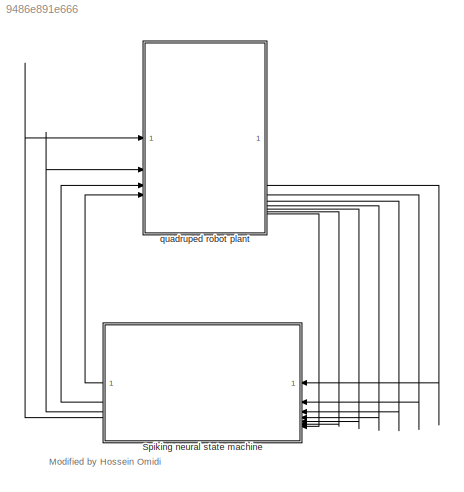
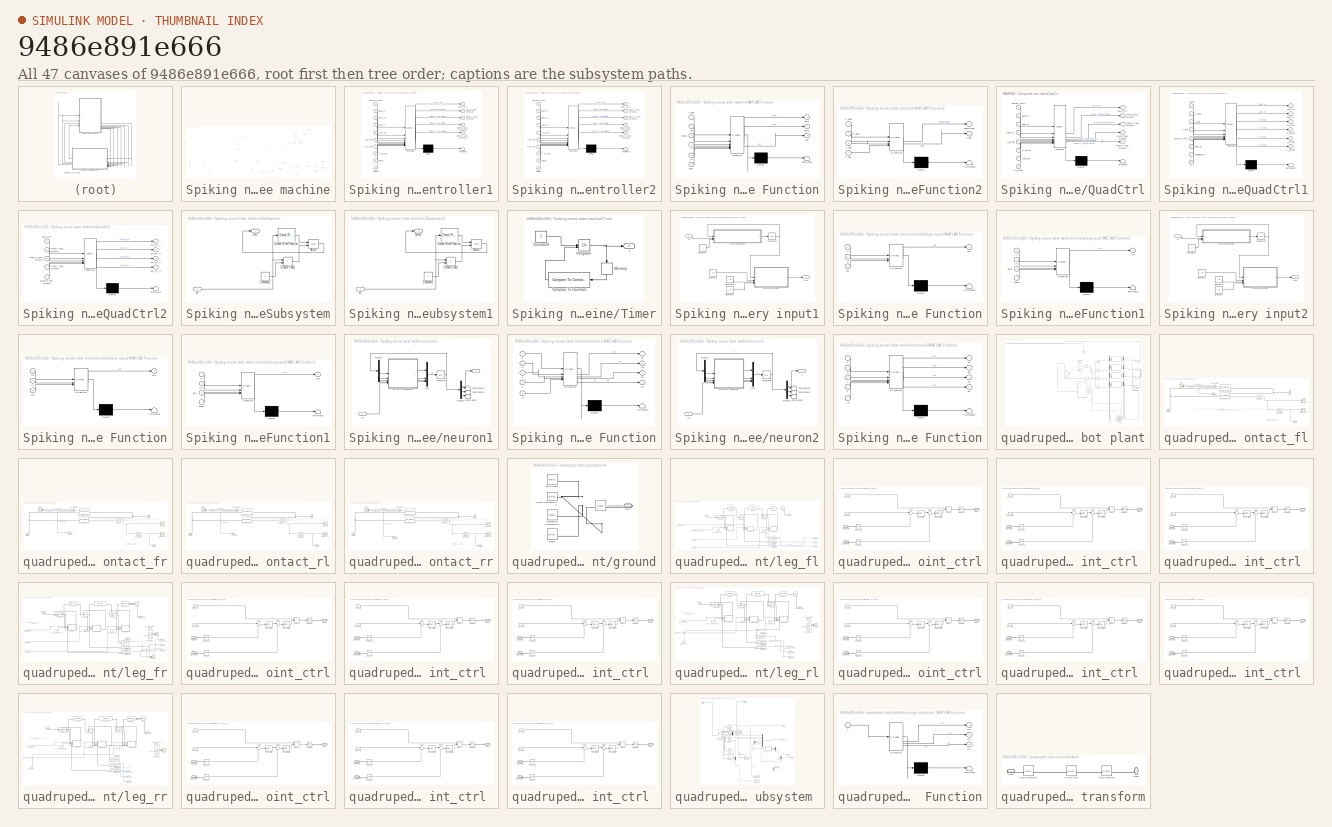
[diagram: thumbnail index - all 47 canvases of the model, root first then tree order]
MODEL slx_9486e891e666
KIND model
CONFIG AbsTol = auto
CONFIG EnableMultiTasking = off
CONFIG FixedStep = 0.0025
CONFIG MaxStep = auto
CONFIG MinStep = auto
CONFIG RelTol = 1e-3
CONFIG SampleTimeConstraint = Unconstrained
CONFIG SolverName = VariableStepAuto
CONFIG StartTime = 0.0
CONFIG StopTime = 15
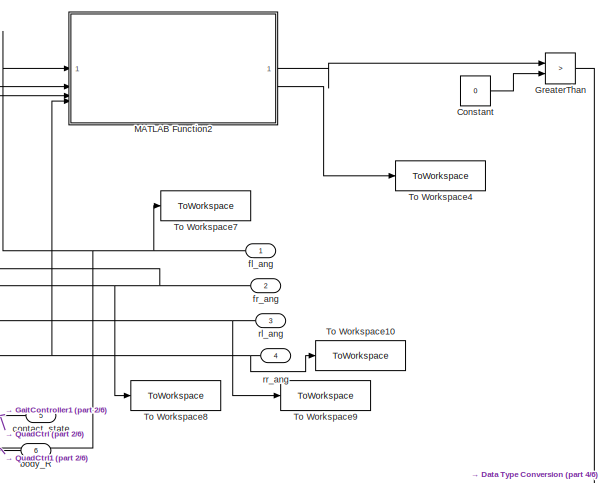
[diagram: Spiking neural state machine - part 1/6, top right region]
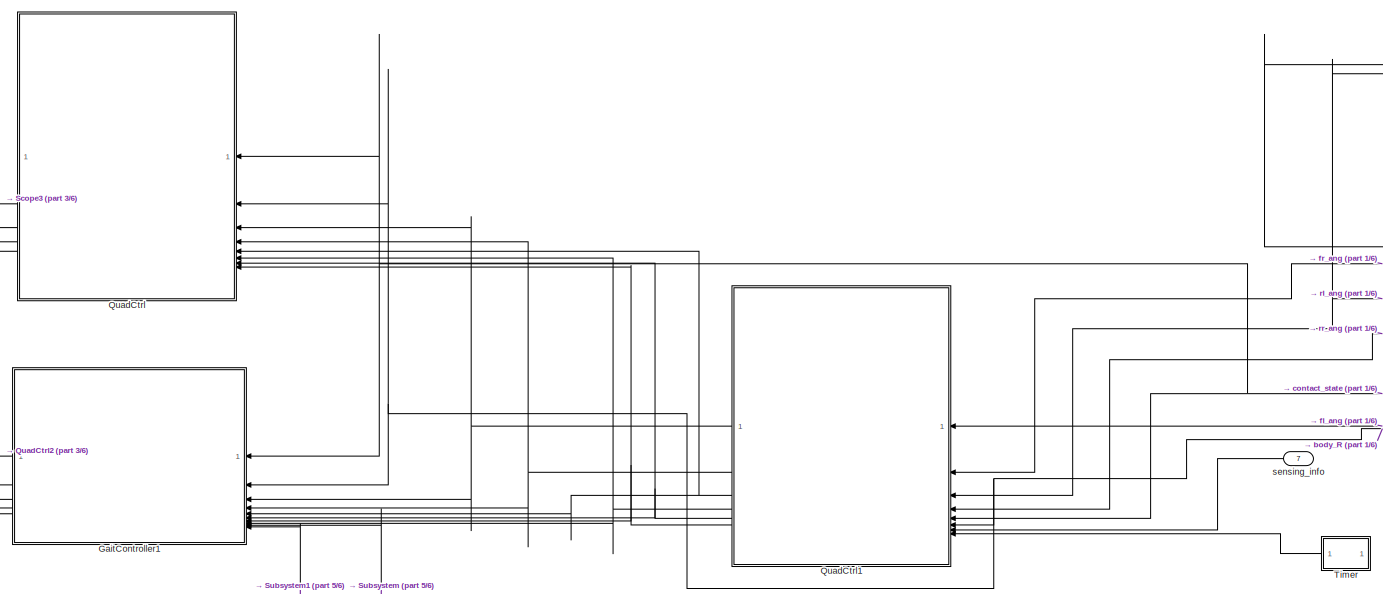
[diagram: Spiking neural state machine - part 2/6, top center region]
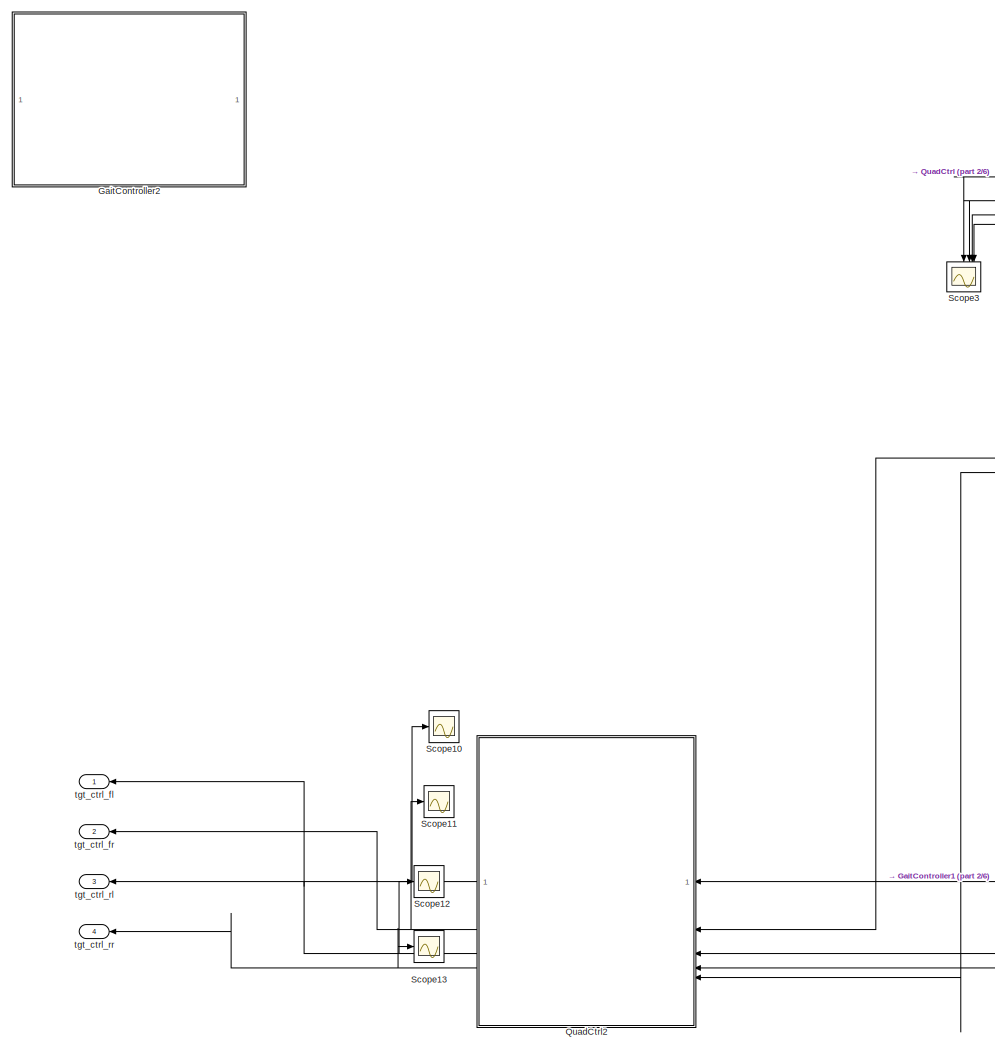
[diagram: Spiking neural state machine - part 3/6, left side, full height]
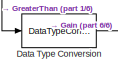
[diagram: Spiking neural state machine - part 4/6, bottom center region]
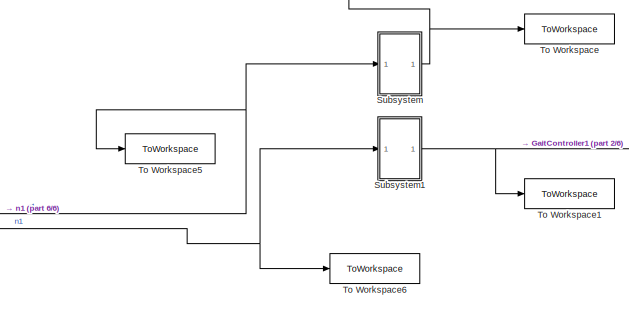
[diagram: Spiking neural state machine - part 5/6, bottom right region]
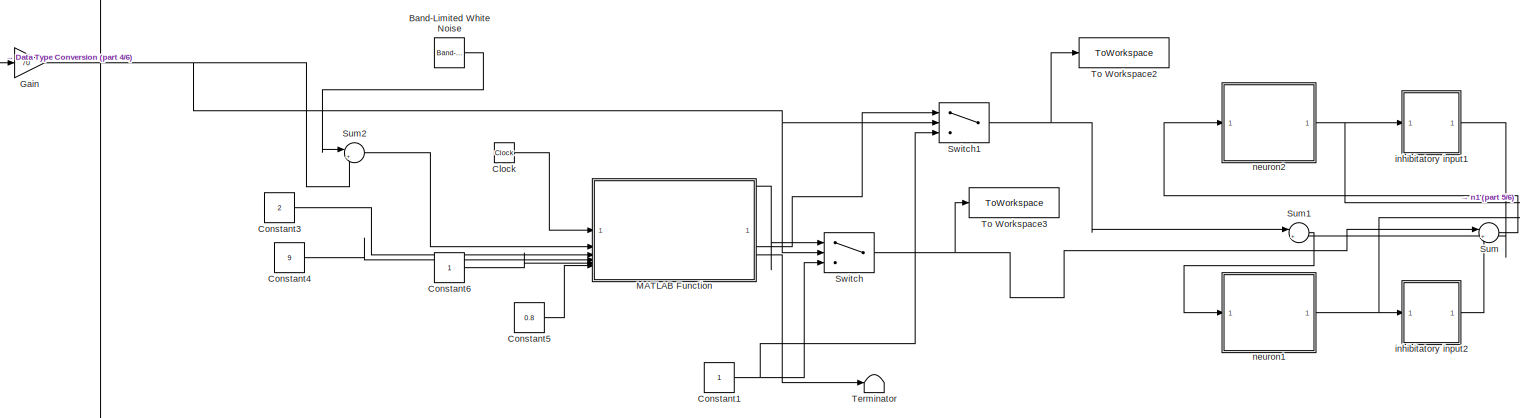
[diagram: Spiking neural state machine - part 6/6, bottom center region]
BLOCK [SubSystem] Spiking neural state machine
  NameLocation = top
BLOCK [Reference] Spiking neural state machine/Band-Limited White Noise  REF=simulink/Sources/Band-Limited
White Noise
  SourceBlock = simulink/Sources/Band-Limited\nWhite Noise
  SourceType = Band-Limited White Noise.
BLOCK [Clock] Spiking neural state machine/Clock
BLOCK [Constant] Spiking neural state machine/Constant
  Value = 0
BLOCK [Constant] Spiking neural state machine/Constant1
BLOCK [Constant] Spiking neural state machine/Constant3
  Value = 2
BLOCK [Constant] Spiking neural state machine/Constant4
  Value = 9
BLOCK [Constant] Spiking neural state machine/Constant5
  Value = 0.8
BLOCK [Constant] Spiking neural state machine/Constant6
BLOCK [DataTypeConversion] Spiking neural state machine/Data Type Conversion
  OutDataTypeStr = double
  RndMeth = Floor
  SaturateOnIntegerOverflow = off
BLOCK [Gain] Spiking neural state machine/Gain
  Gain = 70
BLOCK [SubSystem] Spiking neural state machine/GaitController1
  ErrorFcn = Stateflow.Translate.translate
  InitFcn = % tick timers\ntimer  = uint16(0);\ntimer2 = uint16(0);\n\n% shoulder offsets (body frame)\nfl_offset = [ body.shoulder_distance;  body.y_length/2 + body.shoulder_size/2; 0 ];\nfr_offset = [ body.shoulder_distance; -body.y_length/2 - body.shoulder_size/2; 0 ];\nrl_offset = [-body.shoulder_distance;  body.y_length/2 + body.shoulder_size/2; 0 ];\nrr_offset = [-body.shoulder_distance; -body.y_length/2 - body...<+370ch>
  NameLocation = top
  PermitHierarchicalResolution = ExplicitOnly
  SFBlockType = Chart
  TreatAsAtomicUnit = on
BLOCK [Demux] Spiking neural state machine/GaitController1/ Demux 
  Outputs = 1
BLOCK [S-Function] Spiking neural state machine/GaitController1/ SFunction 
  EnableBusSupport = on
  FunctionName = sf_sfun
  Parameters = body,planner
  PortCounts = [10 6]
  SFcnIsStateOwnerBlock = off
  SFunctionDeploymentMode = off
  Tag = Stateflow S-Function 7
BLOCK [Terminator] Spiking neural state machine/GaitController1/ Terminator 
BLOCK [Inport] Spiking neural state machine/GaitController1/body_R
  Port = 2
BLOCK [Inport] Spiking neural state machine/GaitController1/body_vx
  Port = 3
BLOCK [Inport] Spiking neural state machine/GaitController1/body_vy
  Port = 4
BLOCK [Inport] Spiking neural state machine/GaitController1/contact_state
BLOCK [Inport] Spiking neural state machine/GaitController1/fl_offset
  Port = 5
BLOCK [Inport] Spiking neural state machine/GaitController1/fr_offset
  Port = 8
BLOCK [Outport] Spiking neural state machine/GaitController1/has_u_ctrl
BLOCK [Outport] Spiking neural state machine/GaitController1/move_fl_end_effector
  Port = 2
BLOCK [Outport] Spiking neural state machine/GaitController1/move_fr_end_effector
  Port = 3
BLOCK [Outport] Spiking neural state machine/GaitController1/move_rl_end_effector
  Port = 4
BLOCK [Outport] Spiking neural state machine/GaitController1/move_rr_end_effector
  Port = 5
BLOCK [Inport] Spiking neural state machine/GaitController1/rl_offset
  Port = 6
BLOCK [Inport] Spiking neural state machine/GaitController1/rr_offset
  Port = 7
BLOCK [Inport] Spiking neural state machine/GaitController1/spike1
  Port = 9
BLOCK [Inport] Spiking neural state machine/GaitController1/spike2
  Port = 10
BLOCK [SubSystem] Spiking neural state machine/GaitController2
  Commented = on
  ErrorFcn = Stateflow.Translate.translate
  InitFcn = % tick timers\ntimer  = uint16(0);\ntimer2 = uint16(0);\n\n% shoulder offsets (body frame)\nfl_offset = [ body.shoulder_distance;  body.y_length/2 + body.shoulder_size/2; 0 ];\nfr_offset = [ body.shoulder_distance; -body.y_length/2 - body.shoulder_size/2; 0 ];\nrl_offset = [-body.shoulder_distance;  body.y_length/2 + body.shoulder_size/2; 0 ];\nrr_offset = [-body.shoulder_distance; -body.y_length/2 - body...<+370ch>
  NameLocation = top
  PermitHierarchicalResolution = ExplicitOnly
  SFBlockType = Chart
  TreatAsAtomicUnit = on
BLOCK [Demux] Spiking neural state machine/GaitController2/ Demux 
  Outputs = 1
BLOCK [S-Function] Spiking neural state machine/GaitController2/ SFunction 
  EnableBusSupport = on
  FunctionName = sf_sfun
  Parameters = body,planner
  PortCounts = [10 6]
  SFcnIsStateOwnerBlock = off
  SFunctionDeploymentMode = off
  Tag = Stateflow S-Function 13
BLOCK [Terminator] Spiking neural state machine/GaitController2/ Terminator 
BLOCK [Inport] Spiking neural state machine/GaitController2/body_R
  Port = 2
BLOCK [Inport] Spiking neural state machine/GaitController2/body_vx
  Port = 3
BLOCK [Inport] Spiking neural state machine/GaitController2/body_vy
  Port = 4
BLOCK [Inport] Spiking neural state machine/GaitController2/contact_state
BLOCK [Inport] Spiking neural state machine/GaitController2/fl_offset
  Port = 5
BLOCK [Inport] Spiking neural state machine/GaitController2/fr_offset
  Port = 8
BLOCK [Outport] Spiking neural state machine/GaitController2/has_u_ctrl
BLOCK [Outport] Spiking neural state machine/GaitController2/move_fl_end_effector
  Port = 2
BLOCK [Outport] Spiking neural state machine/GaitController2/move_fr_end_effector
  Port = 3
BLOCK [Outport] Spiking neural state machine/GaitController2/move_rl_end_effector
  Port = 4
BLOCK [Outport] Spiking neural state machine/GaitController2/move_rr_end_effector
  Port = 5
BLOCK [Inport] Spiking neural state machine/GaitController2/rl_offset
  Port = 6
BLOCK [Inport] Spiking neural state machine/GaitController2/rr_offset
  Port = 7
BLOCK [Inport] Spiking neural state machine/GaitController2/spike1
  Port = 9
BLOCK [Inport] Spiking neural state machine/GaitController2/spike2
  Port = 10
BLOCK [RelationalOperator] Spiking neural state machine/GreaterThan
  InputSameDT = off
  Operator = >
  OutDataTypeStr = boolean
  RndMeth = Simplest
BLOCK [SubSystem] Spiking neural state machine/MATLAB Function
  ErrorFcn = Stateflow.Translate.translate
  PermitHierarchicalResolution = ExplicitOnly
  SFBlockType = MATLAB Function
  TreatAsAtomicUnit = on
BLOCK [Demux] Spiking neural state machine/MATLAB Function/ Demux 
  Outputs = 1
BLOCK [S-Function] Spiking neural state machine/MATLAB Function/ SFunction 
  EnableBusSupport = on
  FunctionName = sf_sfun
  PortCounts = [6 4]
  SFcnIsStateOwnerBlock = off
  SFunctionDeploymentMode = off
  Tag = Stateflow S-Function 2
BLOCK [Terminator] Spiking neural state machine/MATLAB Function/ Terminator 
BLOCK [Inport] Spiking neural state machine/MATLAB Function/A
  Port = 4
BLOCK [Inport] Spiking neural state machine/MATLAB Function/I0
  Port = 5
BLOCK [Outport] Spiking neural state machine/MATLAB Function/Iext1
BLOCK [Outport] Spiking neural state machine/MATLAB Function/Iext2
  Port = 2
BLOCK [Inport] Spiking neural state machine/MATLAB Function/duty
  Port = 6
BLOCK [Inport] Spiking neural state machine/MATLAB Function/f_hz
  Port = 2
BLOCK [Inport] Spiking neural state machine/MATLAB Function/mode
  Port = 3
BLOCK [Outport] Spiking neural state machine/MATLAB Function/phi
  Port = 3
BLOCK [Inport] Spiking neural state machine/MATLAB Function/t_now
BLOCK [SubSystem] Spiking neural state machine/MATLAB Function2
  ErrorFcn = Stateflow.Translate.translate
  PermitHierarchicalResolution = ExplicitOnly
  SFBlockType = MATLAB Function
  TreatAsAtomicUnit = on
BLOCK [Demux] Spiking neural state machine/MATLAB Function2/ Demux 
  Outputs = 1
BLOCK [S-Function] Spiking neural state machine/MATLAB Function2/ SFunction 
  EnableBusSupport = on
  FunctionName = sf_sfun
  PortCounts = [4 3]
  SFcnIsStateOwnerBlock = off
  SFunctionDeploymentMode = off
  Tag = Stateflow S-Function 15
BLOCK [Terminator] Spiking neural state machine/MATLAB Function2/ Terminator 
BLOCK [Outport] Spiking neural state machine/MATLAB Function2/eventCode
BLOCK [Inport] Spiking neural state machine/MATLAB Function2/fl_ang
BLOCK [Outport] Spiking neural state machine/MATLAB Function2/flags
  Port = 2
BLOCK [Inport] Spiking neural state machine/MATLAB Function2/fr_ang
  Port = 2
BLOCK [Inport] Spiking neural state machine/MATLAB Function2/rl_ang
  Port = 3
BLOCK [Inport] Spiking neural state machine/MATLAB Function2/rr_ang
  Port = 4
BLOCK [SubSystem] Spiking neural state machine/QuadCtrl
  Commented = on
  ErrorFcn = Stateflow.Translate.translate
  NameLocation = top
  PermitHierarchicalResolution = ExplicitOnly
  SFBlockType = MATLAB Function
  SystemSampleTime = 0.0025
  TreatAsAtomicUnit = on
BLOCK [Demux] Spiking neural state machine/QuadCtrl/ Demux 
  Outputs = 1
BLOCK [S-Function] Spiking neural state machine/QuadCtrl/ SFunction 
  EnableBusSupport = on
  FunctionName = sf_sfun
  Parameters = body,planner
  PortCounts = [8 6]
  SFcnIsStateOwnerBlock = off
  SFunctionDeploymentMode = off
  Tag = Stateflow S-Function 6
BLOCK [Terminator] Spiking neural state machine/QuadCtrl/ Terminator 
BLOCK [Inport] Spiking neural state machine/QuadCtrl/body_R
  Port = 2
BLOCK [Inport] Spiking neural state machine/QuadCtrl/body_vx
  Port = 3
BLOCK [Inport] Spiking neural state machine/QuadCtrl/body_vy
  Port = 4
BLOCK [Inport] Spiking neural state machine/QuadCtrl/contact_state
BLOCK [Inport] Spiking neural state machine/QuadCtrl/fl_offset
  Port = 5
BLOCK [Inport] Spiking neural state machine/QuadCtrl/fr_offset
  Port = 6
BLOCK [Outport] Spiking neural state machine/QuadCtrl/has_u_ctrl
BLOCK [Outport] Spiking neural state machine/QuadCtrl/move_fl_end_effector
  Port = 2
  VectorParamsAs1DForOutWhenUnconnected = off
BLOCK [Outport] Spiking neural state machine/QuadCtrl/move_fr_end_effector
  Port = 3
  VectorParamsAs1DForOutWhenUnconnected = off
BLOCK [Outport] Spiking neural state machine/QuadCtrl/move_rl_end_effector
  Port = 4
  VectorParamsAs1DForOutWhenUnconnected = off
BLOCK [Outport] Spiking neural state machine/QuadCtrl/move_rr_end_effector
  Port = 5
  VectorParamsAs1DForOutWhenUnconnected = off
BLOCK [Inport] Spiking neural state machine/QuadCtrl/rl_offset
  Port = 7
BLOCK [Inport] Spiking neural state machine/QuadCtrl/rr_offset
  Port = 8
BLOCK [SubSystem] Spiking neural state machine/QuadCtrl1
  ErrorFcn = Stateflow.Translate.translate
  NameLocation = top
  PermitHierarchicalResolution = ExplicitOnly
  SFBlockType = MATLAB Function
  SystemSampleTime = 0.0025
  TreatAsAtomicUnit = on
BLOCK [Demux] Spiking neural state machine/QuadCtrl1/ Demux 
  Outputs = 1
BLOCK [S-Function] Spiking neural state machine/QuadCtrl1/ SFunction 
  EnableBusSupport = on
  FunctionName = sf_sfun
  Parameters = body,planner
  PortCounts = [8 7]
  SFcnIsStateOwnerBlock = off
  SFunctionDeploymentMode = off
  Tag = Stateflow S-Function 4
BLOCK [Terminator] Spiking neural state machine/QuadCtrl1/ Terminator 
BLOCK [Inport] Spiking neural state machine/QuadCtrl1/body_R
  Port = 6
BLOCK [Outport] Spiking neural state machine/QuadCtrl1/body_vx
  VectorParamsAs1DForOutWhenUnconnected = off
BLOCK [Outport] Spiking neural state machine/QuadCtrl1/body_vy
  Port = 2
  VectorParamsAs1DForOutWhenUnconnected = off
BLOCK [Inport] Spiking neural state machine/QuadCtrl1/contact_state
  Port = 5
BLOCK [Inport] Spiking neural state machine/QuadCtrl1/fl_ang
BLOCK [Outport] Spiking neural state machine/QuadCtrl1/fl_offset
  Port = 3
  VectorParamsAs1DForOutWhenUnconnected = off
BLOCK [Inport] Spiking neural state machine/QuadCtrl1/fr_ang
  Port = 2
BLOCK [Outport] Spiking neural state machine/QuadCtrl1/fr_offset
  Port = 4
  VectorParamsAs1DForOutWhenUnconnected = off
BLOCK [Inport] Spiking neural state machine/QuadCtrl1/rl_ang
  Port = 3
BLOCK [Outport] Spiking neural state machine/QuadCtrl1/rl_offset
  Port = 5
  VectorParamsAs1DForOutWhenUnconnected = off
BLOCK [Inport] Spiking neural state machine/QuadCtrl1/rr_ang
  Port = 4
BLOCK [Outport] Spiking neural state machine/QuadCtrl1/rr_offset
  Port = 6
  VectorParamsAs1DForOutWhenUnconnected = off
BLOCK [Inport] Spiking neural state machine/QuadCtrl1/sensing_info
  Port = 7
BLOCK [Inport] Spiking neural state machine/QuadCtrl1/t
  Port = 8
BLOCK [SubSystem] Spiking neural state machine/QuadCtrl2
  ErrorFcn = Stateflow.Translate.translate
  NameLocation = top
  PermitHierarchicalResolution = ExplicitOnly
  SFBlockType = MATLAB Function
  SystemSampleTime = 0.0025
  TreatAsAtomicUnit = on
BLOCK [Demux] Spiking neural state machine/QuadCtrl2/ Demux 
  Outputs = 1
BLOCK [S-Function] Spiking neural state machine/QuadCtrl2/ SFunction 
  EnableBusSupport = on
  FunctionName = sf_sfun
  Parameters = body
  PortCounts = [5 5]
  SFcnIsStateOwnerBlock = off
  SFunctionDeploymentMode = off
  Tag = Stateflow S-Function 5
BLOCK [Terminator] Spiking neural state machine/QuadCtrl2/ Terminator 
BLOCK [Inport] Spiking neural state machine/QuadCtrl2/has_u_ctrl
BLOCK [Inport] Spiking neural state machine/QuadCtrl2/move_fl_end_effector
  Port = 2
BLOCK [Inport] Spiking neural state machine/QuadCtrl2/move_fr_end_effector
  Port = 5
BLOCK [Inport] Spiking neural state machine/QuadCtrl2/move_rl_end_effector
  Port = 3
BLOCK [Inport] Spiking neural state machine/QuadCtrl2/move_rr_end_effector
  Port = 4
BLOCK [Outport] Spiking neural state machine/QuadCtrl2/tgt_ctrl_fl
BLOCK [Outport] Spiking neural state machine/QuadCtrl2/tgt_ctrl_fr
  Port = 2
  VectorParamsAs1DForOutWhenUnconnected = off
BLOCK [Outport] Spiking neural state machine/QuadCtrl2/tgt_ctrl_rl
  Port = 3
  VectorParamsAs1DForOutWhenUnconnected = off
BLOCK [Outport] Spiking neural state machine/QuadCtrl2/tgt_ctrl_rr
  Port = 4
  VectorParamsAs1DForOutWhenUnconnected = off
BLOCK [Scope] Spiking neural state machine/Scope10
  Floating = off
  NumInputPorts = 1
  ScopeSpecificationString = Simulink.scopes.TimeScopeBlockCfg('CurrentConfiguration', extmgr.ConfigurationSet(extmgr.Configuration('Core','General UI',true),extmgr.Configuration('Core','Source UI',true),extmgr.Configuration('Sources','WiredSimulink',true,'DataLoggingVariableName','ScopeData6'),extmgr.Configuration('Visuals','Time Domain',true,'SerializedDisplays',{struct('MinYLimReal','-2.05671','MaxYLimReal','1.51077','YLab...<+1460ch>
BLOCK [Scope] Spiking neural state machine/Scope11
  Floating = off
  NumInputPorts = 1
  ScopeSpecificationString = Simulink.scopes.TimeScopeBlockCfg('CurrentConfiguration', extmgr.ConfigurationSet(extmgr.Configuration('Core','General UI',true),extmgr.Configuration('Core','Source UI',true),extmgr.Configuration('Sources','WiredSimulink',true,'DataLoggingVariableName','ScopeData7'),extmgr.Configuration('Visuals','Time Domain',true),extmgr.Configuration('Tools','Plot Navigation',true),extmgr.Configuration('Tools',...<+40ch>
BLOCK [Scope] Spiking neural state machine/Scope12
  Floating = off
  NumInputPorts = 1
  ScopeSpecificationString = Simulink.scopes.TimeScopeBlockCfg('CurrentConfiguration', extmgr.ConfigurationSet(extmgr.Configuration('Core','General UI',true),extmgr.Configuration('Core','Source UI',true),extmgr.Configuration('Sources','WiredSimulink',true,'DataLoggingVariableName','ScopeData8'),extmgr.Configuration('Visuals','Time Domain',true),extmgr.Configuration('Tools','Plot Navigation',true),extmgr.Configuration('Tools',...<+40ch>
BLOCK [Scope] Spiking neural state machine/Scope13
  Floating = off
  NumInputPorts = 1
  ScopeSpecificationString = Simulink.scopes.TimeScopeBlockCfg('CurrentConfiguration', extmgr.ConfigurationSet(extmgr.Configuration('Core','General UI',true),extmgr.Configuration('Core','Source UI',true),extmgr.Configuration('Sources','WiredSimulink',true,'DataLoggingVariableName','ScopeData9'),extmgr.Configuration('Visuals','Time Domain',true),extmgr.Configuration('Tools','Plot Navigation',true),extmgr.Configuration('Tools',...<+40ch>
BLOCK [Scope] Spiking neural state machine/Scope3
  Commented = on
  Floating = off
  NameLocation = left
  NumInputPorts = 4
  ScopeSpecificationString = Simulink.scopes.TimeScopeBlockCfg('CurrentConfiguration', extmgr.ConfigurationSet(extmgr.Configuration('Core','General UI',true),extmgr.Configuration('Core','Source UI',true),extmgr.Configuration('Sources','WiredSimulink',true,'DataLoggingVariableName','ScopeData1'),extmgr.Configuration('Visuals','Time Domain',true,'SerializedDisplays',{struct('MinYLimReal','-0.43131','MaxYLimReal','0.15967','YLab...<+1840ch>
BLOCK [SubSystem] Spiking neural state machine/Subsystem
BLOCK [Logic] Spiking neural state machine/Subsystem/AND
  AllPortsSameDT = off
  IconShape = distinctive
  OutDataTypeStr = boolean
BLOCK [Constant] Spiking neural state machine/Subsystem/Constant2
BLOCK [Reference] Spiking neural state machine/Subsystem/Detect Rise Positive  REF=simulink/Logic and Bit
Operations/Detect Rise
Positive
  SourceBlock = simulink/Logic and Bit\nOperations/Detect Rise\nPositive
  SourceType = Detect Rise Positive
BLOCK [RelationalOperator] Spiking neural state machine/Subsystem/GreaterThan1
  InputSameDT = off
  Operator = >
  OutDataTypeStr = boolean
  RndMeth = Simplest
BLOCK [Outport] Spiking neural state machine/Subsystem/Out1
BLOCK [Inport] Spiking neural state machine/Subsystem/n1
BLOCK [SubSystem] Spiking neural state machine/Subsystem1
BLOCK [Logic] Spiking neural state machine/Subsystem1/AND
  AllPortsSameDT = off
  IconShape = distinctive
  OutDataTypeStr = boolean
BLOCK [Constant] Spiking neural state machine/Subsystem1/Constant2
BLOCK [Reference] Spiking neural state machine/Subsystem1/Detect Rise Positive  REF=simulink/Logic and Bit
Operations/Detect Rise
Positive
  SourceBlock = simulink/Logic and Bit\nOperations/Detect Rise\nPositive
  SourceType = Detect Rise Positive
BLOCK [RelationalOperator] Spiking neural state machine/Subsystem1/GreaterThan1
  InputSameDT = off
  Operator = >
  OutDataTypeStr = boolean
  RndMeth = Simplest
BLOCK [Inport] Spiking neural state machine/Subsystem1/n1
BLOCK [Outport] Spiking neural state machine/Subsystem1/spike2
BLOCK [Sum] Spiking neural state machine/Sum
  Inputs = |++
BLOCK [Sum] Spiking neural state machine/Sum1
  Inputs = |++
BLOCK [Sum] Spiking neural state machine/Sum2
  Inputs = |++
BLOCK [Switch] Spiking neural state machine/Switch
  Criteria = u2 > Threshold
  InputSameDT = off
  SaturateOnIntegerOverflow = off
BLOCK [Switch] Spiking neural state machine/Switch1
  Criteria = u2 > Threshold
  InputSameDT = off
  SaturateOnIntegerOverflow = off
BLOCK [Terminator] Spiking neural state machine/Terminator
BLOCK [SubSystem] Spiking neural state machine/Timer
  NameLocation = top
BLOCK [Reference] Spiking neural state machine/Timer/Compare To Constant  REF=simulink/Logic and Bit
Operations/Compare
To Constant
  NameLocation = top
  SourceBlock = simulink/Logic and Bit\nOperations/Compare\nTo Constant
  SourceType = Compare To Constant
BLOCK [Constant] Spiking neural state machine/Timer/Constant4
BLOCK [Integrator] Spiking neural state machine/Timer/Integrator
  ExternalReset = level
BLOCK [Memory] Spiking neural state machine/Timer/Memory
  NameLocation = left
BLOCK [Outport] Spiking neural state machine/Timer/t
  VectorParamsAs1DForOutWhenUnconnected = off
BLOCK [ToWorkspace] Spiking neural state machine/To Workspace
  FixptAsFi = on
  MaxDataPoints = inf
  SampleTime = -1
  SaveFormat = Timeseries
  VariableName = spike1
BLOCK [ToWorkspace] Spiking neural state machine/To Workspace1
  FixptAsFi = on
  MaxDataPoints = inf
  SampleTime = -1
  SaveFormat = Timeseries
  VariableName = spike2
BLOCK [ToWorkspace] Spiking neural state machine/To Workspace10
  FixptAsFi = on
  MaxDataPoints = inf
  SampleTime = -1
  SaveFormat = Timeseries
  VariableName = rr_joint_ang
BLOCK [ToWorkspace] Spiking neural state machine/To Workspace2
  FixptAsFi = on
  MaxDataPoints = inf
  SampleTime = -1
  SaveFormat = Timeseries
  VariableName = Iext2
BLOCK [ToWorkspace] Spiking neural state machine/To Workspace3
  FixptAsFi = on
  MaxDataPoints = inf
  SampleTime = -1
  SaveFormat = Timeseries
  VariableName = Iext1
BLOCK [ToWorkspace] Spiking neural state machine/To Workspace4
  FixptAsFi = on
  MaxDataPoints = inf
  SampleTime = -1
  SaveFormat = Timeseries
  VariableName = event_flag
BLOCK [ToWorkspace] Spiking neural state machine/To Workspace5
  FixptAsFi = on
  MaxDataPoints = inf
  SampleTime = -1
  SaveFormat = Timeseries
  VariableName = membrane1
BLOCK [ToWorkspace] Spiking neural state machine/To Workspace6
  FixptAsFi = on
  MaxDataPoints = inf
  SampleTime = -1
  SaveFormat = Timeseries
  VariableName = membrane2
BLOCK [ToWorkspace] Spiking neural state machine/To Workspace7
  FixptAsFi = on
  MaxDataPoints = inf
  SampleTime = -1
  SaveFormat = Timeseries
  VariableName = fl_joint_ang
BLOCK [ToWorkspace] Spiking neural state machine/To Workspace8
  FixptAsFi = on
  MaxDataPoints = inf
  SampleTime = -1
  SaveFormat = Timeseries
  VariableName = fr_joint_ang
BLOCK [ToWorkspace] Spiking neural state machine/To Workspace9
  FixptAsFi = on
  MaxDataPoints = inf
  SampleTime = -1
  SaveFormat = Timeseries
  VariableName = rl_joint_ang
BLOCK [Inport] Spiking neural state machine/body_R
  NameLocation = top
  Port = 6
BLOCK [Inport] Spiking neural state machine/contact_state
  NameLocation = top
  Port = 5
BLOCK [Inport] Spiking neural state machine/fl_ang
  NameLocation = top
BLOCK [Inport] Spiking neural state machine/fr_ang
  NameLocation = top
  Port = 2
BLOCK [SubSystem] Spiking neural state machine/inhibitatory input1
BLOCK [Constant] Spiking neural state machine/inhibitatory input1/Constant1
BLOCK [Constant] Spiking neural state machine/inhibitatory input1/Constant2
  Value = -65
BLOCK [Constant] Spiking neural state machine/inhibitatory input1/Constant3
  Value = -10
BLOCK [Constant] Spiking neural state machine/inhibitatory input1/Constant4
  Value = 1.5
BLOCK [Integrator] Spiking neural state machine/inhibitatory input1/Integrator
BLOCK [Outport] Spiking neural state machine/inhibitatory input1/Isyn
BLOCK [SubSystem] Spiking neural state machine/inhibitatory input1/MATLAB Function
  ErrorFcn = Stateflow.Translate.translate
  LibrarySourceBlock = simulink/User-Defined\nFunctions/MATLAB Function
  PermitHierarchicalResolution = ExplicitOnly
  SFBlockType = MATLAB Function
  TreatAsAtomicUnit = on
BLOCK [Demux] Spiking neural state machine/inhibitatory input1/MATLAB Function/ Demux 
  Outputs = 1
BLOCK [S-Function] Spiking neural state machine/inhibitatory input1/MATLAB Function/ SFunction 
  EnableBusSupport = on
  FunctionName = sf_sfun
  PortCounts = [3 2]
  SFcnIsStateOwnerBlock = off
  SFunctionDeploymentMode = off
  Tag = Stateflow S-Function 3
BLOCK [Terminator] Spiking neural state machine/inhibitatory input1/MATLAB Function/ Terminator 
BLOCK [Inport] Spiking neural state machine/inhibitatory input1/MATLAB Function/Vf
BLOCK [Inport] Spiking neural state machine/inhibitatory input1/MATLAB Function/Vi
  Port = 2
BLOCK [Outport] Spiking neural state machine/inhibitatory input1/MATLAB Function/dVf
BLOCK [Inport] Spiking neural state machine/inhibitatory input1/MATLAB Function/tau
  Port = 3
BLOCK [SubSystem] Spiking neural state machine/inhibitatory input1/MATLAB Function1
  ErrorFcn = Stateflow.Translate.translate
  LibrarySourceBlock = simulink/User-Defined\nFunctions/MATLAB Function
  PermitHierarchicalResolution = ExplicitOnly
  SFBlockType = MATLAB Function
  TreatAsAtomicUnit = on
BLOCK [Demux] Spiking neural state machine/inhibitatory input1/MATLAB Function1/ Demux 
  Outputs = 1
BLOCK [S-Function] Spiking neural state machine/inhibitatory input1/MATLAB Function1/ SFunction 
  EnableBusSupport = on
  FunctionName = sf_sfun
  PortCounts = [4 2]
  SFcnIsStateOwnerBlock = off
  SFunctionDeploymentMode = off
  Tag = Stateflow S-Function 9
BLOCK [Terminator] Spiking neural state machine/inhibitatory input1/MATLAB Function1/ Terminator 
BLOCK [Outport] Spiking neural state machine/inhibitatory input1/MATLAB Function1/Isyn
BLOCK [Inport] Spiking neural state machine/inhibitatory input1/MATLAB Function1/Vf
BLOCK [Inport] Spiking neural state machine/inhibitatory input1/MATLAB Function1/Vth
  Port = 2
BLOCK [Inport] Spiking neural state machine/inhibitatory input1/MATLAB Function1/alpha
  Port = 4
BLOCK [Inport] Spiking neural state machine/inhibitatory input1/MATLAB Function1/gsyn
  Port = 3
BLOCK [Inport] Spiking neural state machine/inhibitatory input1/Vi
BLOCK [SubSystem] Spiking neural state machine/inhibitatory input2
BLOCK [Constant] Spiking neural state machine/inhibitatory input2/Constant1
BLOCK [Constant] Spiking neural state machine/inhibitatory input2/Constant2
  Value = -65
BLOCK [Constant] Spiking neural state machine/inhibitatory input2/Constant3
  Value = -10
BLOCK [Constant] Spiking neural state machine/inhibitatory input2/Constant4
  Value = 1.5
BLOCK [Integrator] Spiking neural state machine/inhibitatory input2/Integrator
BLOCK [Outport] Spiking neural state machine/inhibitatory input2/Isyn
BLOCK [SubSystem] Spiking neural state machine/inhibitatory input2/MATLAB Function
  ErrorFcn = Stateflow.Translate.translate
  LibrarySourceBlock = simulink/User-Defined\nFunctions/MATLAB Function
  PermitHierarchicalResolution = ExplicitOnly
  SFBlockType = MATLAB Function
  TreatAsAtomicUnit = on
BLOCK [Demux] Spiking neural state machine/inhibitatory input2/MATLAB Function/ Demux 
  Outputs = 1
BLOCK [S-Function] Spiking neural state machine/inhibitatory input2/MATLAB Function/ SFunction 
  EnableBusSupport = on
  FunctionName = sf_sfun
  PortCounts = [3 2]
  SFcnIsStateOwnerBlock = off
  SFunctionDeploymentMode = off
  Tag = Stateflow S-Function 10
BLOCK [Terminator] Spiking neural state machine/inhibitatory input2/MATLAB Function/ Terminator 
BLOCK [Inport] Spiking neural state machine/inhibitatory input2/MATLAB Function/Vf
BLOCK [Inport] Spiking neural state machine/inhibitatory input2/MATLAB Function/Vi
  Port = 2
BLOCK [Outport] Spiking neural state machine/inhibitatory input2/MATLAB Function/dVf
BLOCK [Inport] Spiking neural state machine/inhibitatory input2/MATLAB Function/tau
  Port = 3
BLOCK [SubSystem] Spiking neural state machine/inhibitatory input2/MATLAB Function1
  ErrorFcn = Stateflow.Translate.translate
  LibrarySourceBlock = simulink/User-Defined\nFunctions/MATLAB Function
  PermitHierarchicalResolution = ExplicitOnly
  SFBlockType = MATLAB Function
  TreatAsAtomicUnit = on
BLOCK [Demux] Spiking neural state machine/inhibitatory input2/MATLAB Function1/ Demux 
  Outputs = 1
BLOCK [S-Function] Spiking neural state machine/inhibitatory input2/MATLAB Function1/ SFunction 
  EnableBusSupport = on
  FunctionName = sf_sfun
  PortCounts = [4 2]
  SFcnIsStateOwnerBlock = off
  SFunctionDeploymentMode = off
  Tag = Stateflow S-Function 11
BLOCK [Terminator] Spiking neural state machine/inhibitatory input2/MATLAB Function1/ Terminator 
BLOCK [Outport] Spiking neural state machine/inhibitatory input2/MATLAB Function1/Isyn
BLOCK [Inport] Spiking neural state machine/inhibitatory input2/MATLAB Function1/Vf
BLOCK [Inport] Spiking neural state machine/inhibitatory input2/MATLAB Function1/Vth
  Port = 2
BLOCK [Inport] Spiking neural state machine/inhibitatory input2/MATLAB Function1/alpha
  Port = 4
BLOCK [Inport] Spiking neural state machine/inhibitatory input2/MATLAB Function1/gsyn
  Port = 3
BLOCK [Inport] Spiking neural state machine/inhibitatory input2/Vi
BLOCK [SubSystem] Spiking neural state machine/neuron1
BLOCK [Demux] Spiking neural state machine/neuron1/Demux
BLOCK [Demux] Spiking neural state machine/neuron1/Demux1
BLOCK [Inport] Spiking neural state machine/neuron1/I_e
BLOCK [Integrator] Spiking neural state machine/neuron1/Integrator
  InitialCondition = [-65; 0.05; 0.60; 0.32]
BLOCK [SubSystem] Spiking neural state machine/neuron1/MATLAB Function
  ErrorFcn = Stateflow.Translate.translate
  LibrarySourceBlock = simulink/User-Defined\nFunctions/MATLAB Function
  PermitHierarchicalResolution = ExplicitOnly
  SFBlockType = MATLAB Function
  TreatAsAtomicUnit = on
BLOCK [Demux] Spiking neural state machine/neuron1/MATLAB Function/ Demux 
  Outputs = 1
BLOCK [S-Function] Spiking neural state machine/neuron1/MATLAB Function/ SFunction 
  EnableBusSupport = on
  FunctionName = sf_sfun
  PortCounts = [5 5]
  SFcnIsStateOwnerBlock = off
  SFunctionDeploymentMode = off
  Tag = Stateflow S-Function 14
BLOCK [Terminator] Spiking neural state machine/neuron1/MATLAB Function/ Terminator 
BLOCK [Inport] Spiking neural state machine/neuron1/MATLAB Function/I_e
  Port = 5
BLOCK [Outport] Spiking neural state machine/neuron1/MATLAB Function/dh
  Port = 3
BLOCK [Outport] Spiking neural state machine/neuron1/MATLAB Function/dm
  Port = 2
BLOCK [Outport] Spiking neural state machine/neuron1/MATLAB Function/dn
  Port = 4
BLOCK [Outport] Spiking neural state machine/neuron1/MATLAB Function/dv
BLOCK [Inport] Spiking neural state machine/neuron1/MATLAB Function/h
  Port = 3
BLOCK [Inport] Spiking neural state machine/neuron1/MATLAB Function/m
  Port = 2
BLOCK [Inport] Spiking neural state machine/neuron1/MATLAB Function/n
  Port = 4
BLOCK [Inport] Spiking neural state machine/neuron1/MATLAB Function/v
BLOCK [Mux] Spiking neural state machine/neuron1/Mux
  DisplayOption = bar
BLOCK [Terminator] Spiking neural state machine/neuron1/Terminator
BLOCK [Terminator] Spiking neural state machine/neuron1/Terminator1
BLOCK [Terminator] Spiking neural state machine/neuron1/Terminator2
BLOCK [Outport] Spiking neural state machine/neuron1/y
BLOCK [SubSystem] Spiking neural state machine/neuron2
BLOCK [Demux] Spiking neural state machine/neuron2/Demux
BLOCK [Demux] Spiking neural state machine/neuron2/Demux1
BLOCK [Inport] Spiking neural state machine/neuron2/I_e
BLOCK [Integrator] Spiking neural state machine/neuron2/Integrator
  InitialCondition = [-65; 0.05; 0.60; 0.32]
BLOCK [SubSystem] Spiking neural state machine/neuron2/MATLAB Function
  ErrorFcn = Stateflow.Translate.translate
  LibrarySourceBlock = simulink/User-Defined\nFunctions/MATLAB Function
  PermitHierarchicalResolution = ExplicitOnly
  SFBlockType = MATLAB Function
  TreatAsAtomicUnit = on
BLOCK [Demux] Spiking neural state machine/neuron2/MATLAB Function/ Demux 
  Outputs = 1
BLOCK [S-Function] Spiking neural state machine/neuron2/MATLAB Function/ SFunction 
  EnableBusSupport = on
  FunctionName = sf_sfun
  PortCounts = [5 5]
  SFcnIsStateOwnerBlock = off
  SFunctionDeploymentMode = off
  Tag = Stateflow S-Function 16
BLOCK [Terminator] Spiking neural state machine/neuron2/MATLAB Function/ Terminator 
BLOCK [Inport] Spiking neural state machine/neuron2/MATLAB Function/I_e
  Port = 5
BLOCK [Outport] Spiking neural state machine/neuron2/MATLAB Function/dh
  Port = 3
BLOCK [Outport] Spiking neural state machine/neuron2/MATLAB Function/dm
  Port = 2
BLOCK [Outport] Spiking neural state machine/neuron2/MATLAB Function/dn
  Port = 4
BLOCK [Outport] Spiking neural state machine/neuron2/MATLAB Function/dv
BLOCK [Inport] Spiking neural state machine/neuron2/MATLAB Function/h
  Port = 3
BLOCK [Inport] Spiking neural state machine/neuron2/MATLAB Function/m
  Port = 2
BLOCK [Inport] Spiking neural state machine/neuron2/MATLAB Function/n
  Port = 4
BLOCK [Inport] Spiking neural state machine/neuron2/MATLAB Function/v
BLOCK [Mux] Spiking neural state machine/neuron2/Mux
  DisplayOption = bar
BLOCK [Terminator] Spiking neural state machine/neuron2/Terminator
BLOCK [Terminator] Spiking neural state machine/neuron2/Terminator1
BLOCK [Terminator] Spiking neural state machine/neuron2/Terminator2
BLOCK [Outport] Spiking neural state machine/neuron2/y
BLOCK [Inport] Spiking neural state machine/rl_ang
  NameLocation = top
  Port = 3
BLOCK [Inport] Spiking neural state machine/rr_ang
  NameLocation = top
  Port = 4
BLOCK [Inport] Spiking neural state machine/sensing_info
  NameLocation = top
  Port = 7
BLOCK [Outport] Spiking neural state machine/tgt_ctrl_fl
  NameLocation = top
  VectorParamsAs1DForOutWhenUnconnected = off
BLOCK [Outport] Spiking neural state machine/tgt_ctrl_fr
  NameLocation = top
  Port = 2
  VectorParamsAs1DForOutWhenUnconnected = off
BLOCK [Outport] Spiking neural state machine/tgt_ctrl_rl
  NameLocation = top
  Port = 3
  VectorParamsAs1DForOutWhenUnconnected = off
BLOCK [Outport] Spiking neural state machine/tgt_ctrl_rr
  NameLocation = top
  Port = 4
  VectorParamsAs1DForOutWhenUnconnected = off
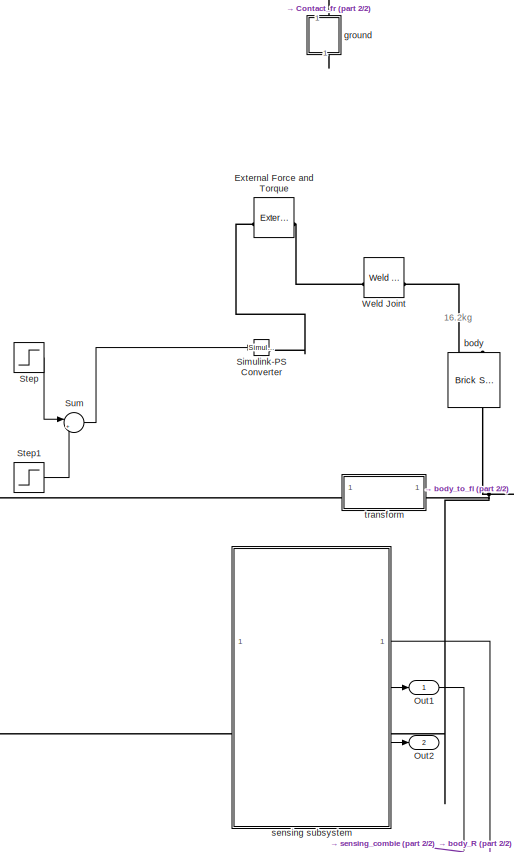
[diagram: quadruped robot plant - part 1/2, central region]
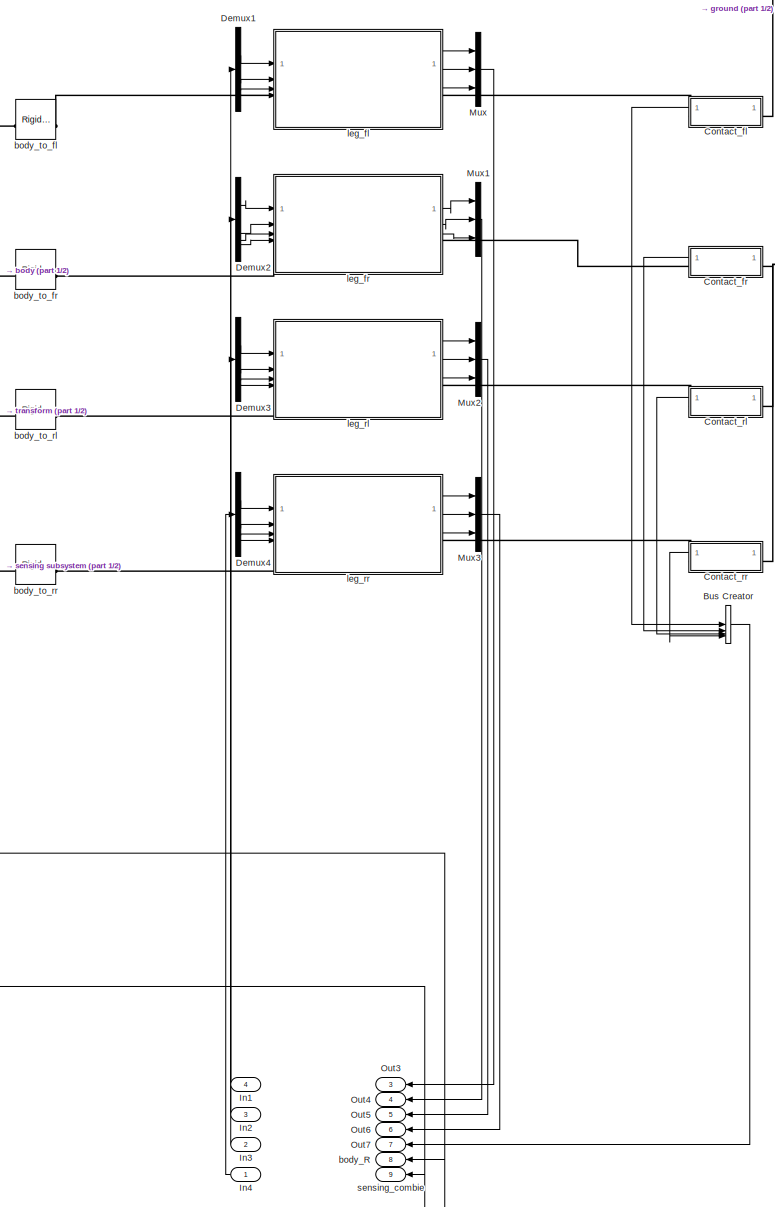
[diagram: quadruped robot plant - part 2/2, right side, full height]
BLOCK [SubSystem] quadruped robot plant
BLOCK [BusCreator] quadruped robot plant/Bus Creator
  DisplayOption = bar
  InheritFromInputs = on
  Inputs = 4
BLOCK [SubSystem] quadruped robot plant/Contact_fl
  NameLocation = top
BLOCK [BusSelector] quadruped robot plant/Contact_fl/Bus Selector
  NameLocation = top
  OutputSignals = Normal Force,Frame Sep,Friction Force
BLOCK [Reference] quadruped robot plant/Contact_fl/Compare To Constant  REF=simulink/Logic and Bit
Operations/Compare
To Constant
  SourceBlock = simulink/Logic and Bit\nOperations/Compare\nTo Constant
  SourceType = Compare To Constant
BLOCK [Reference] quadruped robot plant/Contact_fl/PSConv4  REF=nesl_utility/PS-Simulink
Converter
  SourceBlock = nesl_utility/PS-Simulink\nConverter
  SourceType = PS-Simulink\nConverter
BLOCK [PMIOPort] quadruped robot plant/Contact_fl/PlanB
  NameLocation = right
  Side = Left
BLOCK [PMIOPort] quadruped robot plant/Contact_fl/SphF
  NameLocation = top
  Port = 2
  Side = Right
BLOCK [Reference] quadruped robot plant/Contact_fl/Sphere to Plane Force1  REF=Contact_Forces_Lib/3D/Sphere to Plane Force
  NameLocation = top
  SourceBlock = Contact_Forces_Lib/3D/Sphere to Plane Force
  SourceType = Sphere to Plane Force
BLOCK [Scope] quadruped robot plant/Contact_fl/State Scope
  Floating = off
  NumInputPorts = 1
  ScopeSpecificationString = Simulink.scopes.TimeScopeBlockCfg('CurrentConfiguration', extmgr.ConfigurationSet(extmgr.Configuration('Core','General UI',true),extmgr.Configuration('Core','Source UI',true),extmgr.Configuration('Sources','WiredSimulink',true,'DataLoggingVariableName','ScopeData2'),extmgr.Configuration('Visuals','Time Domain',true,'SerializedDisplays',{struct('MinYLimReal','-0.125','MaxYLimReal','1.125','YLabelRe...<+1738ch>
BLOCK [Terminator] quadruped robot plant/Contact_fl/Terminator
BLOCK [Reference] quadruped robot plant/Contact_fl/Transform Sensor  REF=sm_lib/Frames and
Transforms/Transform
Sensor
  SourceBlock = sm_lib/Frames and\nTransforms/Transform\nSensor
  SourceType = Transform\nSensor
BLOCK [Scope] quadruped robot plant/Contact_fl/ZScope
  Floating = off
  NumInputPorts = 1
  ScopeSpecificationString = Simulink.scopes.TimeScopeBlockCfg('CurrentConfiguration', extmgr.ConfigurationSet(extmgr.Configuration('Core','General UI',true),extmgr.Configuration('Core','Source UI',true),extmgr.Configuration('Sources','WiredSimulink',true,'DataLoggingVariableName','ScopeData1'),extmgr.Configuration('Visuals','Time Domain',true,'SerializedDisplays',{struct('MinYLimReal','0.21142','MaxYLimReal','0.26619','YLabe...<+1738ch>
BLOCK [Scope] quadruped robot plant/Contact_fl/force
  Floating = off
  NameLocation = top
  NumInputPorts = 2
  ScopeSpecificationString = Simulink.scopes.TimeScopeBlockCfg('CurrentConfiguration', extmgr.ConfigurationSet(extmgr.Configuration('Core','General UI',true),extmgr.Configuration('Core','Source UI',true),extmgr.Configuration('Sources','WiredSimulink',true),extmgr.Configuration('Visuals','Time Domain',true,'SerializedDisplays',{struct('MinYLimReal','-483.20806','MaxYLimReal','1131.7449','YLabelReal','','MinYLimMag',' 0.00000',...<+2099ch>
BLOCK [Outport] quadruped robot plant/Contact_fl/state
  VectorParamsAs1DForOutWhenUnconnected = off
BLOCK [SubSystem] quadruped robot plant/Contact_fr
  NameLocation = top
BLOCK [BusSelector] quadruped robot plant/Contact_fr/Bus Selector
  NameLocation = top
  OutputSignals = Normal Force,Frame Sep,Friction Force
BLOCK [Reference] quadruped robot plant/Contact_fr/Compare To Constant  REF=simulink/Logic and Bit
Operations/Compare
To Constant
  SourceBlock = simulink/Logic and Bit\nOperations/Compare\nTo Constant
  SourceType = Compare To Constant
BLOCK [Reference] quadruped robot plant/Contact_fr/PSConv4  REF=nesl_utility/PS-Simulink
Converter
  SourceBlock = nesl_utility/PS-Simulink\nConverter
  SourceType = PS-Simulink\nConverter
BLOCK [PMIOPort] quadruped robot plant/Contact_fr/PlanB
  NameLocation = right
  Side = Left
BLOCK [PMIOPort] quadruped robot plant/Contact_fr/SphF
  NameLocation = top
  Port = 2
  Side = Right
BLOCK [Reference] quadruped robot plant/Contact_fr/Sphere to Plane Force1  REF=Contact_Forces_Lib/3D/Sphere to Plane Force
  NameLocation = top
  SourceBlock = Contact_Forces_Lib/3D/Sphere to Plane Force
  SourceType = Sphere to Plane Force
BLOCK [Scope] quadruped robot plant/Contact_fr/State Scope
  Floating = off
  NumInputPorts = 1
  ScopeSpecificationString = Simulink.scopes.TimeScopeBlockCfg('CurrentConfiguration', extmgr.ConfigurationSet(extmgr.Configuration('Core','General UI',true),extmgr.Configuration('Core','Source UI',true),extmgr.Configuration('Sources','WiredSimulink',true,'DataLoggingVariableName','ScopeData2'),extmgr.Configuration('Visuals','Time Domain',true,'SerializedDisplays',{struct('MinYLimReal','3.40363','MaxYLimReal','4.10196','YLabe...<+1745ch>
BLOCK [Terminator] quadruped robot plant/Contact_fr/Terminator
BLOCK [Reference] quadruped robot plant/Contact_fr/Transform Sensor  REF=sm_lib/Frames and
Transforms/Transform
Sensor
  SourceBlock = sm_lib/Frames and\nTransforms/Transform\nSensor
  SourceType = Transform\nSensor
BLOCK [Scope] quadruped robot plant/Contact_fr/ZScope
  Floating = off
  NumInputPorts = 1
  ScopeSpecificationString = Simulink.scopes.TimeScopeBlockCfg('CurrentConfiguration', extmgr.ConfigurationSet(extmgr.Configuration('Core','General UI',true),extmgr.Configuration('Core','Source UI',true),extmgr.Configuration('Sources','WiredSimulink',true,'DataLoggingVariableName','ScopeData1'),extmgr.Configuration('Visuals','Time Domain',true,'SerializedDisplays',{struct('MinYLimReal','-0.07993','MaxYLimReal','0.50888','YLab...<+1755ch>
BLOCK [Scope] quadruped robot plant/Contact_fr/force
  Floating = off
  NameLocation = top
  NumInputPorts = 2
  ScopeSpecificationString = Simulink.scopes.TimeScopeBlockCfg('CurrentConfiguration', extmgr.ConfigurationSet(extmgr.Configuration('Core','General UI',true),extmgr.Configuration('Core','Source UI',true),extmgr.Configuration('Sources','WiredSimulink',true),extmgr.Configuration('Visuals','Time Domain',true,'SerializedDisplays',{struct('MinYLimReal','-1765.00642','MaxYLimReal','8517.50545','YLabelReal','','MinYLimMag','  0.0000...<+1825ch>
BLOCK [Outport] quadruped robot plant/Contact_fr/state
  VectorParamsAs1DForOutWhenUnconnected = off
BLOCK [SubSystem] quadruped robot plant/Contact_rl
  NameLocation = top
BLOCK [BusSelector] quadruped robot plant/Contact_rl/Bus Selector
  NameLocation = top
  OutputSignals = Normal Force,Frame Sep,Friction Force
BLOCK [Reference] quadruped robot plant/Contact_rl/Compare To Constant  REF=simulink/Logic and Bit
Operations/Compare
To Constant
  SourceBlock = simulink/Logic and Bit\nOperations/Compare\nTo Constant
  SourceType = Compare To Constant
BLOCK [Reference] quadruped robot plant/Contact_rl/PSConv4  REF=nesl_utility/PS-Simulink
Converter
  SourceBlock = nesl_utility/PS-Simulink\nConverter
  SourceType = PS-Simulink\nConverter
BLOCK [PMIOPort] quadruped robot plant/Contact_rl/PlanB
  NameLocation = right
  Side = Left
BLOCK [PMIOPort] quadruped robot plant/Contact_rl/SphF
  NameLocation = top
  Port = 2
  Side = Right
BLOCK [Reference] quadruped robot plant/Contact_rl/Sphere to Plane Force1  REF=Contact_Forces_Lib/3D/Sphere to Plane Force
  NameLocation = top
  SourceBlock = Contact_Forces_Lib/3D/Sphere to Plane Force
  SourceType = Sphere to Plane Force
BLOCK [Scope] quadruped robot plant/Contact_rl/State Scope
  Floating = off
  NumInputPorts = 1
  ScopeSpecificationString = Simulink.scopes.TimeScopeBlockCfg('CurrentConfiguration', extmgr.ConfigurationSet(extmgr.Configuration('Core','General UI',true),extmgr.Configuration('Core','Source UI',true),extmgr.Configuration('Sources','WiredSimulink',true,'DataLoggingVariableName','ScopeData2'),extmgr.Configuration('Visuals','Time Domain',true,'SerializedDisplays',{struct('MinYLimReal','-0.125','MaxYLimReal','1.125','YLabelRe...<+1739ch>
BLOCK [Terminator] quadruped robot plant/Contact_rl/Terminator
BLOCK [Reference] quadruped robot plant/Contact_rl/Transform Sensor  REF=sm_lib/Frames and
Transforms/Transform
Sensor
  SourceBlock = sm_lib/Frames and\nTransforms/Transform\nSensor
  SourceType = Transform\nSensor
BLOCK [Scope] quadruped robot plant/Contact_rl/ZScope
  Floating = off
  NumInputPorts = 1
  ScopeSpecificationString = Simulink.scopes.TimeScopeBlockCfg('CurrentConfiguration', extmgr.ConfigurationSet(extmgr.Configuration('Core','General UI',true),extmgr.Configuration('Core','Source UI',true),extmgr.Configuration('Sources','WiredSimulink',true,'DataLoggingVariableName','ScopeData1'),extmgr.Configuration('Visuals','Time Domain',true,'SerializedDisplays',{struct('MinYLimReal','0.2216','MaxYLimReal','0.24665','YLabel...<+1762ch>
BLOCK [Scope] quadruped robot plant/Contact_rl/force
  Floating = off
  NameLocation = top
  NumInputPorts = 2
  ScopeSpecificationString = Simulink.scopes.TimeScopeBlockCfg('CurrentConfiguration', extmgr.ConfigurationSet(extmgr.Configuration('Core','General UI',true),extmgr.Configuration('Core','Source UI',true),extmgr.Configuration('Sources','WiredSimulink',true),extmgr.Configuration('Visuals','Time Domain',true,'SerializedDisplays',{struct('MinYLimReal','-385.95585','MaxYLimReal','1796.51268','YLabelReal','','MinYLimMag',' 0.00000'...<+1838ch>
BLOCK [Outport] quadruped robot plant/Contact_rl/state
  VectorParamsAs1DForOutWhenUnconnected = off
BLOCK [SubSystem] quadruped robot plant/Contact_rr
  NameLocation = top
BLOCK [BusSelector] quadruped robot plant/Contact_rr/Bus Selector
  NameLocation = top
  OutputSignals = Normal Force,Frame Sep,Friction Force
BLOCK [Reference] quadruped robot plant/Contact_rr/Compare To Constant  REF=simulink/Logic and Bit
Operations/Compare
To Constant
  SourceBlock = simulink/Logic and Bit\nOperations/Compare\nTo Constant
  SourceType = Compare To Constant
BLOCK [Reference] quadruped robot plant/Contact_rr/PSConv4  REF=nesl_utility/PS-Simulink
Converter
  SourceBlock = nesl_utility/PS-Simulink\nConverter
  SourceType = PS-Simulink\nConverter
BLOCK [PMIOPort] quadruped robot plant/Contact_rr/PlanB
  NameLocation = right
  Side = Left
BLOCK [PMIOPort] quadruped robot plant/Contact_rr/SphF
  NameLocation = top
  Port = 2
  Side = Right
BLOCK [Reference] quadruped robot plant/Contact_rr/Sphere to Plane Force1  REF=Contact_Forces_Lib/3D/Sphere to Plane Force
  NameLocation = top
  SourceBlock = Contact_Forces_Lib/3D/Sphere to Plane Force
  SourceType = Sphere to Plane Force
BLOCK [Scope] quadruped robot plant/Contact_rr/State Scope
  Floating = off
  NumInputPorts = 1
  ScopeSpecificationString = Simulink.scopes.TimeScopeBlockCfg('CurrentConfiguration', extmgr.ConfigurationSet(extmgr.Configuration('Core','General UI',true),extmgr.Configuration('Core','Source UI',true),extmgr.Configuration('Sources','WiredSimulink',true,'DataLoggingVariableName','ScopeData2'),extmgr.Configuration('Visuals','Time Domain',true,'SerializedDisplays',{struct('MinYLimReal','-0.125','MaxYLimReal','1.125','YLabelRe...<+1739ch>
BLOCK [Terminator] quadruped robot plant/Contact_rr/Terminator
BLOCK [Reference] quadruped robot plant/Contact_rr/Transform Sensor  REF=sm_lib/Frames and
Transforms/Transform
Sensor
  SourceBlock = sm_lib/Frames and\nTransforms/Transform\nSensor
  SourceType = Transform\nSensor
BLOCK [Scope] quadruped robot plant/Contact_rr/ZScope
  Floating = off
  NumInputPorts = 1
  ScopeSpecificationString = Simulink.scopes.TimeScopeBlockCfg('CurrentConfiguration', extmgr.ConfigurationSet(extmgr.Configuration('Core','General UI',true),extmgr.Configuration('Core','Source UI',true),extmgr.Configuration('Sources','WiredSimulink',true,'DataLoggingVariableName','ScopeData1'),extmgr.Configuration('Visuals','Time Domain',true,'SerializedDisplays',{struct('MinYLimReal','-0.07993','MaxYLimReal','0.50888','YLab...<+1439ch>
BLOCK [Scope] quadruped robot plant/Contact_rr/force
  Floating = off
  NameLocation = top
  NumInputPorts = 2
  ScopeSpecificationString = Simulink.scopes.TimeScopeBlockCfg('CurrentConfiguration', extmgr.ConfigurationSet(extmgr.Configuration('Core','General UI',true),extmgr.Configuration('Core','Source UI',true),extmgr.Configuration('Sources','WiredSimulink',true),extmgr.Configuration('Visuals','Time Domain',true,'SerializedDisplays',{struct('MinYLimReal','-1765.00642','MaxYLimReal','8517.50545','YLabelReal','','MinYLimMag','  0.0000...<+1825ch>
BLOCK [Outport] quadruped robot plant/Contact_rr/state
  VectorParamsAs1DForOutWhenUnconnected = off
BLOCK [Demux] quadruped robot plant/Demux1
BLOCK [Demux] quadruped robot plant/Demux2
BLOCK [Demux] quadruped robot plant/Demux3
BLOCK [Demux] quadruped robot plant/Demux4
BLOCK [Reference] quadruped robot plant/External Force and Torque  REF=sm_lib/Forces and
Torques/External Force
and Torque
  SourceBlock = sm_lib/Forces and\nTorques/External Force\nand Torque
  SourceType = External Force\nand Torque
BLOCK [Inport] quadruped robot plant/In1
  Port = 4
BLOCK [Inport] quadruped robot plant/In2
  Port = 3
BLOCK [Inport] quadruped robot plant/In3
  Port = 2
BLOCK [Inport] quadruped robot plant/In4
BLOCK [Mux] quadruped robot plant/Mux
  DisplayOption = bar
  Inputs = 3
BLOCK [Mux] quadruped robot plant/Mux1
  DisplayOption = bar
  Inputs = 3
BLOCK [Mux] quadruped robot plant/Mux2
  DisplayOption = bar
  Inputs = 3
BLOCK [Mux] quadruped robot plant/Mux3
  DisplayOption = bar
  Inputs = 3
BLOCK [Outport] quadruped robot plant/Out1
BLOCK [Outport] quadruped robot plant/Out2
  Port = 2
BLOCK [Outport] quadruped robot plant/Out3
  Port = 3
BLOCK [Outport] quadruped robot plant/Out4
  Port = 4
BLOCK [Outport] quadruped robot plant/Out5
  Port = 5
BLOCK [Outport] quadruped robot plant/Out6
  Port = 6
BLOCK [Outport] quadruped robot plant/Out7
  Port = 7
BLOCK [Reference] quadruped robot plant/Simulink-PS Converter  REF=nesl_utility/Simulink-PS
Converter
  SourceBlock = nesl_utility/Simulink-PS\nConverter
  SourceType = Simulink-PS\nConverter
BLOCK [Step] quadruped robot plant/Step
  After = 100
  SampleTime = 0
  Time = 5
BLOCK [Step] quadruped robot plant/Step1
  After = -100
  SampleTime = 0
  Time = 5.1
BLOCK [Sum] quadruped robot plant/Sum
  Inputs = |++
BLOCK [Reference] quadruped robot plant/Weld Joint  REF=sm_lib/Joints/Weld Joint
  SourceBlock = sm_lib/Joints/Weld Joint
  SourceType = Weld Joint
BLOCK [Reference] quadruped robot plant/body  REF=sm_lib/Body Elements/Brick Solid
  NameLocation = left
  SourceBlock = sm_lib/Body Elements/Brick Solid
  SourceType = Brick Solid
BLOCK [Outport] quadruped robot plant/body_R
  Port = 8
BLOCK [Reference] quadruped robot plant/body_to_fl  REF=sm_lib/Frames and
Transforms/Rigid
Transform
  SourceBlock = sm_lib/Frames and\nTransforms/Rigid\nTransform
  SourceType = Rigid\nTransform
BLOCK [Reference] quadruped robot plant/body_to_fr  REF=sm_lib/Frames and
Transforms/Rigid
Transform
  SourceBlock = sm_lib/Frames and\nTransforms/Rigid\nTransform
  SourceType = Rigid\nTransform
BLOCK [Reference] quadruped robot plant/body_to_rl  REF=sm_lib/Frames and
Transforms/Rigid
Transform
  SourceBlock = sm_lib/Frames and\nTransforms/Rigid\nTransform
  SourceType = Rigid\nTransform
BLOCK [Reference] quadruped robot plant/body_to_rr  REF=sm_lib/Frames and
Transforms/Rigid
Transform
  SourceBlock = sm_lib/Frames and\nTransforms/Rigid\nTransform
  SourceType = Rigid\nTransform
BLOCK [SubSystem] quadruped robot plant/ground
  NameLocation = left
BLOCK [Reference] quadruped robot plant/ground/Mechanism Configuration  REF=sm_lib/Utilities/Mechanism
Configuration
  SourceBlock = sm_lib/Utilities/Mechanism\nConfiguration
  SourceType = Mechanism\nConfiguration
BLOCK [Reference] quadruped robot plant/ground/Rigid Transform  REF=sm_lib/Frames and
Transforms/Rigid
Transform
  SourceBlock = sm_lib/Frames and\nTransforms/Rigid\nTransform
  SourceType = Rigid\nTransform
BLOCK [Reference] quadruped robot plant/ground/Solver Configuration  REF=nesl_utility/Solver
Configuration
  SourceBlock = nesl_utility/Solver\nConfiguration
  SourceType = Solver\nConfiguration
BLOCK [Reference] quadruped robot plant/ground/World Frame  REF=sm_lib/Frames and
Transforms/World Frame
  SourceBlock = sm_lib/Frames and\nTransforms/World Frame
  SourceType = World Frame
BLOCK [Reference] quadruped robot plant/ground/ground  REF=sm_lib/Body Elements/Brick Solid
  SourceBlock = sm_lib/Body Elements/Brick Solid
  SourceType = Brick Solid
BLOCK [PMIOPort] quadruped robot plant/ground/port1
  Side = Right
BLOCK [SubSystem] quadruped robot plant/leg_fl
BLOCK [Reference] quadruped robot plant/leg_fl/   REF=nesl_utility/PS-Simulink
Converter
  NameLocation = left
  SourceBlock = nesl_utility/PS-Simulink\nConverter
  SourceType = PS-Simulink\nConverter
BLOCK [Reference] quadruped robot plant/leg_fl/Ball  REF=Parts_Lib/Sphere
  SourceBlock = Parts_Lib/Sphere
  SourceType = Sphere with Markings
  Tag = CustomStyle
BLOCK [Reference] quadruped robot plant/leg_fl/Radians to Degrees  REF=simulink_extras/Transformations/Radians
to Degrees
  SourceBlock = simulink_extras/Transformations/Radians\nto Degrees
  SourceType = RadiansToDegrees
BLOCK [Reference] quadruped robot plant/leg_fl/Radians to Degrees4  REF=simulink_extras/Transformations/Radians
to Degrees
  SourceBlock = simulink_extras/Transformations/Radians\nto Degrees
  SourceType = RadiansToDegrees
BLOCK [Reference] quadruped robot plant/leg_fl/Radians to Degrees5  REF=simulink_extras/Transformations/Radians
to Degrees
  SourceBlock = simulink_extras/Transformations/Radians\nto Degrees
  SourceType = RadiansToDegrees
BLOCK [PMIOPort] quadruped robot plant/leg_fl/contact_point
  NameLocation = top
  Port = 2
  Side = Right
BLOCK [Outport] quadruped robot plant/leg_fl/curr_knee
  Port = 3
  VectorParamsAs1DForOutWhenUnconnected = off
BLOCK [Outport] quadruped robot plant/leg_fl/curr_shoulder
  VectorParamsAs1DForOutWhenUnconnected = off
BLOCK [Outport] quadruped robot plant/leg_fl/curr_upper 
  Port = 2
  VectorParamsAs1DForOutWhenUnconnected = off
BLOCK [Constant] quadruped robot plant/leg_fl/has_knee_ctrl 
BLOCK [Constant] quadruped robot plant/leg_fl/has_shoulder_ctrl
BLOCK [Inport] quadruped robot plant/leg_fl/has_upper_ctrl
  Port = 4
BLOCK [SubSystem] quadruped robot plant/leg_fl/k_joint_ctrl
BLOCK [Reference] quadruped robot plant/leg_fl/k_joint_ctrl/PID Controller  REF=slpidlib/PID Controller
  SourceBlock = slpidlib/PID Controller
  SourceType = PID 1dof
BLOCK [Reference] quadruped robot plant/leg_fl/k_joint_ctrl/PID Controller3  REF=slpidlib/PID Controller
  SourceBlock = slpidlib/PID Controller
  SourceType = PID 1dof
BLOCK [Reference] quadruped robot plant/leg_fl/k_joint_ctrl/PSConv3  REF=nesl_utility/PS-Simulink
Converter
  SourceBlock = nesl_utility/PS-Simulink\nConverter
  SourceType = PS-Simulink\nConverter
BLOCK [Reference] quadruped robot plant/leg_fl/k_joint_ctrl/PSConv4  REF=nesl_utility/PS-Simulink
Converter
  SourceBlock = nesl_utility/PS-Simulink\nConverter
  SourceType = PS-Simulink\nConverter
BLOCK [Product] quadruped robot plant/leg_fl/k_joint_ctrl/Product
BLOCK [Reference] quadruped robot plant/leg_fl/k_joint_ctrl/SPConv  REF=nesl_utility/Simulink-PS
Converter
  SourceBlock = nesl_utility/Simulink-PS\nConverter
  SourceType = Simulink-PS\nConverter
BLOCK [Sum] quadruped robot plant/leg_fl/k_joint_ctrl/Sum1
  Inputs = |+-
BLOCK [Sum] quadruped robot plant/leg_fl/k_joint_ctrl/Sum6
  Inputs = |+-
BLOCK [PMIOPort] quadruped robot plant/leg_fl/k_joint_ctrl/curr_angle
  Side = Left
BLOCK [PMIOPort] quadruped robot plant/leg_fl/k_joint_ctrl/curr_omega
  Port = 2
  Side = Left
BLOCK [Inport] quadruped robot plant/leg_fl/k_joint_ctrl/has_ctrl
  Port = 2
BLOCK [Inport] quadruped robot plant/leg_fl/k_joint_ctrl/tgt_angle
BLOCK [PMIOPort] quadruped robot plant/leg_fl/k_joint_ctrl/torque
  Port = 3
  Side = Right
BLOCK [Reference] quadruped robot plant/leg_fl/knee_ang  REF=nesl_utility/PS-Simulink
Converter
  SourceBlock = nesl_utility/PS-Simulink\nConverter
  SourceType = PS-Simulink\nConverter
BLOCK [Reference] quadruped robot plant/leg_fl/knee_joint  REF=sm_lib/Joints/Revolute Joint
  SourceBlock = sm_lib/Joints/Revolute Joint
  SourceType = Revolute Joint
BLOCK [Reference] quadruped robot plant/leg_fl/lower_leg  REF=sm_lib/Body Elements/Brick Solid
  SourceBlock = sm_lib/Body Elements/Brick Solid
  SourceType = Brick Solid
BLOCK [SubSystem] quadruped robot plant/leg_fl/s_joint_ctrl 
BLOCK [Reference] quadruped robot plant/leg_fl/s_joint_ctrl /PID Controller  REF=slpidlib/PID Controller
  SourceBlock = slpidlib/PID Controller
  SourceType = PID 1dof
BLOCK [Reference] quadruped robot plant/leg_fl/s_joint_ctrl /PID Controller3  REF=slpidlib/PID Controller
  SourceBlock = slpidlib/PID Controller
  SourceType = PID 1dof
BLOCK [Reference] quadruped robot plant/leg_fl/s_joint_ctrl /PSConv3  REF=nesl_utility/PS-Simulink
Converter
  SourceBlock = nesl_utility/PS-Simulink\nConverter
  SourceType = PS-Simulink\nConverter
BLOCK [Reference] quadruped robot plant/leg_fl/s_joint_ctrl /PSConv4  REF=nesl_utility/PS-Simulink
Converter
  SourceBlock = nesl_utility/PS-Simulink\nConverter
  SourceType = PS-Simulink\nConverter
BLOCK [Product] quadruped robot plant/leg_fl/s_joint_ctrl /Product
BLOCK [Reference] quadruped robot plant/leg_fl/s_joint_ctrl /SPConv  REF=nesl_utility/Simulink-PS
Converter
  SourceBlock = nesl_utility/Simulink-PS\nConverter
  SourceType = Simulink-PS\nConverter
BLOCK [Sum] quadruped robot plant/leg_fl/s_joint_ctrl /Sum1
  Inputs = |+-
BLOCK [Sum] quadruped robot plant/leg_fl/s_joint_ctrl /Sum6
  Inputs = |+-
BLOCK [PMIOPort] quadruped robot plant/leg_fl/s_joint_ctrl /curr_angle
  Side = Left
BLOCK [PMIOPort] quadruped robot plant/leg_fl/s_joint_ctrl /curr_omega
  Port = 2
  Side = Left
BLOCK [Inport] quadruped robot plant/leg_fl/s_joint_ctrl /has_ctrl
  Port = 2
BLOCK [Inport] quadruped robot plant/leg_fl/s_joint_ctrl /tgt_angle
BLOCK [PMIOPort] quadruped robot plant/leg_fl/s_joint_ctrl /torque
  Port = 3
  Side = Right
BLOCK [Reference] quadruped robot plant/leg_fl/shoulder  REF=sm_lib/Body Elements/Brick Solid
  SourceBlock = sm_lib/Body Elements/Brick Solid
  SourceType = Brick Solid
BLOCK [Reference] quadruped robot plant/leg_fl/shoulder_joint  REF=sm_lib/Joints/Revolute Joint
  SourceBlock = sm_lib/Joints/Revolute Joint
  SourceType = Revolute Joint
BLOCK [Inport] quadruped robot plant/leg_fl/tgt_knee
  Port = 3
BLOCK [Inport] quadruped robot plant/leg_fl/tgt_shoulder
BLOCK [Inport] quadruped robot plant/leg_fl/tgt_upper
  Port = 2
BLOCK [PMIOPort] quadruped robot plant/leg_fl/to_body
  Side = Left
BLOCK [SubSystem] quadruped robot plant/leg_fl/u_joint_ctrl 
BLOCK [Reference] quadruped robot plant/leg_fl/u_joint_ctrl /PID Controller  REF=slpidlib/PID Controller
  SourceBlock = slpidlib/PID Controller
  SourceType = PID 1dof
BLOCK [Reference] quadruped robot plant/leg_fl/u_joint_ctrl /PID Controller3  REF=slpidlib/PID Controller
  SourceBlock = slpidlib/PID Controller
  SourceType = PID 1dof
BLOCK [Reference] quadruped robot plant/leg_fl/u_joint_ctrl /PSConv3  REF=nesl_utility/PS-Simulink
Converter
  SourceBlock = nesl_utility/PS-Simulink\nConverter
  SourceType = PS-Simulink\nConverter
BLOCK [Reference] quadruped robot plant/leg_fl/u_joint_ctrl /PSConv4  REF=nesl_utility/PS-Simulink
Converter
  SourceBlock = nesl_utility/PS-Simulink\nConverter
  SourceType = PS-Simulink\nConverter
BLOCK [Product] quadruped robot plant/leg_fl/u_joint_ctrl /Product
BLOCK [Reference] quadruped robot plant/leg_fl/u_joint_ctrl /SPConv  REF=nesl_utility/Simulink-PS
Converter
  SourceBlock = nesl_utility/Simulink-PS\nConverter
  SourceType = Simulink-PS\nConverter
BLOCK [Sum] quadruped robot plant/leg_fl/u_joint_ctrl /Sum1
  Inputs = |+-
BLOCK [Sum] quadruped robot plant/leg_fl/u_joint_ctrl /Sum6
  Inputs = |+-
BLOCK [PMIOPort] quadruped robot plant/leg_fl/u_joint_ctrl /curr_angle
  Side = Left
BLOCK [PMIOPort] quadruped robot plant/leg_fl/u_joint_ctrl /curr_omega
  Port = 2
  Side = Left
BLOCK [Inport] quadruped robot plant/leg_fl/u_joint_ctrl /has_ctrl
  Port = 2
BLOCK [Inport] quadruped robot plant/leg_fl/u_joint_ctrl /tgt_angle
BLOCK [PMIOPort] quadruped robot plant/leg_fl/u_joint_ctrl /torque
  Port = 3
  Side = Right
BLOCK [Reference] quadruped robot plant/leg_fl/upper_ang  REF=nesl_utility/PS-Simulink
Converter
  SourceBlock = nesl_utility/PS-Simulink\nConverter
  SourceType = PS-Simulink\nConverter
BLOCK [Reference] quadruped robot plant/leg_fl/upper_joint  REF=sm_lib/Joints/Revolute Joint
  SourceBlock = sm_lib/Joints/Revolute Joint
  SourceType = Revolute Joint
BLOCK [Reference] quadruped robot plant/leg_fl/upper_leg  REF=sm_lib/Body Elements/Brick Solid
  SourceBlock = sm_lib/Body Elements/Brick Solid
  SourceType = Brick Solid
BLOCK [SubSystem] quadruped robot plant/leg_fr
BLOCK [Reference] quadruped robot plant/leg_fr/Ball  REF=Parts_Lib/Sphere
  SourceBlock = Parts_Lib/Sphere
  SourceType = Sphere with Markings
  Tag = CustomStyle
BLOCK [Reference] quadruped robot plant/leg_fr/Radians to Degrees1  REF=simulink_extras/Transformations/Radians
to Degrees
  SourceBlock = simulink_extras/Transformations/Radians\nto Degrees
  SourceType = RadiansToDegrees
BLOCK [Reference] quadruped robot plant/leg_fr/Radians to Degrees2  REF=simulink_extras/Transformations/Radians
to Degrees
  SourceBlock = simulink_extras/Transformations/Radians\nto Degrees
  SourceType = RadiansToDegrees
BLOCK [Reference] quadruped robot plant/leg_fr/Radians to Degrees3  REF=simulink_extras/Transformations/Radians
to Degrees
  SourceBlock = simulink_extras/Transformations/Radians\nto Degrees
  SourceType = RadiansToDegrees
BLOCK [Scope] quadruped robot plant/leg_fr/Scope
  Commented = on
  Floating = off
  NumInputPorts = 3
  ScopeSpecificationString = Simulink.scopes.TimeScopeBlockCfg('CurrentConfiguration', extmgr.ConfigurationSet(extmgr.Configuration('Core','General UI',true),extmgr.Configuration('Core','Source UI',true),extmgr.Configuration('Sources','WiredSimulink',true,'DataLoggingVariableName','ScopeData2'),extmgr.Configuration('Visuals','Time Domain',true,'SerializedDisplays',{struct('MinYLimReal','-73.89619','MaxYLimReal','50.32102','YL...<+1480ch>  <repeated x3 — deduplicated; at blocks: Scope>
BLOCK [Scope] quadruped robot plant/leg_fr/Scope1
  Floating = off
  NumInputPorts = 3
  ScopeSpecificationString = Simulink.scopes.TimeScopeBlockCfg('CurrentConfiguration', extmgr.ConfigurationSet(extmgr.Configuration('Core','General UI',true),extmgr.Configuration('Core','Source UI',true),extmgr.Configuration('Sources','WiredSimulink',true,'DataLoggingVariableName','ScopeData2'),extmgr.Configuration('Visuals','Time Domain',true,'SerializedDisplays',{struct('MinYLimReal','-102.69448','MaxYLimReal','-51.71818','...<+1507ch>
BLOCK [PMIOPort] quadruped robot plant/leg_fr/contact_point
  NameLocation = top
  Port = 2
  Side = Right
BLOCK [Outport] quadruped robot plant/leg_fr/curr_knee
  Port = 3
  VectorParamsAs1DForOutWhenUnconnected = off
BLOCK [Outport] quadruped robot plant/leg_fr/curr_shoulder
  VectorParamsAs1DForOutWhenUnconnected = off
BLOCK [Outport] quadruped robot plant/leg_fr/curr_upper 
  Port = 2
  VectorParamsAs1DForOutWhenUnconnected = off
BLOCK [Constant] quadruped robot plant/leg_fr/has_knee_ctrl 
BLOCK [Constant] quadruped robot plant/leg_fr/has_shoulder_ctrl
BLOCK [Inport] quadruped robot plant/leg_fr/has_upper_ctrl
  Port = 4
BLOCK [SubSystem] quadruped robot plant/leg_fr/k_joint_ctrl
BLOCK [Reference] quadruped robot plant/leg_fr/k_joint_ctrl/PID Controller  REF=slpidlib/PID Controller
  SourceBlock = slpidlib/PID Controller
  SourceType = PID 1dof
BLOCK [Reference] quadruped robot plant/leg_fr/k_joint_ctrl/PID Controller3  REF=slpidlib/PID Controller
  SourceBlock = slpidlib/PID Controller
  SourceType = PID 1dof
BLOCK [Reference] quadruped robot plant/leg_fr/k_joint_ctrl/PSConv3  REF=nesl_utility/PS-Simulink
Converter
  SourceBlock = nesl_utility/PS-Simulink\nConverter
  SourceType = PS-Simulink\nConverter
BLOCK [Reference] quadruped robot plant/leg_fr/k_joint_ctrl/PSConv4  REF=nesl_utility/PS-Simulink
Converter
  SourceBlock = nesl_utility/PS-Simulink\nConverter
  SourceType = PS-Simulink\nConverter
BLOCK [Product] quadruped robot plant/leg_fr/k_joint_ctrl/Product
BLOCK [Reference] quadruped robot plant/leg_fr/k_joint_ctrl/SPConv  REF=nesl_utility/Simulink-PS
Converter
  SourceBlock = nesl_utility/Simulink-PS\nConverter
  SourceType = Simulink-PS\nConverter
BLOCK [Sum] quadruped robot plant/leg_fr/k_joint_ctrl/Sum1
  Inputs = |+-
BLOCK [Sum] quadruped robot plant/leg_fr/k_joint_ctrl/Sum6
  Inputs = |+-
BLOCK [PMIOPort] quadruped robot plant/leg_fr/k_joint_ctrl/curr_angle
  Side = Left
BLOCK [PMIOPort] quadruped robot plant/leg_fr/k_joint_ctrl/curr_omega
  Port = 2
  Side = Left
BLOCK [Inport] quadruped robot plant/leg_fr/k_joint_ctrl/has_ctrl
  Port = 2
BLOCK [Inport] quadruped robot plant/leg_fr/k_joint_ctrl/tgt_angle
BLOCK [PMIOPort] quadruped robot plant/leg_fr/k_joint_ctrl/torque
  Port = 3
  Side = Right
BLOCK [Reference] quadruped robot plant/leg_fr/knee_ang  REF=nesl_utility/PS-Simulink
Converter
  SourceBlock = nesl_utility/PS-Simulink\nConverter
  SourceType = PS-Simulink\nConverter
BLOCK [Reference] quadruped robot plant/leg_fr/knee_joint  REF=sm_lib/Joints/Revolute Joint
  SourceBlock = sm_lib/Joints/Revolute Joint
  SourceType = Revolute Joint
BLOCK [Reference] quadruped robot plant/leg_fr/knee_torque  REF=nesl_utility/PS-Simulink
Converter
  Commented = on
  SourceBlock = nesl_utility/PS-Simulink\nConverter
  SourceType = PS-Simulink\nConverter
BLOCK [Reference] quadruped robot plant/leg_fr/lower_leg  REF=sm_lib/Body Elements/Brick Solid
  SourceBlock = sm_lib/Body Elements/Brick Solid
  SourceType = Brick Solid
BLOCK [SubSystem] quadruped robot plant/leg_fr/s_joint_ctrl 
BLOCK [Reference] quadruped robot plant/leg_fr/s_joint_ctrl /PID Controller  REF=slpidlib/PID Controller
  SourceBlock = slpidlib/PID Controller
  SourceType = PID 1dof
BLOCK [Reference] quadruped robot plant/leg_fr/s_joint_ctrl /PID Controller3  REF=slpidlib/PID Controller
  SourceBlock = slpidlib/PID Controller
  SourceType = PID 1dof
BLOCK [Reference] quadruped robot plant/leg_fr/s_joint_ctrl /PSConv3  REF=nesl_utility/PS-Simulink
Converter
  SourceBlock = nesl_utility/PS-Simulink\nConverter
  SourceType = PS-Simulink\nConverter
BLOCK [Reference] quadruped robot plant/leg_fr/s_joint_ctrl /PSConv4  REF=nesl_utility/PS-Simulink
Converter
  SourceBlock = nesl_utility/PS-Simulink\nConverter
  SourceType = PS-Simulink\nConverter
BLOCK [Product] quadruped robot plant/leg_fr/s_joint_ctrl /Product
BLOCK [Reference] quadruped robot plant/leg_fr/s_joint_ctrl /SPConv  REF=nesl_utility/Simulink-PS
Converter
  SourceBlock = nesl_utility/Simulink-PS\nConverter
  SourceType = Simulink-PS\nConverter
BLOCK [Sum] quadruped robot plant/leg_fr/s_joint_ctrl /Sum1
  Inputs = |+-
BLOCK [Sum] quadruped robot plant/leg_fr/s_joint_ctrl /Sum6
  Inputs = |+-
BLOCK [PMIOPort] quadruped robot plant/leg_fr/s_joint_ctrl /curr_angle
  Side = Left
BLOCK [PMIOPort] quadruped robot plant/leg_fr/s_joint_ctrl /curr_omega
  Port = 2
  Side = Left
BLOCK [Inport] quadruped robot plant/leg_fr/s_joint_ctrl /has_ctrl
  Port = 2
BLOCK [Inport] quadruped robot plant/leg_fr/s_joint_ctrl /tgt_angle
BLOCK [PMIOPort] quadruped robot plant/leg_fr/s_joint_ctrl /torque
  Port = 3
  Side = Right
BLOCK [Reference] quadruped robot plant/leg_fr/shoulder  REF=sm_lib/Body Elements/Brick Solid
  SourceBlock = sm_lib/Body Elements/Brick Solid
  SourceType = Brick Solid
BLOCK [Reference] quadruped robot plant/leg_fr/shoulder_ang  REF=nesl_utility/PS-Simulink
Converter
  SourceBlock = nesl_utility/PS-Simulink\nConverter
  SourceType = PS-Simulink\nConverter
BLOCK [Reference] quadruped robot plant/leg_fr/shoulder_joint  REF=sm_lib/Joints/Revolute Joint
  SourceBlock = sm_lib/Joints/Revolute Joint
  SourceType = Revolute Joint
BLOCK [Reference] quadruped robot plant/leg_fr/shoulder_torque  REF=nesl_utility/PS-Simulink
Converter
  Commented = on
  SourceBlock = nesl_utility/PS-Simulink\nConverter
  SourceType = PS-Simulink\nConverter
BLOCK [Inport] quadruped robot plant/leg_fr/tgt_knee
  Port = 3
BLOCK [Inport] quadruped robot plant/leg_fr/tgt_shoulder
BLOCK [Inport] quadruped robot plant/leg_fr/tgt_upper
  Port = 2
BLOCK [PMIOPort] quadruped robot plant/leg_fr/to_body
  Side = Left
BLOCK [SubSystem] quadruped robot plant/leg_fr/u_joint_ctrl 
BLOCK [Reference] quadruped robot plant/leg_fr/u_joint_ctrl /PID Controller  REF=slpidlib/PID Controller
  SourceBlock = slpidlib/PID Controller
  SourceType = PID 1dof
BLOCK [Reference] quadruped robot plant/leg_fr/u_joint_ctrl /PID Controller3  REF=slpidlib/PID Controller
  SourceBlock = slpidlib/PID Controller
  SourceType = PID 1dof
BLOCK [Reference] quadruped robot plant/leg_fr/u_joint_ctrl /PSConv3  REF=nesl_utility/PS-Simulink
Converter
  SourceBlock = nesl_utility/PS-Simulink\nConverter
  SourceType = PS-Simulink\nConverter
BLOCK [Reference] quadruped robot plant/leg_fr/u_joint_ctrl /PSConv4  REF=nesl_utility/PS-Simulink
Converter
  SourceBlock = nesl_utility/PS-Simulink\nConverter
  SourceType = PS-Simulink\nConverter
BLOCK [Product] quadruped robot plant/leg_fr/u_joint_ctrl /Product
BLOCK [Reference] quadruped robot plant/leg_fr/u_joint_ctrl /SPConv  REF=nesl_utility/Simulink-PS
Converter
  SourceBlock = nesl_utility/Simulink-PS\nConverter
  SourceType = Simulink-PS\nConverter
BLOCK [Sum] quadruped robot plant/leg_fr/u_joint_ctrl /Sum1
  Inputs = |+-
BLOCK [Sum] quadruped robot plant/leg_fr/u_joint_ctrl /Sum6
  Inputs = |+-
BLOCK [PMIOPort] quadruped robot plant/leg_fr/u_joint_ctrl /curr_angle
  Side = Left
BLOCK [PMIOPort] quadruped robot plant/leg_fr/u_joint_ctrl /curr_omega
  Port = 2
  Side = Left
BLOCK [Inport] quadruped robot plant/leg_fr/u_joint_ctrl /has_ctrl
  Port = 2
BLOCK [Inport] quadruped robot plant/leg_fr/u_joint_ctrl /tgt_angle
BLOCK [PMIOPort] quadruped robot plant/leg_fr/u_joint_ctrl /torque
  Port = 3
  Side = Right
BLOCK [Reference] quadruped robot plant/leg_fr/upper_ang  REF=nesl_utility/PS-Simulink
Converter
  SourceBlock = nesl_utility/PS-Simulink\nConverter
  SourceType = PS-Simulink\nConverter
BLOCK [Reference] quadruped robot plant/leg_fr/upper_joint  REF=sm_lib/Joints/Revolute Joint
  SourceBlock = sm_lib/Joints/Revolute Joint
  SourceType = Revolute Joint
BLOCK [Reference] quadruped robot plant/leg_fr/upper_leg  REF=sm_lib/Body Elements/Brick Solid
  SourceBlock = sm_lib/Body Elements/Brick Solid
  SourceType = Brick Solid
BLOCK [Reference] quadruped robot plant/leg_fr/upper_torque  REF=nesl_utility/PS-Simulink
Converter
  Commented = on
  SourceBlock = nesl_utility/PS-Simulink\nConverter
  SourceType = PS-Simulink\nConverter
BLOCK [SubSystem] quadruped robot plant/leg_rl
BLOCK [Reference] quadruped robot plant/leg_rl/Ball  REF=Parts_Lib/Sphere
  SourceBlock = Parts_Lib/Sphere
  SourceType = Sphere with Markings
  Tag = CustomStyle
BLOCK [Reference] quadruped robot plant/leg_rl/Radians to Degrees1  REF=simulink_extras/Transformations/Radians
to Degrees
  SourceBlock = simulink_extras/Transformations/Radians\nto Degrees
  SourceType = RadiansToDegrees
BLOCK [Reference] quadruped robot plant/leg_rl/Radians to Degrees2  REF=simulink_extras/Transformations/Radians
to Degrees
  SourceBlock = simulink_extras/Transformations/Radians\nto Degrees
  SourceType = RadiansToDegrees
BLOCK [Reference] quadruped robot plant/leg_rl/Radians to Degrees3  REF=simulink_extras/Transformations/Radians
to Degrees
  SourceBlock = simulink_extras/Transformations/Radians\nto Degrees
  SourceType = RadiansToDegrees
BLOCK [Scope] quadruped robot plant/leg_rl/Scope
  Commented = on
  Floating = off
  NumInputPorts = 3
BLOCK [PMIOPort] quadruped robot plant/leg_rl/contact_point
  NameLocation = top
  Port = 2
  Side = Right
BLOCK [Outport] quadruped robot plant/leg_rl/curr_knee
  Port = 3
  VectorParamsAs1DForOutWhenUnconnected = off
BLOCK [Outport] quadruped robot plant/leg_rl/curr_shoulder
  VectorParamsAs1DForOutWhenUnconnected = off
BLOCK [Outport] quadruped robot plant/leg_rl/curr_upper 
  Port = 2
  VectorParamsAs1DForOutWhenUnconnected = off
BLOCK [Constant] quadruped robot plant/leg_rl/has_knee_ctrl 
BLOCK [Constant] quadruped robot plant/leg_rl/has_shoulder_ctrl
BLOCK [Inport] quadruped robot plant/leg_rl/has_upper_ctrl
  Port = 4
BLOCK [SubSystem] quadruped robot plant/leg_rl/k_joint_ctrl
BLOCK [Reference] quadruped robot plant/leg_rl/k_joint_ctrl/PID Controller  REF=slpidlib/PID Controller
  SourceBlock = slpidlib/PID Controller
  SourceType = PID 1dof
BLOCK [Reference] quadruped robot plant/leg_rl/k_joint_ctrl/PID Controller3  REF=slpidlib/PID Controller
  SourceBlock = slpidlib/PID Controller
  SourceType = PID 1dof
BLOCK [Reference] quadruped robot plant/leg_rl/k_joint_ctrl/PSConv3  REF=nesl_utility/PS-Simulink
Converter
  SourceBlock = nesl_utility/PS-Simulink\nConverter
  SourceType = PS-Simulink\nConverter
BLOCK [Reference] quadruped robot plant/leg_rl/k_joint_ctrl/PSConv4  REF=nesl_utility/PS-Simulink
Converter
  SourceBlock = nesl_utility/PS-Simulink\nConverter
  SourceType = PS-Simulink\nConverter
BLOCK [Product] quadruped robot plant/leg_rl/k_joint_ctrl/Product
BLOCK [Reference] quadruped robot plant/leg_rl/k_joint_ctrl/SPConv  REF=nesl_utility/Simulink-PS
Converter
  SourceBlock = nesl_utility/Simulink-PS\nConverter
  SourceType = Simulink-PS\nConverter
BLOCK [Sum] quadruped robot plant/leg_rl/k_joint_ctrl/Sum1
  Inputs = |+-
BLOCK [Sum] quadruped robot plant/leg_rl/k_joint_ctrl/Sum6
  Inputs = |+-
BLOCK [PMIOPort] quadruped robot plant/leg_rl/k_joint_ctrl/curr_angle
  Side = Left
BLOCK [PMIOPort] quadruped robot plant/leg_rl/k_joint_ctrl/curr_omega
  Port = 2
  Side = Left
BLOCK [Inport] quadruped robot plant/leg_rl/k_joint_ctrl/has_ctrl
  Port = 2
BLOCK [Inport] quadruped robot plant/leg_rl/k_joint_ctrl/tgt_angle
BLOCK [PMIOPort] quadruped robot plant/leg_rl/k_joint_ctrl/torque
  Port = 3
  Side = Right
BLOCK [Reference] quadruped robot plant/leg_rl/knee_ang  REF=nesl_utility/PS-Simulink
Converter
  SourceBlock = nesl_utility/PS-Simulink\nConverter
  SourceType = PS-Simulink\nConverter
BLOCK [Reference] quadruped robot plant/leg_rl/knee_joint  REF=sm_lib/Joints/Revolute Joint
  SourceBlock = sm_lib/Joints/Revolute Joint
  SourceType = Revolute Joint
BLOCK [Reference] quadruped robot plant/leg_rl/knee_torque  REF=nesl_utility/PS-Simulink
Converter
  Commented = on
  SourceBlock = nesl_utility/PS-Simulink\nConverter
  SourceType = PS-Simulink\nConverter
BLOCK [Reference] quadruped robot plant/leg_rl/lower_leg  REF=sm_lib/Body Elements/Brick Solid
  SourceBlock = sm_lib/Body Elements/Brick Solid
  SourceType = Brick Solid
BLOCK [SubSystem] quadruped robot plant/leg_rl/s_joint_ctrl 
BLOCK [Reference] quadruped robot plant/leg_rl/s_joint_ctrl /PID Controller  REF=slpidlib/PID Controller
  SourceBlock = slpidlib/PID Controller
  SourceType = PID 1dof
BLOCK [Reference] quadruped robot plant/leg_rl/s_joint_ctrl /PID Controller3  REF=slpidlib/PID Controller
  SourceBlock = slpidlib/PID Controller
  SourceType = PID 1dof
BLOCK [Reference] quadruped robot plant/leg_rl/s_joint_ctrl /PSConv3  REF=nesl_utility/PS-Simulink
Converter
  SourceBlock = nesl_utility/PS-Simulink\nConverter
  SourceType = PS-Simulink\nConverter
BLOCK [Reference] quadruped robot plant/leg_rl/s_joint_ctrl /PSConv4  REF=nesl_utility/PS-Simulink
Converter
  SourceBlock = nesl_utility/PS-Simulink\nConverter
  SourceType = PS-Simulink\nConverter
BLOCK [Product] quadruped robot plant/leg_rl/s_joint_ctrl /Product
BLOCK [Reference] quadruped robot plant/leg_rl/s_joint_ctrl /SPConv  REF=nesl_utility/Simulink-PS
Converter
  SourceBlock = nesl_utility/Simulink-PS\nConverter
  SourceType = Simulink-PS\nConverter
BLOCK [Sum] quadruped robot plant/leg_rl/s_joint_ctrl /Sum1
  Inputs = |+-
BLOCK [Sum] quadruped robot plant/leg_rl/s_joint_ctrl /Sum6
  Inputs = |+-
BLOCK [PMIOPort] quadruped robot plant/leg_rl/s_joint_ctrl /curr_angle
  Side = Left
BLOCK [PMIOPort] quadruped robot plant/leg_rl/s_joint_ctrl /curr_omega
  Port = 2
  Side = Left
BLOCK [Inport] quadruped robot plant/leg_rl/s_joint_ctrl /has_ctrl
  Port = 2
BLOCK [Inport] quadruped robot plant/leg_rl/s_joint_ctrl /tgt_angle
BLOCK [PMIOPort] quadruped robot plant/leg_rl/s_joint_ctrl /torque
  Port = 3
  Side = Right
BLOCK [Reference] quadruped robot plant/leg_rl/shoulder  REF=sm_lib/Body Elements/Brick Solid
  SourceBlock = sm_lib/Body Elements/Brick Solid
  SourceType = Brick Solid
BLOCK [Reference] quadruped robot plant/leg_rl/shoulder_ang  REF=nesl_utility/PS-Simulink
Converter
  SourceBlock = nesl_utility/PS-Simulink\nConverter
  SourceType = PS-Simulink\nConverter
BLOCK [Reference] quadruped robot plant/leg_rl/shoulder_joint  REF=sm_lib/Joints/Revolute Joint
  SourceBlock = sm_lib/Joints/Revolute Joint
  SourceType = Revolute Joint
BLOCK [Reference] quadruped robot plant/leg_rl/shoulder_torque  REF=nesl_utility/PS-Simulink
Converter
  Commented = on
  SourceBlock = nesl_utility/PS-Simulink\nConverter
  SourceType = PS-Simulink\nConverter
BLOCK [Inport] quadruped robot plant/leg_rl/tgt_knee
  Port = 3
BLOCK [Inport] quadruped robot plant/leg_rl/tgt_shoulder
BLOCK [Inport] quadruped robot plant/leg_rl/tgt_upper
  Port = 2
BLOCK [PMIOPort] quadruped robot plant/leg_rl/to_body
  Side = Left
BLOCK [SubSystem] quadruped robot plant/leg_rl/u_joint_ctrl 
BLOCK [Reference] quadruped robot plant/leg_rl/u_joint_ctrl /PID Controller  REF=slpidlib/PID Controller
  SourceBlock = slpidlib/PID Controller
  SourceType = PID 1dof
BLOCK [Reference] quadruped robot plant/leg_rl/u_joint_ctrl /PID Controller3  REF=slpidlib/PID Controller
  SourceBlock = slpidlib/PID Controller
  SourceType = PID 1dof
BLOCK [Reference] quadruped robot plant/leg_rl/u_joint_ctrl /PSConv3  REF=nesl_utility/PS-Simulink
Converter
  SourceBlock = nesl_utility/PS-Simulink\nConverter
  SourceType = PS-Simulink\nConverter
BLOCK [Reference] quadruped robot plant/leg_rl/u_joint_ctrl /PSConv4  REF=nesl_utility/PS-Simulink
Converter
  SourceBlock = nesl_utility/PS-Simulink\nConverter
  SourceType = PS-Simulink\nConverter
BLOCK [Product] quadruped robot plant/leg_rl/u_joint_ctrl /Product
BLOCK [Reference] quadruped robot plant/leg_rl/u_joint_ctrl /SPConv  REF=nesl_utility/Simulink-PS
Converter
  SourceBlock = nesl_utility/Simulink-PS\nConverter
  SourceType = Simulink-PS\nConverter
BLOCK [Sum] quadruped robot plant/leg_rl/u_joint_ctrl /Sum1
  Inputs = |+-
BLOCK [Sum] quadruped robot plant/leg_rl/u_joint_ctrl /Sum6
  Inputs = |+-
BLOCK [PMIOPort] quadruped robot plant/leg_rl/u_joint_ctrl /curr_angle
  Side = Left
BLOCK [PMIOPort] quadruped robot plant/leg_rl/u_joint_ctrl /curr_omega
  Port = 2
  Side = Left
BLOCK [Inport] quadruped robot plant/leg_rl/u_joint_ctrl /has_ctrl
  Port = 2
BLOCK [Inport] quadruped robot plant/leg_rl/u_joint_ctrl /tgt_angle
BLOCK [PMIOPort] quadruped robot plant/leg_rl/u_joint_ctrl /torque
  Port = 3
  Side = Right
BLOCK [Reference] quadruped robot plant/leg_rl/upper_ang  REF=nesl_utility/PS-Simulink
Converter
  SourceBlock = nesl_utility/PS-Simulink\nConverter
  SourceType = PS-Simulink\nConverter
BLOCK [Reference] quadruped robot plant/leg_rl/upper_joint  REF=sm_lib/Joints/Revolute Joint
  SourceBlock = sm_lib/Joints/Revolute Joint
  SourceType = Revolute Joint
BLOCK [Reference] quadruped robot plant/leg_rl/upper_leg  REF=sm_lib/Body Elements/Brick Solid
  SourceBlock = sm_lib/Body Elements/Brick Solid
  SourceType = Brick Solid
BLOCK [Reference] quadruped robot plant/leg_rl/upper_torque  REF=nesl_utility/PS-Simulink
Converter
  Commented = on
  SourceBlock = nesl_utility/PS-Simulink\nConverter
  SourceType = PS-Simulink\nConverter
BLOCK [SubSystem] quadruped robot plant/leg_rr
BLOCK [Reference] quadruped robot plant/leg_rr/Ball  REF=Parts_Lib/Sphere
  SourceBlock = Parts_Lib/Sphere
  SourceType = Sphere with Markings
  Tag = CustomStyle
BLOCK [Reference] quadruped robot plant/leg_rr/Radians to Degrees1  REF=simulink_extras/Transformations/Radians
to Degrees
  SourceBlock = simulink_extras/Transformations/Radians\nto Degrees
  SourceType = RadiansToDegrees
BLOCK [Reference] quadruped robot plant/leg_rr/Radians to Degrees2  REF=simulink_extras/Transformations/Radians
to Degrees
  SourceBlock = simulink_extras/Transformations/Radians\nto Degrees
  SourceType = RadiansToDegrees
BLOCK [Reference] quadruped robot plant/leg_rr/Radians to Degrees3  REF=simulink_extras/Transformations/Radians
to Degrees
  SourceBlock = simulink_extras/Transformations/Radians\nto Degrees
  SourceType = RadiansToDegrees
BLOCK [Scope] quadruped robot plant/leg_rr/Scope
  Commented = on
  Floating = off
  NumInputPorts = 3
BLOCK [PMIOPort] quadruped robot plant/leg_rr/contact_point
  NameLocation = top
  Port = 2
  Side = Right
BLOCK [Outport] quadruped robot plant/leg_rr/curr_knee
  Port = 3
  VectorParamsAs1DForOutWhenUnconnected = off
BLOCK [Outport] quadruped robot plant/leg_rr/curr_shoulder
  VectorParamsAs1DForOutWhenUnconnected = off
BLOCK [Outport] quadruped robot plant/leg_rr/curr_upper 
  Port = 2
  VectorParamsAs1DForOutWhenUnconnected = off
BLOCK [Constant] quadruped robot plant/leg_rr/has_knee_ctrl 
BLOCK [Constant] quadruped robot plant/leg_rr/has_shoulder_ctrl
BLOCK [Inport] quadruped robot plant/leg_rr/has_upper_ctrl
  Port = 4
BLOCK [SubSystem] quadruped robot plant/leg_rr/k_joint_ctrl
BLOCK [Reference] quadruped robot plant/leg_rr/k_joint_ctrl/PID Controller  REF=slpidlib/PID Controller
  SourceBlock = slpidlib/PID Controller
  SourceType = PID 1dof
BLOCK [Reference] quadruped robot plant/leg_rr/k_joint_ctrl/PID Controller3  REF=slpidlib/PID Controller
  SourceBlock = slpidlib/PID Controller
  SourceType = PID 1dof
BLOCK [Reference] quadruped robot plant/leg_rr/k_joint_ctrl/PSConv3  REF=nesl_utility/PS-Simulink
Converter
  SourceBlock = nesl_utility/PS-Simulink\nConverter
  SourceType = PS-Simulink\nConverter
BLOCK [Reference] quadruped robot plant/leg_rr/k_joint_ctrl/PSConv4  REF=nesl_utility/PS-Simulink
Converter
  SourceBlock = nesl_utility/PS-Simulink\nConverter
  SourceType = PS-Simulink\nConverter
BLOCK [Product] quadruped robot plant/leg_rr/k_joint_ctrl/Product
BLOCK [Reference] quadruped robot plant/leg_rr/k_joint_ctrl/SPConv  REF=nesl_utility/Simulink-PS
Converter
  SourceBlock = nesl_utility/Simulink-PS\nConverter
  SourceType = Simulink-PS\nConverter
BLOCK [Sum] quadruped robot plant/leg_rr/k_joint_ctrl/Sum1
  Inputs = |+-
BLOCK [Sum] quadruped robot plant/leg_rr/k_joint_ctrl/Sum6
  Inputs = |+-
BLOCK [PMIOPort] quadruped robot plant/leg_rr/k_joint_ctrl/curr_angle
  Side = Left
BLOCK [PMIOPort] quadruped robot plant/leg_rr/k_joint_ctrl/curr_omega
  Port = 2
  Side = Left
BLOCK [Inport] quadruped robot plant/leg_rr/k_joint_ctrl/has_ctrl
  Port = 2
BLOCK [Inport] quadruped robot plant/leg_rr/k_joint_ctrl/tgt_angle
BLOCK [PMIOPort] quadruped robot plant/leg_rr/k_joint_ctrl/torque
  Port = 3
  Side = Right
BLOCK [Reference] quadruped robot plant/leg_rr/knee_ang  REF=nesl_utility/PS-Simulink
Converter
  SourceBlock = nesl_utility/PS-Simulink\nConverter
  SourceType = PS-Simulink\nConverter
BLOCK [Reference] quadruped robot plant/leg_rr/knee_joint  REF=sm_lib/Joints/Revolute Joint
  SourceBlock = sm_lib/Joints/Revolute Joint
  SourceType = Revolute Joint
BLOCK [Reference] quadruped robot plant/leg_rr/knee_torque  REF=nesl_utility/PS-Simulink
Converter
  Commented = on
  SourceBlock = nesl_utility/PS-Simulink\nConverter
  SourceType = PS-Simulink\nConverter
BLOCK [Reference] quadruped robot plant/leg_rr/lower_leg  REF=sm_lib/Body Elements/Brick Solid
  SourceBlock = sm_lib/Body Elements/Brick Solid
  SourceType = Brick Solid
BLOCK [SubSystem] quadruped robot plant/leg_rr/s_joint_ctrl 
BLOCK [Reference] quadruped robot plant/leg_rr/s_joint_ctrl /PID Controller  REF=slpidlib/PID Controller
  SourceBlock = slpidlib/PID Controller
  SourceType = PID 1dof
BLOCK [Reference] quadruped robot plant/leg_rr/s_joint_ctrl /PID Controller3  REF=slpidlib/PID Controller
  SourceBlock = slpidlib/PID Controller
  SourceType = PID 1dof
BLOCK [Reference] quadruped robot plant/leg_rr/s_joint_ctrl /PSConv3  REF=nesl_utility/PS-Simulink
Converter
  SourceBlock = nesl_utility/PS-Simulink\nConverter
  SourceType = PS-Simulink\nConverter
BLOCK [Reference] quadruped robot plant/leg_rr/s_joint_ctrl /PSConv4  REF=nesl_utility/PS-Simulink
Converter
  SourceBlock = nesl_utility/PS-Simulink\nConverter
  SourceType = PS-Simulink\nConverter
BLOCK [Product] quadruped robot plant/leg_rr/s_joint_ctrl /Product
BLOCK [Reference] quadruped robot plant/leg_rr/s_joint_ctrl /SPConv  REF=nesl_utility/Simulink-PS
Converter
  SourceBlock = nesl_utility/Simulink-PS\nConverter
  SourceType = Simulink-PS\nConverter
BLOCK [Sum] quadruped robot plant/leg_rr/s_joint_ctrl /Sum1
  Inputs = |+-
BLOCK [Sum] quadruped robot plant/leg_rr/s_joint_ctrl /Sum6
  Inputs = |+-
BLOCK [PMIOPort] quadruped robot plant/leg_rr/s_joint_ctrl /curr_angle
  Side = Left
BLOCK [PMIOPort] quadruped robot plant/leg_rr/s_joint_ctrl /curr_omega
  Port = 2
  Side = Left
BLOCK [Inport] quadruped robot plant/leg_rr/s_joint_ctrl /has_ctrl
  Port = 2
BLOCK [Inport] quadruped robot plant/leg_rr/s_joint_ctrl /tgt_angle
BLOCK [PMIOPort] quadruped robot plant/leg_rr/s_joint_ctrl /torque
  Port = 3
  Side = Right
BLOCK [Reference] quadruped robot plant/leg_rr/shoulder  REF=sm_lib/Body Elements/Brick Solid
  SourceBlock = sm_lib/Body Elements/Brick Solid
  SourceType = Brick Solid
BLOCK [Reference] quadruped robot plant/leg_rr/shoulder_ang  REF=nesl_utility/PS-Simulink
Converter
  SourceBlock = nesl_utility/PS-Simulink\nConverter
  SourceType = PS-Simulink\nConverter
BLOCK [Reference] quadruped robot plant/leg_rr/shoulder_joint  REF=sm_lib/Joints/Revolute Joint
  SourceBlock = sm_lib/Joints/Revolute Joint
  SourceType = Revolute Joint
BLOCK [Reference] quadruped robot plant/leg_rr/shoulder_torque  REF=nesl_utility/PS-Simulink
Converter
  Commented = on
  SourceBlock = nesl_utility/PS-Simulink\nConverter
  SourceType = PS-Simulink\nConverter
BLOCK [Inport] quadruped robot plant/leg_rr/tgt_knee
  Port = 3
BLOCK [Inport] quadruped robot plant/leg_rr/tgt_shoulder
BLOCK [Inport] quadruped robot plant/leg_rr/tgt_upper
  Port = 2
BLOCK [PMIOPort] quadruped robot plant/leg_rr/to_body
  Side = Left
BLOCK [SubSystem] quadruped robot plant/leg_rr/u_joint_ctrl 
BLOCK [Reference] quadruped robot plant/leg_rr/u_joint_ctrl /PID Controller  REF=slpidlib/PID Controller
  SourceBlock = slpidlib/PID Controller
  SourceType = PID 1dof
BLOCK [Reference] quadruped robot plant/leg_rr/u_joint_ctrl /PID Controller3  REF=slpidlib/PID Controller
  SourceBlock = slpidlib/PID Controller
  SourceType = PID 1dof
BLOCK [Reference] quadruped robot plant/leg_rr/u_joint_ctrl /PSConv3  REF=nesl_utility/PS-Simulink
Converter
  SourceBlock = nesl_utility/PS-Simulink\nConverter
  SourceType = PS-Simulink\nConverter
BLOCK [Reference] quadruped robot plant/leg_rr/u_joint_ctrl /PSConv4  REF=nesl_utility/PS-Simulink
Converter
  SourceBlock = nesl_utility/PS-Simulink\nConverter
  SourceType = PS-Simulink\nConverter
BLOCK [Product] quadruped robot plant/leg_rr/u_joint_ctrl /Product
BLOCK [Reference] quadruped robot plant/leg_rr/u_joint_ctrl /SPConv  REF=nesl_utility/Simulink-PS
Converter
  SourceBlock = nesl_utility/Simulink-PS\nConverter
  SourceType = Simulink-PS\nConverter
BLOCK [Sum] quadruped robot plant/leg_rr/u_joint_ctrl /Sum1
  Inputs = |+-
BLOCK [Sum] quadruped robot plant/leg_rr/u_joint_ctrl /Sum6
  Inputs = |+-
BLOCK [PMIOPort] quadruped robot plant/leg_rr/u_joint_ctrl /curr_angle
  Side = Left
BLOCK [PMIOPort] quadruped robot plant/leg_rr/u_joint_ctrl /curr_omega
  Port = 2
  Side = Left
BLOCK [Inport] quadruped robot plant/leg_rr/u_joint_ctrl /has_ctrl
  Port = 2
BLOCK [Inport] quadruped robot plant/leg_rr/u_joint_ctrl /tgt_angle
BLOCK [PMIOPort] quadruped robot plant/leg_rr/u_joint_ctrl /torque
  Port = 3
  Side = Right
BLOCK [Reference] quadruped robot plant/leg_rr/upper_ang  REF=nesl_utility/PS-Simulink
Converter
  SourceBlock = nesl_utility/PS-Simulink\nConverter
  SourceType = PS-Simulink\nConverter
BLOCK [Reference] quadruped robot plant/leg_rr/upper_joint  REF=sm_lib/Joints/Revolute Joint
  SourceBlock = sm_lib/Joints/Revolute Joint
  SourceType = Revolute Joint
BLOCK [Reference] quadruped robot plant/leg_rr/upper_leg  REF=sm_lib/Body Elements/Brick Solid
  SourceBlock = sm_lib/Body Elements/Brick Solid
  SourceType = Brick Solid
BLOCK [Reference] quadruped robot plant/leg_rr/upper_torque  REF=nesl_utility/PS-Simulink
Converter
  Commented = on
  SourceBlock = nesl_utility/PS-Simulink\nConverter
  SourceType = PS-Simulink\nConverter
BLOCK [SubSystem] quadruped robot plant/sensing subsystem 
BLOCK [Reference] quadruped robot plant/sensing subsystem /Body Transform Sensor  REF=sm_lib/Frames and
Transforms/Transform
Sensor
  SourceBlock = sm_lib/Frames and\nTransforms/Transform\nSensor
  SourceType = Transform\nSensor
BLOCK [PMIOPort] quadruped robot plant/sensing subsystem /Conn1
  Side = Left
BLOCK [PMIOPort] quadruped robot plant/sensing subsystem /Conn2
  Port = 2
  Side = Right
BLOCK [Demux] quadruped robot plant/sensing subsystem /Demux
  Outputs = 3
BLOCK [Demux] quadruped robot plant/sensing subsystem /Demux1
  Commented = on
  Outputs = 3
BLOCK [Demux] quadruped robot plant/sensing subsystem /Demux2
  Outputs = 3
BLOCK [Demux] quadruped robot plant/sensing subsystem /Demux5
  Outputs = 3
BLOCK [SubSystem] quadruped robot plant/sensing subsystem /MATLAB Function
  ErrorFcn = Stateflow.Translate.translate
  PermitHierarchicalResolution = ExplicitOnly
  SFBlockType = MATLAB Function
  TreatAsAtomicUnit = on
BLOCK [Demux] quadruped robot plant/sensing subsystem /MATLAB Function/ Demux 
  Outputs = 1
BLOCK [S-Function] quadruped robot plant/sensing subsystem /MATLAB Function/ SFunction 
  EnableBusSupport = on
  FunctionName = sf_sfun
  PortCounts = [1 4]
  SFcnIsStateOwnerBlock = off
  SFunctionDeploymentMode = off
  Tag = Stateflow S-Function 1
BLOCK [Terminator] quadruped robot plant/sensing subsystem /MATLAB Function/ Terminator 
BLOCK [Inport] quadruped robot plant/sensing subsystem /MATLAB Function/C
BLOCK [Outport] quadruped robot plant/sensing subsystem /MATLAB Function/R1
BLOCK [Outport] quadruped robot plant/sensing subsystem /MATLAB Function/R2
  Port = 2
BLOCK [Outport] quadruped robot plant/sensing subsystem /MATLAB Function/R3
  Port = 3
BLOCK [Product] quadruped robot plant/sensing subsystem /Matrix Multiply
  Multiplication = Matrix(*)
BLOCK [Reference] quadruped robot plant/sensing subsystem /Moving Average  REF=dspstat3/Moving
Average
  Commented = on
  SourceBlock = dspstat3/Moving\nAverage
  SourceType = dsp.simulink.MovingAverage
BLOCK [Mux] quadruped robot plant/sensing subsystem /Mux
  DisplayOption = bar
  Inputs = 3
BLOCK [Mux] quadruped robot plant/sensing subsystem /Mux1
  DisplayOption = bar
  Inputs = 3
BLOCK [Mux] quadruped robot plant/sensing subsystem /Mux4
  DisplayOption = bar
  Inputs = 7
BLOCK [Outport] quadruped robot plant/sensing subsystem /Out3
  Port = 3
  VectorParamsAs1DForOutWhenUnconnected = off
BLOCK [Outport] quadruped robot plant/sensing subsystem /Out4
  Port = 4
  VectorParamsAs1DForOutWhenUnconnected = off
BLOCK [Reference] quadruped robot plant/sensing subsystem /PS-Simulink Converter1  REF=nesl_utility/PS-Simulink
Converter
  SourceBlock = nesl_utility/PS-Simulink\nConverter
  SourceType = PS-Simulink\nConverter
BLOCK [Reference] quadruped robot plant/sensing subsystem /PS-Simulink Converter6  REF=nesl_utility/PS-Simulink
Converter
  SourceBlock = nesl_utility/PS-Simulink\nConverter
  SourceType = PS-Simulink\nConverter
BLOCK [Product] quadruped robot plant/sensing subsystem /Product
BLOCK [Terminator] quadruped robot plant/sensing subsystem /Terminator
BLOCK [Terminator] quadruped robot plant/sensing subsystem /Terminator1
BLOCK [ToWorkspace] quadruped robot plant/sensing subsystem /To Workspace
  FixptAsFi = on
  MaxDataPoints = inf
  SampleTime = -1
  VariableName = body_vel
BLOCK [ToWorkspace] quadruped robot plant/sensing subsystem /To Workspace1
  FixptAsFi = on
  MaxDataPoints = inf
  SampleTime = -1
  VariableName = body_height
BLOCK [Math] quadruped robot plant/sensing subsystem /Transpose
  NameLocation = left
  Operator = transpose
  SignedPower = on
BLOCK [Outport] quadruped robot plant/sensing subsystem /body_R
  NameLocation = top
  VectorParamsAs1DForOutWhenUnconnected = off
BLOCK [Reference] quadruped robot plant/sensing subsystem /body_rotation  REF=nesl_utility/PS-Simulink
Converter
  SourceBlock = nesl_utility/PS-Simulink\nConverter
  SourceType = PS-Simulink\nConverter
BLOCK [Outport] quadruped robot plant/sensing subsystem /sensing_combie
  NameLocation = top
  Port = 2
  VectorParamsAs1DForOutWhenUnconnected = off
BLOCK [Reference] quadruped robot plant/sensing subsystem /world_vx  REF=nesl_utility/PS-Simulink
Converter
  SourceBlock = nesl_utility/PS-Simulink\nConverter
  SourceType = PS-Simulink\nConverter
BLOCK [Reference] quadruped robot plant/sensing subsystem /world_vy  REF=nesl_utility/PS-Simulink
Converter
  SourceBlock = nesl_utility/PS-Simulink\nConverter
  SourceType = PS-Simulink\nConverter
BLOCK [Reference] quadruped robot plant/sensing subsystem /world_vz  REF=nesl_utility/PS-Simulink
Converter
  SourceBlock = nesl_utility/PS-Simulink\nConverter
  SourceType = PS-Simulink\nConverter
BLOCK [Reference] quadruped robot plant/sensing subsystem /world_x  REF=nesl_utility/PS-Simulink
Converter
  SourceBlock = nesl_utility/PS-Simulink\nConverter
  SourceType = PS-Simulink\nConverter
BLOCK [Reference] quadruped robot plant/sensing subsystem /world_z  REF=nesl_utility/PS-Simulink
Converter
  SourceBlock = nesl_utility/PS-Simulink\nConverter
  SourceType = PS-Simulink\nConverter
BLOCK [Outport] quadruped robot plant/sensing_combie
  Port = 9
BLOCK [SubSystem] quadruped robot plant/transform
  NameLocation = top
BLOCK [Reference] quadruped robot plant/transform/6-DOF Joint  REF=sm_lib/Joints/6-DOF Joint
  SourceBlock = sm_lib/Joints/6-DOF Joint
  SourceType = 6-DOF Joint
BLOCK [PMIOPort] quadruped robot plant/transform/Conn1
  NameLocation = top
  Side = Right
BLOCK [PMIOPort] quadruped robot plant/transform/Conn2
  NameLocation = top
  Port = 2
  Side = Left
BLOCK [Reference] quadruped robot plant/transform/Rigid Transform  REF=sm_lib/Frames and
Transforms/Rigid
Transform
  SourceBlock = sm_lib/Frames and\nTransforms/Rigid\nTransform
  SourceType = Rigid\nTransform
BLOCK [Reference] quadruped robot plant/transform/Rigid Transform1  REF=sm_lib/Frames and
Transforms/Rigid
Transform
  SourceBlock = sm_lib/Frames and\nTransforms/Rigid\nTransform
  SourceType = Rigid\nTransform
ANNOTATION (root): Modified by Hossein Omidi
ANNOTATION quadruped robot plant: 16.2kg
ANNOTATION quadruped robot plant/Contact_fl: state 4 166.31ms
ANNOTATION quadruped robot plant/Contact_fl: 这是一个蛋疼的处理，因为地面现在厚度是0.4，为了和碰撞的block要求匹配，所以碰撞是相对于这个地面的中心来算的。而检测高度的时候就要把这个厚度减掉 但是Transform sensor要检测的是球和地面的高度差
ANNOTATION quadruped robot plant/Contact_fr: state 4 166.31ms
ANNOTATION quadruped robot plant/Contact_fr: 这是一个蛋疼的处理，因为地面现在厚度是0.4，为了和碰撞的block要求匹配，所以碰撞是相对于这个地面的中心来算的。而检测高度的时候就要把这个厚度减掉 但是Transform sensor要检测的是球和地面的高度差
ANNOTATION quadruped robot plant/Contact_rl: 这是一个蛋疼的处理，因为地面现在厚度是0.4，为了和碰撞的block要求匹配，所以碰撞是相对于这个地面的中心来算的。而检测高度的时候就要把这个厚度减掉 但是Transform sensor要检测的是球和地面的高度差
ANNOTATION quadruped robot plant/Contact_rr: state 4 166.31ms
ANNOTATION quadruped robot plant/Contact_rr: 这是一个蛋疼的处理，因为地面现在厚度是0.4，为了和碰撞的block要求匹配，所以碰撞是相对于这个地面的中心来算的。而检测高度的时候就要把这个厚度减掉 但是Transform sensor要检测的是球和地面的高度差
ANNOTATION quadruped robot plant/leg_fl: 0.1796kg
ANNOTATION quadruped robot plant/leg_fl: 0.2112kg
ANNOTATION quadruped robot plant/leg_fl: 0.2264kg
ANNOTATION quadruped robot plant/leg_fl: 0.2640kg
ANNOTATION quadruped robot plant/leg_fl: shoulder和knee总是要有控制的 upper不一定
ANNOTATION quadruped robot plant/leg_fr: shoulder和knee总是要有控制的 upper不一定
ANNOTATION quadruped robot plant/leg_rl: shoulder和knee总是要有控制的 upper不一定
ANNOTATION quadruped robot plant/leg_rr: shoulder和knee总是要有控制的 upper不一定
LINE Spiking neural state machine/Band-Limited White Noise:1 -> Spiking neural state machine/Sum2:1
LINE Spiking neural state machine/Clock:1 -> Spiking neural state machine/MATLAB Function:1
NET Spiking neural state machine/Constant1:1 -> Spiking neural state machine/Switch1:3, Spiking neural state machine/Switch:3
LINE Spiking neural state machine/Constant3:1 -> Spiking neural state machine/MATLAB Function:3
LINE Spiking neural state machine/Constant4:1 -> Spiking neural state machine/MATLAB Function:4
LINE Spiking neural state machine/Constant5:1 -> Spiking neural state machine/MATLAB Function:6
LINE Spiking neural state machine/Constant6:1 -> Spiking neural state machine/MATLAB Function:5
LINE Spiking neural state machine/Constant:1 -> Spiking neural state machine/GreaterThan:2
LINE Spiking neural state machine/Data Type Conversion:1 -> Spiking neural state machine/Gain:1
NET Spiking neural state machine/Gain:1 -> Spiking neural state machine/Sum2:2, Spiking neural state machine/Switch1:2, Spiking neural state machine/Switch:2
LINE Spiking neural state machine/GaitController1:1 -> Spiking neural state machine/QuadCtrl2:1
LINE Spiking neural state machine/GaitController1:2 -> Spiking neural state machine/QuadCtrl2:2
LINE Spiking neural state machine/GaitController1:3 -> Spiking neural state machine/QuadCtrl2:5
LINE Spiking neural state machine/GaitController1:4 -> Spiking neural state machine/QuadCtrl2:3
LINE Spiking neural state machine/GaitController1:5 -> Spiking neural state machine/QuadCtrl2:4
LINE Spiking neural state machine/GreaterThan:1 -> Spiking neural state machine/Data Type Conversion:1
LINE Spiking neural state machine/MATLAB Function2:1 -> Spiking neural state machine/GreaterThan:1
LINE Spiking neural state machine/MATLAB Function2:2 -> Spiking neural state machine/To Workspace4:1
LINE Spiking neural state machine/MATLAB Function:1 -> Spiking neural state machine/Switch:1
LINE Spiking neural state machine/MATLAB Function:2 -> Spiking neural state machine/Switch1:1
LINE Spiking neural state machine/MATLAB Function:3 -> Spiking neural state machine/Terminator:1
NET Spiking neural state machine/QuadCtrl1:1 -> Spiking neural state machine/GaitController1:3, Spiking neural state machine/QuadCtrl:3
NET Spiking neural state machine/QuadCtrl1:2 -> Spiking neural state machine/GaitController1:4, Spiking neural state machine/QuadCtrl:4
NET Spiking neural state machine/QuadCtrl1:3 -> Spiking neural state machine/GaitController1:5, Spiking neural state machine/QuadCtrl:5
NET Spiking neural state machine/QuadCtrl1:4 -> Spiking neural state machine/GaitController1:8, Spiking neural state machine/QuadCtrl:6
NET Spiking neural state machine/QuadCtrl1:5 -> Spiking neural state machine/GaitController1:6, Spiking neural state machine/QuadCtrl:7
NET Spiking neural state machine/QuadCtrl1:6 -> Spiking neural state machine/GaitController1:7, Spiking neural state machine/QuadCtrl:8
NET Spiking neural state machine/QuadCtrl2:1 -> Spiking neural state machine/Scope10:1, Spiking neural state machine/tgt_ctrl_fl:1
NET Spiking neural state machine/QuadCtrl2:2 -> Spiking neural state machine/Scope11:1, Spiking neural state machine/tgt_ctrl_fr:1
NET Spiking neural state machine/QuadCtrl2:3 -> Spiking neural state machine/Scope12:1, Spiking neural state machine/tgt_ctrl_rl:1
NET Spiking neural state machine/QuadCtrl2:4 -> Spiking neural state machine/Scope13:1, Spiking neural state machine/tgt_ctrl_rr:1
LINE Spiking neural state machine/QuadCtrl:2 -> Spiking neural state machine/Scope3:1
LINE Spiking neural state machine/QuadCtrl:3 -> Spiking neural state machine/Scope3:2
LINE Spiking neural state machine/QuadCtrl:4 -> Spiking neural state machine/Scope3:3
LINE Spiking neural state machine/QuadCtrl:5 -> Spiking neural state machine/Scope3:4
LINE Spiking neural state machine/Subsystem/AND:1 -> Spiking neural state machine/Subsystem/Out1:1
LINE Spiking neural state machine/Subsystem/Constant2:1 -> Spiking neural state machine/Subsystem/GreaterThan1:2
LINE Spiking neural state machine/Subsystem/Detect Rise Positive:1 -> Spiking neural state machine/Subsystem/AND:1
LINE Spiking neural state machine/Subsystem/GreaterThan1:1 -> Spiking neural state machine/Subsystem/AND:2
NET Spiking neural state machine/Subsystem/n1:1 -> Spiking neural state machine/Subsystem/Detect Rise Positive:1, Spiking neural state machine/Subsystem/GreaterThan1:1
LINE Spiking neural state machine/Subsystem1/AND:1 -> Spiking neural state machine/Subsystem1/spike2:1
LINE Spiking neural state machine/Subsystem1/Constant2:1 -> Spiking neural state machine/Subsystem1/GreaterThan1:2
LINE Spiking neural state machine/Subsystem1/Detect Rise Positive:1 -> Spiking neural state machine/Subsystem1/AND:1
LINE Spiking neural state machine/Subsystem1/GreaterThan1:1 -> Spiking neural state machine/Subsystem1/AND:2
NET Spiking neural state machine/Subsystem1/n1:1 -> Spiking neural state machine/Subsystem1/Detect Rise Positive:1, Spiking neural state machine/Subsystem1/GreaterThan1:1
NET Spiking neural state machine/Subsystem1:1 -> Spiking neural state machine/GaitController1:10, Spiking neural state machine/To Workspace1:1
NET Spiking neural state machine/Subsystem:1 -> Spiking neural state machine/GaitController1:9, Spiking neural state machine/To Workspace:1
LINE Spiking neural state machine/Sum1:1 -> Spiking neural state machine/neuron1:1
LINE Spiking neural state machine/Sum2:1 -> Spiking neural state machine/MATLAB Function:2
LINE Spiking neural state machine/Sum:1 -> Spiking neural state machine/neuron2:1
NET Spiking neural state machine/Switch1:1 -> Spiking neural state machine/Sum1:1, Spiking neural state machine/To Workspace2:1
NET Spiking neural state machine/Switch:1 -> Spiking neural state machine/Sum:1, Spiking neural state machine/To Workspace3:1
LINE Spiking neural state machine/Timer/Compare To Constant:1 -> Spiking neural state machine/Timer/Integrator:2
LINE Spiking neural state machine/Timer/Constant4:1 -> Spiking neural state machine/Timer/Integrator:1
NET Spiking neural state machine/Timer/Integrator:1 -> Spiking neural state machine/Timer/Memory:1, Spiking neural state machine/Timer/t:1
LINE Spiking neural state machine/Timer/Memory:1 -> Spiking neural state machine/Timer/Compare To Constant:1
LINE Spiking neural state machine/Timer:1 -> Spiking neural state machine/QuadCtrl1:8
NET Spiking neural state machine/body_R:1 -> Spiking neural state machine/GaitController1:2, Spiking neural state machine/QuadCtrl1:6, Spiking neural state machine/QuadCtrl:2
NET Spiking neural state machine/contact_state:1 -> Spiking neural state machine/GaitController1:1, Spiking neural state machine/QuadCtrl1:5, Spiking neural state machine/QuadCtrl:1
NET Spiking neural state machine/fl_ang:1 -> Spiking neural state machine/MATLAB Function2:1, Spiking neural state machine/QuadCtrl1:1, Spiking neural state machine/To Workspace7:1
NET Spiking neural state machine/fr_ang:1 -> Spiking neural state machine/MATLAB Function2:2, Spiking neural state machine/QuadCtrl1:2, Spiking neural state machine/To Workspace8:1
LINE Spiking neural state machine/inhibitatory input1/Constant1:1 -> Spiking neural state machine/inhibitatory input1/MATLAB Function:3
LINE Spiking neural state machine/inhibitatory input1/Constant2:1 -> Spiking neural state machine/inhibitatory input1/MATLAB Function1:2
LINE Spiking neural state machine/inhibitatory input1/Constant3:1 -> Spiking neural state machine/inhibitatory input1/MATLAB Function1:3
LINE Spiking neural state machine/inhibitatory input1/Constant4:1 -> Spiking neural state machine/inhibitatory input1/MATLAB Function1:4
NET Spiking neural state machine/inhibitatory input1/Integrator:1 -> Spiking neural state machine/inhibitatory input1/MATLAB Function1:1, Spiking neural state machine/inhibitatory input1/MATLAB Function:1
LINE Spiking neural state machine/inhibitatory input1/MATLAB Function1:1 -> Spiking neural state machine/inhibitatory input1/Isyn:1
LINE Spiking neural state machine/inhibitatory input1/MATLAB Function:1 -> Spiking neural state machine/inhibitatory input1/Integrator:1
LINE Spiking neural state machine/inhibitatory input1/Vi:1 -> Spiking neural state machine/inhibitatory input1/MATLAB Function:2
LINE Spiking neural state machine/inhibitatory input1:1 -> Spiking neural state machine/Sum1:2
LINE Spiking neural state machine/inhibitatory input2/Constant1:1 -> Spiking neural state machine/inhibitatory input2/MATLAB Function:3
LINE Spiking neural state machine/inhibitatory input2/Constant2:1 -> Spiking neural state machine/inhibitatory input2/MATLAB Function1:2
LINE Spiking neural state machine/inhibitatory input2/Constant3:1 -> Spiking neural state machine/inhibitatory input2/MATLAB Function1:3
LINE Spiking neural state machine/inhibitatory input2/Constant4:1 -> Spiking neural state machine/inhibitatory input2/MATLAB Function1:4
NET Spiking neural state machine/inhibitatory input2/Integrator:1 -> Spiking neural state machine/inhibitatory input2/MATLAB Function1:1, Spiking neural state machine/inhibitatory input2/MATLAB Function:1
LINE Spiking neural state machine/inhibitatory input2/MATLAB Function1:1 -> Spiking neural state machine/inhibitatory input2/Isyn:1
LINE Spiking neural state machine/inhibitatory input2/MATLAB Function:1 -> Spiking neural state machine/inhibitatory input2/Integrator:1
LINE Spiking neural state machine/inhibitatory input2/Vi:1 -> Spiking neural state machine/inhibitatory input2/MATLAB Function:2
LINE Spiking neural state machine/inhibitatory input2:1 -> Spiking neural state machine/Sum:2
LINE Spiking neural state machine/neuron1/Demux1:1 -> Spiking neural state machine/neuron1/y:1
LINE Spiking neural state machine/neuron1/Demux1:2 -> Spiking neural state machine/neuron1/Terminator2:1
LINE Spiking neural state machine/neuron1/Demux1:3 -> Spiking neural state machine/neuron1/Terminator1:1
LINE Spiking neural state machine/neuron1/Demux1:4 -> Spiking neural state machine/neuron1/Terminator:1
LINE Spiking neural state machine/neuron1/Demux:1 -> Spiking neural state machine/neuron1/MATLAB Function:1
LINE Spiking neural state machine/neuron1/Demux:2 -> Spiking neural state machine/neuron1/MATLAB Function:2
LINE Spiking neural state machine/neuron1/Demux:3 -> Spiking neural state machine/neuron1/MATLAB Function:3
LINE Spiking neural state machine/neuron1/Demux:4 -> Spiking neural state machine/neuron1/MATLAB Function:4
LINE Spiking neural state machine/neuron1/I_e:1 -> Spiking neural state machine/neuron1/MATLAB Function:5
NET Spiking neural state machine/neuron1/Integrator:1 -> Spiking neural state machine/neuron1/Demux1:1, Spiking neural state machine/neuron1/Demux:1
LINE Spiking neural state machine/neuron1/MATLAB Function:1 -> Spiking neural state machine/neuron1/Mux:1
LINE Spiking neural state machine/neuron1/MATLAB Function:2 -> Spiking neural state machine/neuron1/Mux:2
LINE Spiking neural state machine/neuron1/MATLAB Function:3 -> Spiking neural state machine/neuron1/Mux:3
LINE Spiking neural state machine/neuron1/MATLAB Function:4 -> Spiking neural state machine/neuron1/Mux:4
LINE Spiking neural state machine/neuron1/Mux:1 -> Spiking neural state machine/neuron1/Integrator:1
NET Spiking neural state machine/neuron1:1 -> Spiking neural state machine/Subsystem1:1, Spiking neural state machine/To Workspace6:1, Spiking neural state machine/inhibitatory input2:1
LINE Spiking neural state machine/neuron2/Demux1:1 -> Spiking neural state machine/neuron2/y:1
LINE Spiking neural state machine/neuron2/Demux1:2 -> Spiking neural state machine/neuron2/Terminator2:1
LINE Spiking neural state machine/neuron2/Demux1:3 -> Spiking neural state machine/neuron2/Terminator1:1
LINE Spiking neural state machine/neuron2/Demux1:4 -> Spiking neural state machine/neuron2/Terminator:1
LINE Spiking neural state machine/neuron2/Demux:1 -> Spiking neural state machine/neuron2/MATLAB Function:1
LINE Spiking neural state machine/neuron2/Demux:2 -> Spiking neural state machine/neuron2/MATLAB Function:2
LINE Spiking neural state machine/neuron2/Demux:3 -> Spiking neural state machine/neuron2/MATLAB Function:3
LINE Spiking neural state machine/neuron2/Demux:4 -> Spiking neural state machine/neuron2/MATLAB Function:4
LINE Spiking neural state machine/neuron2/I_e:1 -> Spiking neural state machine/neuron2/MATLAB Function:5
NET Spiking neural state machine/neuron2/Integrator:1 -> Spiking neural state machine/neuron2/Demux1:1, Spiking neural state machine/neuron2/Demux:1
LINE Spiking neural state machine/neuron2/MATLAB Function:1 -> Spiking neural state machine/neuron2/Mux:1
LINE Spiking neural state machine/neuron2/MATLAB Function:2 -> Spiking neural state machine/neuron2/Mux:2
LINE Spiking neural state machine/neuron2/MATLAB Function:3 -> Spiking neural state machine/neuron2/Mux:3
LINE Spiking neural state machine/neuron2/MATLAB Function:4 -> Spiking neural state machine/neuron2/Mux:4
LINE Spiking neural state machine/neuron2/Mux:1 -> Spiking neural state machine/neuron2/Integrator:1
NET Spiking neural state machine/neuron2:1 -> Spiking neural state machine/Subsystem:1, Spiking neural state machine/To Workspace5:1, Spiking neural state machine/inhibitatory input1:1
NET Spiking neural state machine/rl_ang:1 -> Spiking neural state machine/MATLAB Function2:3, Spiking neural state machine/QuadCtrl1:3, Spiking neural state machine/To Workspace9:1
NET Spiking neural state machine/rr_ang:1 -> Spiking neural state machine/MATLAB Function2:4, Spiking neural state machine/QuadCtrl1:4, Spiking neural state machine/To Workspace10:1
LINE Spiking neural state machine/sensing_info:1 -> Spiking neural state machine/QuadCtrl1:7
LINE Spiking neural state machine:1 -> quadruped robot plant:4
LINE Spiking neural state machine:2 -> quadruped robot plant:3
LINE Spiking neural state machine:3 -> quadruped robot plant:2
LINE Spiking neural state machine:4 -> quadruped robot plant:1
LINE quadruped robot plant/Bus Creator:1 -> quadruped robot plant/Out7:1
LINE quadruped robot plant/Contact_fl/Bus Selector:1 -> quadruped robot plant/Contact_fl/force:1
LINE quadruped robot plant/Contact_fl/Bus Selector:2 -> quadruped robot plant/Contact_fl/Terminator:1
LINE quadruped robot plant/Contact_fl/Bus Selector:3 -> quadruped robot plant/Contact_fl/force:2
NET quadruped robot plant/Contact_fl/Compare To Constant:1 -> quadruped robot plant/Contact_fl/State Scope:1, quadruped robot plant/Contact_fl/state:1
NET quadruped robot plant/Contact_fl/PSConv4:1 -> quadruped robot plant/Contact_fl/Compare To Constant:1, quadruped robot plant/Contact_fl/ZScope:1
LINE quadruped robot plant/Contact_fl/Sphere to Plane Force1:1 -> quadruped robot plant/Contact_fl/Bus Selector:1
LINE quadruped robot plant/Contact_fl:1 -> quadruped robot plant/Bus Creator:1
LINE quadruped robot plant/Contact_fr/Bus Selector:1 -> quadruped robot plant/Contact_fr/force:1
LINE quadruped robot plant/Contact_fr/Bus Selector:2 -> quadruped robot plant/Contact_fr/Terminator:1
LINE quadruped robot plant/Contact_fr/Bus Selector:3 -> quadruped robot plant/Contact_fr/force:2
NET quadruped robot plant/Contact_fr/Compare To Constant:1 -> quadruped robot plant/Contact_fr/State Scope:1, quadruped robot plant/Contact_fr/state:1
NET quadruped robot plant/Contact_fr/PSConv4:1 -> quadruped robot plant/Contact_fr/Compare To Constant:1, quadruped robot plant/Contact_fr/ZScope:1
LINE quadruped robot plant/Contact_fr/Sphere to Plane Force1:1 -> quadruped robot plant/Contact_fr/Bus Selector:1
LINE quadruped robot plant/Contact_fr:1 -> quadruped robot plant/Bus Creator:2
LINE quadruped robot plant/Contact_rl/Bus Selector:1 -> quadruped robot plant/Contact_rl/force:1
LINE quadruped robot plant/Contact_rl/Bus Selector:2 -> quadruped robot plant/Contact_rl/Terminator:1
LINE quadruped robot plant/Contact_rl/Bus Selector:3 -> quadruped robot plant/Contact_rl/force:2
NET quadruped robot plant/Contact_rl/Compare To Constant:1 -> quadruped robot plant/Contact_rl/State Scope:1, quadruped robot plant/Contact_rl/state:1
NET quadruped robot plant/Contact_rl/PSConv4:1 -> quadruped robot plant/Contact_rl/Compare To Constant:1, quadruped robot plant/Contact_rl/ZScope:1
LINE quadruped robot plant/Contact_rl/Sphere to Plane Force1:1 -> quadruped robot plant/Contact_rl/Bus Selector:1
LINE quadruped robot plant/Contact_rl:1 -> quadruped robot plant/Bus Creator:3
LINE quadruped robot plant/Contact_rr/Bus Selector:1 -> quadruped robot plant/Contact_rr/force:1
LINE quadruped robot plant/Contact_rr/Bus Selector:2 -> quadruped robot plant/Contact_rr/Terminator:1
LINE quadruped robot plant/Contact_rr/Bus Selector:3 -> quadruped robot plant/Contact_rr/force:2
NET quadruped robot plant/Contact_rr/Compare To Constant:1 -> quadruped robot plant/Contact_rr/State Scope:1, quadruped robot plant/Contact_rr/state:1
NET quadruped robot plant/Contact_rr/PSConv4:1 -> quadruped robot plant/Contact_rr/Compare To Constant:1, quadruped robot plant/Contact_rr/ZScope:1
LINE quadruped robot plant/Contact_rr/Sphere to Plane Force1:1 -> quadruped robot plant/Contact_rr/Bus Selector:1
LINE quadruped robot plant/Contact_rr:1 -> quadruped robot plant/Bus Creator:4
LINE quadruped robot plant/Demux1:1 -> quadruped robot plant/leg_fl:1
LINE quadruped robot plant/Demux1:2 -> quadruped robot plant/leg_fl:2
LINE quadruped robot plant/Demux1:3 -> quadruped robot plant/leg_fl:3
LINE quadruped robot plant/Demux1:4 -> quadruped robot plant/leg_fl:4
LINE quadruped robot plant/Demux2:1 -> quadruped robot plant/leg_fr:1
LINE quadruped robot plant/Demux2:2 -> quadruped robot plant/leg_fr:2
LINE quadruped robot plant/Demux2:3 -> quadruped robot plant/leg_fr:3
LINE quadruped robot plant/Demux2:4 -> quadruped robot plant/leg_fr:4
LINE quadruped robot plant/Demux3:1 -> quadruped robot plant/leg_rl:1
LINE quadruped robot plant/Demux3:2 -> quadruped robot plant/leg_rl:2
LINE quadruped robot plant/Demux3:3 -> quadruped robot plant/leg_rl:3
LINE quadruped robot plant/Demux3:4 -> quadruped robot plant/leg_rl:4
LINE quadruped robot plant/Demux4:1 -> quadruped robot plant/leg_rr:1
LINE quadruped robot plant/Demux4:2 -> quadruped robot plant/leg_rr:2
LINE quadruped robot plant/Demux4:3 -> quadruped robot plant/leg_rr:3
LINE quadruped robot plant/Demux4:4 -> quadruped robot plant/leg_rr:4
LINE quadruped robot plant/In1:1 -> quadruped robot plant/Demux1:1
LINE quadruped robot plant/In2:1 -> quadruped robot plant/Demux2:1
LINE quadruped robot plant/In3:1 -> quadruped robot plant/Demux3:1
LINE quadruped robot plant/In4:1 -> quadruped robot plant/Demux4:1
LINE quadruped robot plant/Mux1:1 -> quadruped robot plant/Out4:1
LINE quadruped robot plant/Mux2:1 -> quadruped robot plant/Out5:1
LINE quadruped robot plant/Mux3:1 -> quadruped robot plant/Out6:1
LINE quadruped robot plant/Mux:1 -> quadruped robot plant/Out3:1
LINE quadruped robot plant/Step1:1 -> quadruped robot plant/Sum:2
LINE quadruped robot plant/Step:1 -> quadruped robot plant/Sum:1
LINE quadruped robot plant/Sum:1 -> quadruped robot plant/Simulink-PS Converter:1
LINE quadruped robot plant/leg_fl/ :1 -> quadruped robot plant/leg_fl/Radians to Degrees5:1
LINE quadruped robot plant/leg_fl/Radians to Degrees4:1 -> quadruped robot plant/leg_fl/curr_upper :1
LINE quadruped robot plant/leg_fl/Radians to Degrees5:1 -> quadruped robot plant/leg_fl/curr_shoulder:1
LINE quadruped robot plant/leg_fl/Radians to Degrees:1 -> quadruped robot plant/leg_fl/curr_knee:1
LINE quadruped robot plant/leg_fl/has_knee_ctrl :1 -> quadruped robot plant/leg_fl/k_joint_ctrl:2
LINE quadruped robot plant/leg_fl/has_shoulder_ctrl:1 -> quadruped robot plant/leg_fl/s_joint_ctrl :2
LINE quadruped robot plant/leg_fl/has_upper_ctrl:1 -> quadruped robot plant/leg_fl/u_joint_ctrl :2
LINE quadruped robot plant/leg_fl/k_joint_ctrl/PID Controller3:1 -> quadruped robot plant/leg_fl/k_joint_ctrl/Product:2
LINE quadruped robot plant/leg_fl/k_joint_ctrl/PID Controller:1 -> quadruped robot plant/leg_fl/k_joint_ctrl/Sum6:1
LINE quadruped robot plant/leg_fl/k_joint_ctrl/PSConv3:1 -> quadruped robot plant/leg_fl/k_joint_ctrl/Sum1:2
LINE quadruped robot plant/leg_fl/k_joint_ctrl/PSConv4:1 -> quadruped robot plant/leg_fl/k_joint_ctrl/Sum6:2
LINE quadruped robot plant/leg_fl/k_joint_ctrl/Product:1 -> quadruped robot plant/leg_fl/k_joint_ctrl/SPConv:1
LINE quadruped robot plant/leg_fl/k_joint_ctrl/Sum1:1 -> quadruped robot plant/leg_fl/k_joint_ctrl/PID Controller:1
LINE quadruped robot plant/leg_fl/k_joint_ctrl/Sum6:1 -> quadruped robot plant/leg_fl/k_joint_ctrl/PID Controller3:1
LINE quadruped robot plant/leg_fl/k_joint_ctrl/has_ctrl:1 -> quadruped robot plant/leg_fl/k_joint_ctrl/Product:1
LINE quadruped robot plant/leg_fl/k_joint_ctrl/tgt_angle:1 -> quadruped robot plant/leg_fl/k_joint_ctrl/Sum1:1
LINE quadruped robot plant/leg_fl/knee_ang:1 -> quadruped robot plant/leg_fl/Radians to Degrees:1
LINE quadruped robot plant/leg_fl/s_joint_ctrl /PID Controller3:1 -> quadruped robot plant/leg_fl/s_joint_ctrl /Product:2
LINE quadruped robot plant/leg_fl/s_joint_ctrl /PID Controller:1 -> quadruped robot plant/leg_fl/s_joint_ctrl /Sum6:1
LINE quadruped robot plant/leg_fl/s_joint_ctrl /PSConv3:1 -> quadruped robot plant/leg_fl/s_joint_ctrl /Sum1:2
LINE quadruped robot plant/leg_fl/s_joint_ctrl /PSConv4:1 -> quadruped robot plant/leg_fl/s_joint_ctrl /Sum6:2
LINE quadruped robot plant/leg_fl/s_joint_ctrl /Product:1 -> quadruped robot plant/leg_fl/s_joint_ctrl /SPConv:1
LINE quadruped robot plant/leg_fl/s_joint_ctrl /Sum1:1 -> quadruped robot plant/leg_fl/s_joint_ctrl /PID Controller:1
LINE quadruped robot plant/leg_fl/s_joint_ctrl /Sum6:1 -> quadruped robot plant/leg_fl/s_joint_ctrl /PID Controller3:1
LINE quadruped robot plant/leg_fl/s_joint_ctrl /has_ctrl:1 -> quadruped robot plant/leg_fl/s_joint_ctrl /Product:1
LINE quadruped robot plant/leg_fl/s_joint_ctrl /tgt_angle:1 -> quadruped robot plant/leg_fl/s_joint_ctrl /Sum1:1
LINE quadruped robot plant/leg_fl/tgt_knee:1 -> quadruped robot plant/leg_fl/k_joint_ctrl:1
LINE quadruped robot plant/leg_fl/tgt_shoulder:1 -> quadruped robot plant/leg_fl/s_joint_ctrl :1
LINE quadruped robot plant/leg_fl/tgt_upper:1 -> quadruped robot plant/leg_fl/u_joint_ctrl :1
LINE quadruped robot plant/leg_fl/u_joint_ctrl /PID Controller3:1 -> quadruped robot plant/leg_fl/u_joint_ctrl /Product:2
LINE quadruped robot plant/leg_fl/u_joint_ctrl /PID Controller:1 -> quadruped robot plant/leg_fl/u_joint_ctrl /Sum6:1
LINE quadruped robot plant/leg_fl/u_joint_ctrl /PSConv3:1 -> quadruped robot plant/leg_fl/u_joint_ctrl /Sum1:2
LINE quadruped robot plant/leg_fl/u_joint_ctrl /PSConv4:1 -> quadruped robot plant/leg_fl/u_joint_ctrl /Sum6:2
LINE quadruped robot plant/leg_fl/u_joint_ctrl /Product:1 -> quadruped robot plant/leg_fl/u_joint_ctrl /SPConv:1
LINE quadruped robot plant/leg_fl/u_joint_ctrl /Sum1:1 -> quadruped robot plant/leg_fl/u_joint_ctrl /PID Controller:1
LINE quadruped robot plant/leg_fl/u_joint_ctrl /Sum6:1 -> quadruped robot plant/leg_fl/u_joint_ctrl /PID Controller3:1
LINE quadruped robot plant/leg_fl/u_joint_ctrl /has_ctrl:1 -> quadruped robot plant/leg_fl/u_joint_ctrl /Product:1
LINE quadruped robot plant/leg_fl/u_joint_ctrl /tgt_angle:1 -> quadruped robot plant/leg_fl/u_joint_ctrl /Sum1:1
LINE quadruped robot plant/leg_fl/upper_ang:1 -> quadruped robot plant/leg_fl/Radians to Degrees4:1
LINE quadruped robot plant/leg_fl:1 -> quadruped robot plant/Mux:1
LINE quadruped robot plant/leg_fl:2 -> quadruped robot plant/Mux:2
LINE quadruped robot plant/leg_fl:3 -> quadruped robot plant/Mux:3
NET quadruped robot plant/leg_fr/Radians to Degrees1:1 -> quadruped robot plant/leg_fr/Scope1:3, quadruped robot plant/leg_fr/curr_knee:1
NET quadruped robot plant/leg_fr/Radians to Degrees2:1 -> quadruped robot plant/leg_fr/Scope1:2, quadruped robot plant/leg_fr/curr_upper :1
NET quadruped robot plant/leg_fr/Radians to Degrees3:1 -> quadruped robot plant/leg_fr/Scope1:1, quadruped robot plant/leg_fr/curr_shoulder:1
LINE quadruped robot plant/leg_fr/has_knee_ctrl :1 -> quadruped robot plant/leg_fr/k_joint_ctrl:2
LINE quadruped robot plant/leg_fr/has_shoulder_ctrl:1 -> quadruped robot plant/leg_fr/s_joint_ctrl :2
LINE quadruped robot plant/leg_fr/has_upper_ctrl:1 -> quadruped robot plant/leg_fr/u_joint_ctrl :2
LINE quadruped robot plant/leg_fr/k_joint_ctrl/PID Controller3:1 -> quadruped robot plant/leg_fr/k_joint_ctrl/Product:2
LINE quadruped robot plant/leg_fr/k_joint_ctrl/PID Controller:1 -> quadruped robot plant/leg_fr/k_joint_ctrl/Sum6:1
LINE quadruped robot plant/leg_fr/k_joint_ctrl/PSConv3:1 -> quadruped robot plant/leg_fr/k_joint_ctrl/Sum1:2
LINE quadruped robot plant/leg_fr/k_joint_ctrl/PSConv4:1 -> quadruped robot plant/leg_fr/k_joint_ctrl/Sum6:2
LINE quadruped robot plant/leg_fr/k_joint_ctrl/Product:1 -> quadruped robot plant/leg_fr/k_joint_ctrl/SPConv:1
LINE quadruped robot plant/leg_fr/k_joint_ctrl/Sum1:1 -> quadruped robot plant/leg_fr/k_joint_ctrl/PID Controller:1
LINE quadruped robot plant/leg_fr/k_joint_ctrl/Sum6:1 -> quadruped robot plant/leg_fr/k_joint_ctrl/PID Controller3:1
LINE quadruped robot plant/leg_fr/k_joint_ctrl/has_ctrl:1 -> quadruped robot plant/leg_fr/k_joint_ctrl/Product:1
LINE quadruped robot plant/leg_fr/k_joint_ctrl/tgt_angle:1 -> quadruped robot plant/leg_fr/k_joint_ctrl/Sum1:1
LINE quadruped robot plant/leg_fr/knee_ang:1 -> quadruped robot plant/leg_fr/Radians to Degrees1:1
LINE quadruped robot plant/leg_fr/knee_torque:1 -> quadruped robot plant/leg_fr/Scope:3
LINE quadruped robot plant/leg_fr/s_joint_ctrl /PID Controller3:1 -> quadruped robot plant/leg_fr/s_joint_ctrl /Product:2
LINE quadruped robot plant/leg_fr/s_joint_ctrl /PID Controller:1 -> quadruped robot plant/leg_fr/s_joint_ctrl /Sum6:1
LINE quadruped robot plant/leg_fr/s_joint_ctrl /PSConv3:1 -> quadruped robot plant/leg_fr/s_joint_ctrl /Sum1:2
LINE quadruped robot plant/leg_fr/s_joint_ctrl /PSConv4:1 -> quadruped robot plant/leg_fr/s_joint_ctrl /Sum6:2
LINE quadruped robot plant/leg_fr/s_joint_ctrl /Product:1 -> quadruped robot plant/leg_fr/s_joint_ctrl /SPConv:1
LINE quadruped robot plant/leg_fr/s_joint_ctrl /Sum1:1 -> quadruped robot plant/leg_fr/s_joint_ctrl /PID Controller:1
LINE quadruped robot plant/leg_fr/s_joint_ctrl /Sum6:1 -> quadruped robot plant/leg_fr/s_joint_ctrl /PID Controller3:1
LINE quadruped robot plant/leg_fr/s_joint_ctrl /has_ctrl:1 -> quadruped robot plant/leg_fr/s_joint_ctrl /Product:1
LINE quadruped robot plant/leg_fr/s_joint_ctrl /tgt_angle:1 -> quadruped robot plant/leg_fr/s_joint_ctrl /Sum1:1
LINE quadruped robot plant/leg_fr/shoulder_ang:1 -> quadruped robot plant/leg_fr/Radians to Degrees3:1
LINE quadruped robot plant/leg_fr/shoulder_torque:1 -> quadruped robot plant/leg_fr/Scope:1
LINE quadruped robot plant/leg_fr/tgt_knee:1 -> quadruped robot plant/leg_fr/k_joint_ctrl:1
LINE quadruped robot plant/leg_fr/tgt_shoulder:1 -> quadruped robot plant/leg_fr/s_joint_ctrl :1
LINE quadruped robot plant/leg_fr/tgt_upper:1 -> quadruped robot plant/leg_fr/u_joint_ctrl :1
LINE quadruped robot plant/leg_fr/u_joint_ctrl /PID Controller3:1 -> quadruped robot plant/leg_fr/u_joint_ctrl /Product:2
LINE quadruped robot plant/leg_fr/u_joint_ctrl /PID Controller:1 -> quadruped robot plant/leg_fr/u_joint_ctrl /Sum6:1
LINE quadruped robot plant/leg_fr/u_joint_ctrl /PSConv3:1 -> quadruped robot plant/leg_fr/u_joint_ctrl /Sum1:2
LINE quadruped robot plant/leg_fr/u_joint_ctrl /PSConv4:1 -> quadruped robot plant/leg_fr/u_joint_ctrl /Sum6:2
LINE quadruped robot plant/leg_fr/u_joint_ctrl /Product:1 -> quadruped robot plant/leg_fr/u_joint_ctrl /SPConv:1
LINE quadruped robot plant/leg_fr/u_joint_ctrl /Sum1:1 -> quadruped robot plant/leg_fr/u_joint_ctrl /PID Controller:1
LINE quadruped robot plant/leg_fr/u_joint_ctrl /Sum6:1 -> quadruped robot plant/leg_fr/u_joint_ctrl /PID Controller3:1
LINE quadruped robot plant/leg_fr/u_joint_ctrl /has_ctrl:1 -> quadruped robot plant/leg_fr/u_joint_ctrl /Product:1
LINE quadruped robot plant/leg_fr/u_joint_ctrl /tgt_angle:1 -> quadruped robot plant/leg_fr/u_joint_ctrl /Sum1:1
LINE quadruped robot plant/leg_fr/upper_ang:1 -> quadruped robot plant/leg_fr/Radians to Degrees2:1
LINE quadruped robot plant/leg_fr/upper_torque:1 -> quadruped robot plant/leg_fr/Scope:2
LINE quadruped robot plant/leg_fr:1 -> quadruped robot plant/Mux1:1
LINE quadruped robot plant/leg_fr:2 -> quadruped robot plant/Mux1:2
LINE quadruped robot plant/leg_fr:3 -> quadruped robot plant/Mux1:3
LINE quadruped robot plant/leg_rl/Radians to Degrees1:1 -> quadruped robot plant/leg_rl/curr_knee:1
LINE quadruped robot plant/leg_rl/Radians to Degrees2:1 -> quadruped robot plant/leg_rl/curr_upper :1
LINE quadruped robot plant/leg_rl/Radians to Degrees3:1 -> quadruped robot plant/leg_rl/curr_shoulder:1
LINE quadruped robot plant/leg_rl/has_knee_ctrl :1 -> quadruped robot plant/leg_rl/k_joint_ctrl:2
LINE quadruped robot plant/leg_rl/has_shoulder_ctrl:1 -> quadruped robot plant/leg_rl/s_joint_ctrl :2
LINE quadruped robot plant/leg_rl/has_upper_ctrl:1 -> quadruped robot plant/leg_rl/u_joint_ctrl :2
LINE quadruped robot plant/leg_rl/k_joint_ctrl/PID Controller3:1 -> quadruped robot plant/leg_rl/k_joint_ctrl/Product:2
LINE quadruped robot plant/leg_rl/k_joint_ctrl/PID Controller:1 -> quadruped robot plant/leg_rl/k_joint_ctrl/Sum6:1
LINE quadruped robot plant/leg_rl/k_joint_ctrl/PSConv3:1 -> quadruped robot plant/leg_rl/k_joint_ctrl/Sum1:2
LINE quadruped robot plant/leg_rl/k_joint_ctrl/PSConv4:1 -> quadruped robot plant/leg_rl/k_joint_ctrl/Sum6:2
LINE quadruped robot plant/leg_rl/k_joint_ctrl/Product:1 -> quadruped robot plant/leg_rl/k_joint_ctrl/SPConv:1
LINE quadruped robot plant/leg_rl/k_joint_ctrl/Sum1:1 -> quadruped robot plant/leg_rl/k_joint_ctrl/PID Controller:1
LINE quadruped robot plant/leg_rl/k_joint_ctrl/Sum6:1 -> quadruped robot plant/leg_rl/k_joint_ctrl/PID Controller3:1
LINE quadruped robot plant/leg_rl/k_joint_ctrl/has_ctrl:1 -> quadruped robot plant/leg_rl/k_joint_ctrl/Product:1
LINE quadruped robot plant/leg_rl/k_joint_ctrl/tgt_angle:1 -> quadruped robot plant/leg_rl/k_joint_ctrl/Sum1:1
LINE quadruped robot plant/leg_rl/knee_ang:1 -> quadruped robot plant/leg_rl/Radians to Degrees1:1
LINE quadruped robot plant/leg_rl/knee_torque:1 -> quadruped robot plant/leg_rl/Scope:3
LINE quadruped robot plant/leg_rl/s_joint_ctrl /PID Controller3:1 -> quadruped robot plant/leg_rl/s_joint_ctrl /Product:2
LINE quadruped robot plant/leg_rl/s_joint_ctrl /PID Controller:1 -> quadruped robot plant/leg_rl/s_joint_ctrl /Sum6:1
LINE quadruped robot plant/leg_rl/s_joint_ctrl /PSConv3:1 -> quadruped robot plant/leg_rl/s_joint_ctrl /Sum1:2
LINE quadruped robot plant/leg_rl/s_joint_ctrl /PSConv4:1 -> quadruped robot plant/leg_rl/s_joint_ctrl /Sum6:2
LINE quadruped robot plant/leg_rl/s_joint_ctrl /Product:1 -> quadruped robot plant/leg_rl/s_joint_ctrl /SPConv:1
LINE quadruped robot plant/leg_rl/s_joint_ctrl /Sum1:1 -> quadruped robot plant/leg_rl/s_joint_ctrl /PID Controller:1
LINE quadruped robot plant/leg_rl/s_joint_ctrl /Sum6:1 -> quadruped robot plant/leg_rl/s_joint_ctrl /PID Controller3:1
LINE quadruped robot plant/leg_rl/s_joint_ctrl /has_ctrl:1 -> quadruped robot plant/leg_rl/s_joint_ctrl /Product:1
LINE quadruped robot plant/leg_rl/s_joint_ctrl /tgt_angle:1 -> quadruped robot plant/leg_rl/s_joint_ctrl /Sum1:1
LINE quadruped robot plant/leg_rl/shoulder_ang:1 -> quadruped robot plant/leg_rl/Radians to Degrees3:1
LINE quadruped robot plant/leg_rl/shoulder_torque:1 -> quadruped robot plant/leg_rl/Scope:1
LINE quadruped robot plant/leg_rl/tgt_knee:1 -> quadruped robot plant/leg_rl/k_joint_ctrl:1
LINE quadruped robot plant/leg_rl/tgt_shoulder:1 -> quadruped robot plant/leg_rl/s_joint_ctrl :1
LINE quadruped robot plant/leg_rl/tgt_upper:1 -> quadruped robot plant/leg_rl/u_joint_ctrl :1
LINE quadruped robot plant/leg_rl/u_joint_ctrl /PID Controller3:1 -> quadruped robot plant/leg_rl/u_joint_ctrl /Product:2
LINE quadruped robot plant/leg_rl/u_joint_ctrl /PID Controller:1 -> quadruped robot plant/leg_rl/u_joint_ctrl /Sum6:1
LINE quadruped robot plant/leg_rl/u_joint_ctrl /PSConv3:1 -> quadruped robot plant/leg_rl/u_joint_ctrl /Sum1:2
LINE quadruped robot plant/leg_rl/u_joint_ctrl /PSConv4:1 -> quadruped robot plant/leg_rl/u_joint_ctrl /Sum6:2
LINE quadruped robot plant/leg_rl/u_joint_ctrl /Product:1 -> quadruped robot plant/leg_rl/u_joint_ctrl /SPConv:1
LINE quadruped robot plant/leg_rl/u_joint_ctrl /Sum1:1 -> quadruped robot plant/leg_rl/u_joint_ctrl /PID Controller:1
LINE quadruped robot plant/leg_rl/u_joint_ctrl /Sum6:1 -> quadruped robot plant/leg_rl/u_joint_ctrl /PID Controller3:1
LINE quadruped robot plant/leg_rl/u_joint_ctrl /has_ctrl:1 -> quadruped robot plant/leg_rl/u_joint_ctrl /Product:1
LINE quadruped robot plant/leg_rl/u_joint_ctrl /tgt_angle:1 -> quadruped robot plant/leg_rl/u_joint_ctrl /Sum1:1
LINE quadruped robot plant/leg_rl/upper_ang:1 -> quadruped robot plant/leg_rl/Radians to Degrees2:1
LINE quadruped robot plant/leg_rl/upper_torque:1 -> quadruped robot plant/leg_rl/Scope:2
LINE quadruped robot plant/leg_rl:1 -> quadruped robot plant/Mux2:1
LINE quadruped robot plant/leg_rl:2 -> quadruped robot plant/Mux2:2
LINE quadruped robot plant/leg_rl:3 -> quadruped robot plant/Mux2:3
LINE quadruped robot plant/leg_rr/Radians to Degrees1:1 -> quadruped robot plant/leg_rr/curr_knee:1
LINE quadruped robot plant/leg_rr/Radians to Degrees2:1 -> quadruped robot plant/leg_rr/curr_upper :1
LINE quadruped robot plant/leg_rr/Radians to Degrees3:1 -> quadruped robot plant/leg_rr/curr_shoulder:1
LINE quadruped robot plant/leg_rr/has_knee_ctrl :1 -> quadruped robot plant/leg_rr/k_joint_ctrl:2
LINE quadruped robot plant/leg_rr/has_shoulder_ctrl:1 -> quadruped robot plant/leg_rr/s_joint_ctrl :2
LINE quadruped robot plant/leg_rr/has_upper_ctrl:1 -> quadruped robot plant/leg_rr/u_joint_ctrl :2
LINE quadruped robot plant/leg_rr/k_joint_ctrl/PID Controller3:1 -> quadruped robot plant/leg_rr/k_joint_ctrl/Product:2
LINE quadruped robot plant/leg_rr/k_joint_ctrl/PID Controller:1 -> quadruped robot plant/leg_rr/k_joint_ctrl/Sum6:1
LINE quadruped robot plant/leg_rr/k_joint_ctrl/PSConv3:1 -> quadruped robot plant/leg_rr/k_joint_ctrl/Sum1:2
LINE quadruped robot plant/leg_rr/k_joint_ctrl/PSConv4:1 -> quadruped robot plant/leg_rr/k_joint_ctrl/Sum6:2
LINE quadruped robot plant/leg_rr/k_joint_ctrl/Product:1 -> quadruped robot plant/leg_rr/k_joint_ctrl/SPConv:1
LINE quadruped robot plant/leg_rr/k_joint_ctrl/Sum1:1 -> quadruped robot plant/leg_rr/k_joint_ctrl/PID Controller:1
LINE quadruped robot plant/leg_rr/k_joint_ctrl/Sum6:1 -> quadruped robot plant/leg_rr/k_joint_ctrl/PID Controller3:1
LINE quadruped robot plant/leg_rr/k_joint_ctrl/has_ctrl:1 -> quadruped robot plant/leg_rr/k_joint_ctrl/Product:1
LINE quadruped robot plant/leg_rr/k_joint_ctrl/tgt_angle:1 -> quadruped robot plant/leg_rr/k_joint_ctrl/Sum1:1
LINE quadruped robot plant/leg_rr/knee_ang:1 -> quadruped robot plant/leg_rr/Radians to Degrees1:1
LINE quadruped robot plant/leg_rr/knee_torque:1 -> quadruped robot plant/leg_rr/Scope:3
LINE quadruped robot plant/leg_rr/s_joint_ctrl /PID Controller3:1 -> quadruped robot plant/leg_rr/s_joint_ctrl /Product:2
LINE quadruped robot plant/leg_rr/s_joint_ctrl /PID Controller:1 -> quadruped robot plant/leg_rr/s_joint_ctrl /Sum6:1
LINE quadruped robot plant/leg_rr/s_joint_ctrl /PSConv3:1 -> quadruped robot plant/leg_rr/s_joint_ctrl /Sum1:2
LINE quadruped robot plant/leg_rr/s_joint_ctrl /PSConv4:1 -> quadruped robot plant/leg_rr/s_joint_ctrl /Sum6:2
LINE quadruped robot plant/leg_rr/s_joint_ctrl /Product:1 -> quadruped robot plant/leg_rr/s_joint_ctrl /SPConv:1
LINE quadruped robot plant/leg_rr/s_joint_ctrl /Sum1:1 -> quadruped robot plant/leg_rr/s_joint_ctrl /PID Controller:1
LINE quadruped robot plant/leg_rr/s_joint_ctrl /Sum6:1 -> quadruped robot plant/leg_rr/s_joint_ctrl /PID Controller3:1
LINE quadruped robot plant/leg_rr/s_joint_ctrl /has_ctrl:1 -> quadruped robot plant/leg_rr/s_joint_ctrl /Product:1
LINE quadruped robot plant/leg_rr/s_joint_ctrl /tgt_angle:1 -> quadruped robot plant/leg_rr/s_joint_ctrl /Sum1:1
LINE quadruped robot plant/leg_rr/shoulder_ang:1 -> quadruped robot plant/leg_rr/Radians to Degrees3:1
LINE quadruped robot plant/leg_rr/shoulder_torque:1 -> quadruped robot plant/leg_rr/Scope:1
LINE quadruped robot plant/leg_rr/tgt_knee:1 -> quadruped robot plant/leg_rr/k_joint_ctrl:1
LINE quadruped robot plant/leg_rr/tgt_shoulder:1 -> quadruped robot plant/leg_rr/s_joint_ctrl :1
LINE quadruped robot plant/leg_rr/tgt_upper:1 -> quadruped robot plant/leg_rr/u_joint_ctrl :1
LINE quadruped robot plant/leg_rr/u_joint_ctrl /PID Controller3:1 -> quadruped robot plant/leg_rr/u_joint_ctrl /Product:2
LINE quadruped robot plant/leg_rr/u_joint_ctrl /PID Controller:1 -> quadruped robot plant/leg_rr/u_joint_ctrl /Sum6:1
LINE quadruped robot plant/leg_rr/u_joint_ctrl /PSConv3:1 -> quadruped robot plant/leg_rr/u_joint_ctrl /Sum1:2
LINE quadruped robot plant/leg_rr/u_joint_ctrl /PSConv4:1 -> quadruped robot plant/leg_rr/u_joint_ctrl /Sum6:2
LINE quadruped robot plant/leg_rr/u_joint_ctrl /Product:1 -> quadruped robot plant/leg_rr/u_joint_ctrl /SPConv:1
LINE quadruped robot plant/leg_rr/u_joint_ctrl /Sum1:1 -> quadruped robot plant/leg_rr/u_joint_ctrl /PID Controller:1
LINE quadruped robot plant/leg_rr/u_joint_ctrl /Sum6:1 -> quadruped robot plant/leg_rr/u_joint_ctrl /PID Controller3:1
LINE quadruped robot plant/leg_rr/u_joint_ctrl /has_ctrl:1 -> quadruped robot plant/leg_rr/u_joint_ctrl /Product:1
LINE quadruped robot plant/leg_rr/u_joint_ctrl /tgt_angle:1 -> quadruped robot plant/leg_rr/u_joint_ctrl /Sum1:1
LINE quadruped robot plant/leg_rr/upper_ang:1 -> quadruped robot plant/leg_rr/Radians to Degrees2:1
LINE quadruped robot plant/leg_rr/upper_torque:1 -> quadruped robot plant/leg_rr/Scope:2
LINE quadruped robot plant/leg_rr:1 -> quadruped robot plant/Mux3:1
LINE quadruped robot plant/leg_rr:2 -> quadruped robot plant/Mux3:2
LINE quadruped robot plant/leg_rr:3 -> quadruped robot plant/Mux3:3
LINE quadruped robot plant/sensing subsystem /Demux1:1 -> quadruped robot plant/sensing subsystem /Moving Average:1
LINE quadruped robot plant/sensing subsystem /Demux2:1 -> quadruped robot plant/sensing subsystem /Mux4:4
LINE quadruped robot plant/sensing subsystem /Demux2:2 -> quadruped robot plant/sensing subsystem /Mux4:5
LINE quadruped robot plant/sensing subsystem /Demux2:3 -> quadruped robot plant/sensing subsystem /Mux4:6
LINE quadruped robot plant/sensing subsystem /Demux5:1 -> quadruped robot plant/sensing subsystem /Out3:1
LINE quadruped robot plant/sensing subsystem /Demux5:2 -> quadruped robot plant/sensing subsystem /Out4:1
LINE quadruped robot plant/sensing subsystem /Demux5:3 -> quadruped robot plant/sensing subsystem /Mux4:7
LINE quadruped robot plant/sensing subsystem /Demux:1 -> quadruped robot plant/sensing subsystem /Terminator:1
LINE quadruped robot plant/sensing subsystem /Demux:2 -> quadruped robot plant/sensing subsystem /Terminator1:1
LINE quadruped robot plant/sensing subsystem /Demux:3 -> quadruped robot plant/sensing subsystem /Product:2
LINE quadruped robot plant/sensing subsystem /MATLAB Function:1 -> quadruped robot plant/sensing subsystem /Mux1:1
LINE quadruped robot plant/sensing subsystem /MATLAB Function:2 -> quadruped robot plant/sensing subsystem /Mux1:2
LINE quadruped robot plant/sensing subsystem /MATLAB Function:3 -> quadruped robot plant/sensing subsystem /Mux1:3
NET quadruped robot plant/sensing subsystem /Matrix Multiply:1 -> quadruped robot plant/sensing subsystem /Demux2:1, quadruped robot plant/sensing subsystem /To Workspace:1
LINE quadruped robot plant/sensing subsystem /Mux1:1 -> quadruped robot plant/sensing subsystem /Demux5:1
LINE quadruped robot plant/sensing subsystem /Mux4:1 -> quadruped robot plant/sensing subsystem /sensing_combie:1
LINE quadruped robot plant/sensing subsystem /Mux:1 -> quadruped robot plant/sensing subsystem /Matrix Multiply:2
LINE quadruped robot plant/sensing subsystem /PS-Simulink Converter1:1 -> quadruped robot plant/sensing subsystem /Demux:1
LINE quadruped robot plant/sensing subsystem /PS-Simulink Converter6:1 -> quadruped robot plant/sensing subsystem /Product:1
LINE quadruped robot plant/sensing subsystem /Product:1 -> quadruped robot plant/sensing subsystem /Mux4:1
LINE quadruped robot plant/sensing subsystem /Transpose:1 -> quadruped robot plant/sensing subsystem /Matrix Multiply:1
NET quadruped robot plant/sensing subsystem /body_rotation:1 -> quadruped robot plant/sensing subsystem /MATLAB Function:1, quadruped robot plant/sensing subsystem /Transpose:1, quadruped robot plant/sensing subsystem /body_R:1
LINE quadruped robot plant/sensing subsystem /world_vx:1 -> quadruped robot plant/sensing subsystem /Mux:1
LINE quadruped robot plant/sensing subsystem /world_vy:1 -> quadruped robot plant/sensing subsystem /Mux:2
LINE quadruped robot plant/sensing subsystem /world_vz:1 -> quadruped robot plant/sensing subsystem /Mux:3
LINE quadruped robot plant/sensing subsystem /world_x:1 -> quadruped robot plant/sensing subsystem /Mux4:2
NET quadruped robot plant/sensing subsystem /world_z:1 -> quadruped robot plant/sensing subsystem /Mux4:3, quadruped robot plant/sensing subsystem /To Workspace1:1
LINE quadruped robot plant/sensing subsystem :1 -> quadruped robot plant/body_R:1
LINE quadruped robot plant/sensing subsystem :2 -> quadruped robot plant/sensing_combie:1
LINE quadruped robot plant/sensing subsystem :3 -> quadruped robot plant/Out1:1
LINE quadruped robot plant/sensing subsystem :4 -> quadruped robot plant/Out2:1
LINE quadruped robot plant:3 -> Spiking neural state machine:1
LINE quadruped robot plant:4 -> Spiking neural state machine:2
LINE quadruped robot plant:5 -> Spiking neural state machine:3
LINE quadruped robot plant:6 -> Spiking neural state machine:4
LINE quadruped robot plant:7 -> Spiking neural state machine:5
LINE quadruped robot plant:8 -> Spiking neural state machine:6
LINE quadruped robot plant:9 -> Spiking neural state machine:7
PLINE quadruped robot plant/Contact_fl/PSConv4:LConn1 -- quadruped robot plant/Contact_fl/Transform Sensor:RConn2
PNET net1: quadruped robot plant/Contact_fl/PlanB:RConn1 -- quadruped robot plant/Contact_fl/Sphere to Plane Force1:RConn1 -- quadruped robot plant/Contact_fl/Transform Sensor:LConn1
PNET net2: quadruped robot plant/Contact_fl/SphF:RConn1 -- quadruped robot plant/Contact_fl/Sphere to Plane Force1:LConn1 -- quadruped robot plant/Contact_fl/Transform Sensor:RConn1
PNET net3: quadruped robot plant/Contact_fl:LConn1 -- quadruped robot plant/Contact_fr:LConn1 -- quadruped robot plant/Contact_rl:LConn1 -- quadruped robot plant/Contact_rr:LConn1 -- quadruped robot plant/ground:RConn1 -- quadruped robot plant/sensing subsystem :LConn1 -- quadruped robot plant/transform:RConn1
PLINE quadruped robot plant/Contact_fl:RConn1 -- quadruped robot plant/leg_fl:RConn1
PLINE quadruped robot plant/Contact_fr/PSConv4:LConn1 -- quadruped robot plant/Contact_fr/Transform Sensor:RConn2
PNET net4: quadruped robot plant/Contact_fr/PlanB:RConn1 -- quadruped robot plant/Contact_fr/Sphere to Plane Force1:RConn1 -- quadruped robot plant/Contact_fr/Transform Sensor:LConn1
PNET net5: quadruped robot plant/Contact_fr/SphF:RConn1 -- quadruped robot plant/Contact_fr/Sphere to Plane Force1:LConn1 -- quadruped robot plant/Contact_fr/Transform Sensor:RConn1
PLINE quadruped robot plant/Contact_fr:RConn1 -- quadruped robot plant/leg_fr:RConn1
PLINE quadruped robot plant/Contact_rl/PSConv4:LConn1 -- quadruped robot plant/Contact_rl/Transform Sensor:RConn2
PNET net6: quadruped robot plant/Contact_rl/PlanB:RConn1 -- quadruped robot plant/Contact_rl/Sphere to Plane Force1:RConn1 -- quadruped robot plant/Contact_rl/Transform Sensor:LConn1
PNET net7: quadruped robot plant/Contact_rl/SphF:RConn1 -- quadruped robot plant/Contact_rl/Sphere to Plane Force1:LConn1 -- quadruped robot plant/Contact_rl/Transform Sensor:RConn1
PLINE quadruped robot plant/Contact_rl:RConn1 -- quadruped robot plant/leg_rl:RConn1
PLINE quadruped robot plant/Contact_rr/PSConv4:LConn1 -- quadruped robot plant/Contact_rr/Transform Sensor:RConn2
PNET net8: quadruped robot plant/Contact_rr/PlanB:RConn1 -- quadruped robot plant/Contact_rr/Sphere to Plane Force1:RConn1 -- quadruped robot plant/Contact_rr/Transform Sensor:LConn1
PNET net9: quadruped robot plant/Contact_rr/SphF:RConn1 -- quadruped robot plant/Contact_rr/Sphere to Plane Force1:LConn1 -- quadruped robot plant/Contact_rr/Transform Sensor:RConn1
PLINE quadruped robot plant/Contact_rr:RConn1 -- quadruped robot plant/leg_rr:RConn1
PLINE quadruped robot plant/External Force and Torque:LConn1 -- quadruped robot plant/Simulink-PS Converter:RConn1
PLINE quadruped robot plant/External Force and Torque:RConn1 -- quadruped robot plant/Weld Joint:LConn1
PLINE quadruped robot plant/Weld Joint:RConn1 -- quadruped robot plant/body:LConn1
PNET net10: quadruped robot plant/body:RConn1 -- quadruped robot plant/body_to_fl:LConn1 -- quadruped robot plant/body_to_fr:LConn1 -- quadruped robot plant/body_to_rl:LConn1 -- quadruped robot plant/body_to_rr:LConn1 -- quadruped robot plant/sensing subsystem :RConn1 -- quadruped robot plant/transform:LConn1
PLINE quadruped robot plant/body_to_fl:RConn1 -- quadruped robot plant/leg_fl:LConn1
PLINE quadruped robot plant/body_to_fr:RConn1 -- quadruped robot plant/leg_fr:LConn1
PLINE quadruped robot plant/body_to_rl:RConn1 -- quadruped robot plant/leg_rl:LConn1
PLINE quadruped robot plant/body_to_rr:RConn1 -- quadruped robot plant/leg_rr:LConn1
PNET net11: quadruped robot plant/ground/Mechanism Configuration:RConn1 -- quadruped robot plant/ground/Rigid Transform:LConn1 -- quadruped robot plant/ground/Solver Configuration:RConn1 -- quadruped robot plant/ground/World Frame:RConn1 -- quadruped robot plant/ground/ground:RConn1
PLINE quadruped robot plant/ground/Rigid Transform:RConn1 -- quadruped robot plant/ground/port1:RConn1
PNET net12: quadruped robot plant/leg_fl/ :LConn1 -- quadruped robot plant/leg_fl/s_joint_ctrl :LConn1 -- quadruped robot plant/leg_fl/shoulder_joint:RConn2
PNET net13: quadruped robot plant/leg_fl/Ball:LConn1 -- quadruped robot plant/leg_fl/contact_point:RConn1 -- quadruped robot plant/leg_fl/lower_leg:RConn1
PLINE quadruped robot plant/leg_fl/k_joint_ctrl/PSConv3:LConn1 -- quadruped robot plant/leg_fl/k_joint_ctrl/curr_angle:RConn1
PLINE quadruped robot plant/leg_fl/k_joint_ctrl/PSConv4:LConn1 -- quadruped robot plant/leg_fl/k_joint_ctrl/curr_omega:RConn1
PLINE quadruped robot plant/leg_fl/k_joint_ctrl/SPConv:RConn1 -- quadruped robot plant/leg_fl/k_joint_ctrl/torque:RConn1
PNET net14: quadruped robot plant/leg_fl/k_joint_ctrl:LConn1 -- quadruped robot plant/leg_fl/knee_ang:LConn1 -- quadruped robot plant/leg_fl/knee_joint:RConn2
PLINE quadruped robot plant/leg_fl/k_joint_ctrl:LConn2 -- quadruped robot plant/leg_fl/knee_joint:RConn3
PLINE quadruped robot plant/leg_fl/k_joint_ctrl:RConn1 -- quadruped robot plant/leg_fl/knee_joint:LConn2
PLINE quadruped robot plant/leg_fl/knee_joint:LConn1 -- quadruped robot plant/leg_fl/upper_leg:RConn1
PLINE quadruped robot plant/leg_fl/knee_joint:RConn1 -- quadruped robot plant/leg_fl/lower_leg:LConn1
PLINE quadruped robot plant/leg_fl/s_joint_ctrl /PSConv3:LConn1 -- quadruped robot plant/leg_fl/s_joint_ctrl /curr_angle:RConn1
PLINE quadruped robot plant/leg_fl/s_joint_ctrl /PSConv4:LConn1 -- quadruped robot plant/leg_fl/s_joint_ctrl /curr_omega:RConn1
PLINE quadruped robot plant/leg_fl/s_joint_ctrl /SPConv:RConn1 -- quadruped robot plant/leg_fl/s_joint_ctrl /torque:RConn1
PLINE quadruped robot plant/leg_fl/s_joint_ctrl :LConn2 -- quadruped robot plant/leg_fl/shoulder_joint:RConn3
PLINE quadruped robot plant/leg_fl/s_joint_ctrl :RConn1 -- quadruped robot plant/leg_fl/shoulder_joint:LConn2
PLINE quadruped robot plant/leg_fl/shoulder:LConn1 -- quadruped robot plant/leg_fl/shoulder_joint:RConn1
PLINE quadruped robot plant/leg_fl/shoulder:RConn1 -- quadruped robot plant/leg_fl/upper_joint:LConn1
PLINE quadruped robot plant/leg_fl/shoulder_joint:LConn1 -- quadruped robot plant/leg_fl/to_body:RConn1
PLINE quadruped robot plant/leg_fl/u_joint_ctrl /PSConv3:LConn1 -- quadruped robot plant/leg_fl/u_joint_ctrl /curr_angle:RConn1
PLINE quadruped robot plant/leg_fl/u_joint_ctrl /PSConv4:LConn1 -- quadruped robot plant/leg_fl/u_joint_ctrl /curr_omega:RConn1
PLINE quadruped robot plant/leg_fl/u_joint_ctrl /SPConv:RConn1 -- quadruped robot plant/leg_fl/u_joint_ctrl /torque:RConn1
PNET net15: quadruped robot plant/leg_fl/u_joint_ctrl :LConn1 -- quadruped robot plant/leg_fl/upper_ang:LConn1 -- quadruped robot plant/leg_fl/upper_joint:RConn2
PLINE quadruped robot plant/leg_fl/u_joint_ctrl :LConn2 -- quadruped robot plant/leg_fl/upper_joint:RConn3
PLINE quadruped robot plant/leg_fl/u_joint_ctrl :RConn1 -- quadruped robot plant/leg_fl/upper_joint:LConn2
PLINE quadruped robot plant/leg_fl/upper_joint:RConn1 -- quadruped robot plant/leg_fl/upper_leg:LConn1
PNET net16: quadruped robot plant/leg_fr/Ball:LConn1 -- quadruped robot plant/leg_fr/contact_point:RConn1 -- quadruped robot plant/leg_fr/lower_leg:RConn1
PLINE quadruped robot plant/leg_fr/k_joint_ctrl/PSConv3:LConn1 -- quadruped robot plant/leg_fr/k_joint_ctrl/curr_angle:RConn1
PLINE quadruped robot plant/leg_fr/k_joint_ctrl/PSConv4:LConn1 -- quadruped robot plant/leg_fr/k_joint_ctrl/curr_omega:RConn1
PLINE quadruped robot plant/leg_fr/k_joint_ctrl/SPConv:RConn1 -- quadruped robot plant/leg_fr/k_joint_ctrl/torque:RConn1
PNET net17: quadruped robot plant/leg_fr/k_joint_ctrl:LConn1 -- quadruped robot plant/leg_fr/knee_ang:LConn1 -- quadruped robot plant/leg_fr/knee_joint:RConn2
PLINE quadruped robot plant/leg_fr/k_joint_ctrl:LConn2 -- quadruped robot plant/leg_fr/knee_joint:RConn3
PLINE quadruped robot plant/leg_fr/k_joint_ctrl:RConn1 -- quadruped robot plant/leg_fr/knee_joint:LConn2
PLINE quadruped robot plant/leg_fr/knee_joint:LConn1 -- quadruped robot plant/leg_fr/upper_leg:RConn1
PLINE quadruped robot plant/leg_fr/knee_joint:RConn1 -- quadruped robot plant/leg_fr/lower_leg:LConn1
PLINE quadruped robot plant/leg_fr/s_joint_ctrl /PSConv3:LConn1 -- quadruped robot plant/leg_fr/s_joint_ctrl /curr_angle:RConn1
PLINE quadruped robot plant/leg_fr/s_joint_ctrl /PSConv4:LConn1 -- quadruped robot plant/leg_fr/s_joint_ctrl /curr_omega:RConn1
PLINE quadruped robot plant/leg_fr/s_joint_ctrl /SPConv:RConn1 -- quadruped robot plant/leg_fr/s_joint_ctrl /torque:RConn1
PNET net18: quadruped robot plant/leg_fr/s_joint_ctrl :LConn1 -- quadruped robot plant/leg_fr/shoulder_ang:LConn1 -- quadruped robot plant/leg_fr/shoulder_joint:RConn2
PLINE quadruped robot plant/leg_fr/s_joint_ctrl :LConn2 -- quadruped robot plant/leg_fr/shoulder_joint:RConn3
PLINE quadruped robot plant/leg_fr/s_joint_ctrl :RConn1 -- quadruped robot plant/leg_fr/shoulder_joint:LConn2
PLINE quadruped robot plant/leg_fr/shoulder:LConn1 -- quadruped robot plant/leg_fr/shoulder_joint:RConn1
PLINE quadruped robot plant/leg_fr/shoulder:RConn1 -- quadruped robot plant/leg_fr/upper_joint:LConn1
PLINE quadruped robot plant/leg_fr/shoulder_joint:LConn1 -- quadruped robot plant/leg_fr/to_body:RConn1
PLINE quadruped robot plant/leg_fr/u_joint_ctrl /PSConv3:LConn1 -- quadruped robot plant/leg_fr/u_joint_ctrl /curr_angle:RConn1
PLINE quadruped robot plant/leg_fr/u_joint_ctrl /PSConv4:LConn1 -- quadruped robot plant/leg_fr/u_joint_ctrl /curr_omega:RConn1
PLINE quadruped robot plant/leg_fr/u_joint_ctrl /SPConv:RConn1 -- quadruped robot plant/leg_fr/u_joint_ctrl /torque:RConn1
PNET net19: quadruped robot plant/leg_fr/u_joint_ctrl :LConn1 -- quadruped robot plant/leg_fr/upper_ang:LConn1 -- quadruped robot plant/leg_fr/upper_joint:RConn2
PLINE quadruped robot plant/leg_fr/u_joint_ctrl :LConn2 -- quadruped robot plant/leg_fr/upper_joint:RConn3
PLINE quadruped robot plant/leg_fr/u_joint_ctrl :RConn1 -- quadruped robot plant/leg_fr/upper_joint:LConn2
PLINE quadruped robot plant/leg_fr/upper_joint:RConn1 -- quadruped robot plant/leg_fr/upper_leg:LConn1
PNET net20: quadruped robot plant/leg_rl/Ball:LConn1 -- quadruped robot plant/leg_rl/contact_point:RConn1 -- quadruped robot plant/leg_rl/lower_leg:RConn1
PLINE quadruped robot plant/leg_rl/k_joint_ctrl/PSConv3:LConn1 -- quadruped robot plant/leg_rl/k_joint_ctrl/curr_angle:RConn1
PLINE quadruped robot plant/leg_rl/k_joint_ctrl/PSConv4:LConn1 -- quadruped robot plant/leg_rl/k_joint_ctrl/curr_omega:RConn1
PLINE quadruped robot plant/leg_rl/k_joint_ctrl/SPConv:RConn1 -- quadruped robot plant/leg_rl/k_joint_ctrl/torque:RConn1
PNET net21: quadruped robot plant/leg_rl/k_joint_ctrl:LConn1 -- quadruped robot plant/leg_rl/knee_ang:LConn1 -- quadruped robot plant/leg_rl/knee_joint:RConn2
PLINE quadruped robot plant/leg_rl/k_joint_ctrl:LConn2 -- quadruped robot plant/leg_rl/knee_joint:RConn3
PLINE quadruped robot plant/leg_rl/k_joint_ctrl:RConn1 -- quadruped robot plant/leg_rl/knee_joint:LConn2
PLINE quadruped robot plant/leg_rl/knee_joint:LConn1 -- quadruped robot plant/leg_rl/upper_leg:RConn1
PLINE quadruped robot plant/leg_rl/knee_joint:RConn1 -- quadruped robot plant/leg_rl/lower_leg:LConn1
PLINE quadruped robot plant/leg_rl/s_joint_ctrl /PSConv3:LConn1 -- quadruped robot plant/leg_rl/s_joint_ctrl /curr_angle:RConn1
PLINE quadruped robot plant/leg_rl/s_joint_ctrl /PSConv4:LConn1 -- quadruped robot plant/leg_rl/s_joint_ctrl /curr_omega:RConn1
PLINE quadruped robot plant/leg_rl/s_joint_ctrl /SPConv:RConn1 -- quadruped robot plant/leg_rl/s_joint_ctrl /torque:RConn1
PNET net22: quadruped robot plant/leg_rl/s_joint_ctrl :LConn1 -- quadruped robot plant/leg_rl/shoulder_ang:LConn1 -- quadruped robot plant/leg_rl/shoulder_joint:RConn2
PLINE quadruped robot plant/leg_rl/s_joint_ctrl :LConn2 -- quadruped robot plant/leg_rl/shoulder_joint:RConn3
PLINE quadruped robot plant/leg_rl/s_joint_ctrl :RConn1 -- quadruped robot plant/leg_rl/shoulder_joint:LConn2
PLINE quadruped robot plant/leg_rl/shoulder:LConn1 -- quadruped robot plant/leg_rl/shoulder_joint:RConn1
PLINE quadruped robot plant/leg_rl/shoulder:RConn1 -- quadruped robot plant/leg_rl/upper_joint:LConn1
PLINE quadruped robot plant/leg_rl/shoulder_joint:LConn1 -- quadruped robot plant/leg_rl/to_body:RConn1
PLINE quadruped robot plant/leg_rl/u_joint_ctrl /PSConv3:LConn1 -- quadruped robot plant/leg_rl/u_joint_ctrl /curr_angle:RConn1
PLINE quadruped robot plant/leg_rl/u_joint_ctrl /PSConv4:LConn1 -- quadruped robot plant/leg_rl/u_joint_ctrl /curr_omega:RConn1
PLINE quadruped robot plant/leg_rl/u_joint_ctrl /SPConv:RConn1 -- quadruped robot plant/leg_rl/u_joint_ctrl /torque:RConn1
PNET net23: quadruped robot plant/leg_rl/u_joint_ctrl :LConn1 -- quadruped robot plant/leg_rl/upper_ang:LConn1 -- quadruped robot plant/leg_rl/upper_joint:RConn2
PLINE quadruped robot plant/leg_rl/u_joint_ctrl :LConn2 -- quadruped robot plant/leg_rl/upper_joint:RConn3
PLINE quadruped robot plant/leg_rl/u_joint_ctrl :RConn1 -- quadruped robot plant/leg_rl/upper_joint:LConn2
PLINE quadruped robot plant/leg_rl/upper_joint:RConn1 -- quadruped robot plant/leg_rl/upper_leg:LConn1
PNET net24: quadruped robot plant/leg_rr/Ball:LConn1 -- quadruped robot plant/leg_rr/contact_point:RConn1 -- quadruped robot plant/leg_rr/lower_leg:RConn1
PLINE quadruped robot plant/leg_rr/k_joint_ctrl/PSConv3:LConn1 -- quadruped robot plant/leg_rr/k_joint_ctrl/curr_angle:RConn1
PLINE quadruped robot plant/leg_rr/k_joint_ctrl/PSConv4:LConn1 -- quadruped robot plant/leg_rr/k_joint_ctrl/curr_omega:RConn1
PLINE quadruped robot plant/leg_rr/k_joint_ctrl/SPConv:RConn1 -- quadruped robot plant/leg_rr/k_joint_ctrl/torque:RConn1
PNET net25: quadruped robot plant/leg_rr/k_joint_ctrl:LConn1 -- quadruped robot plant/leg_rr/knee_ang:LConn1 -- quadruped robot plant/leg_rr/knee_joint:RConn2
PLINE quadruped robot plant/leg_rr/k_joint_ctrl:LConn2 -- quadruped robot plant/leg_rr/knee_joint:RConn3
PLINE quadruped robot plant/leg_rr/k_joint_ctrl:RConn1 -- quadruped robot plant/leg_rr/knee_joint:LConn2
PLINE quadruped robot plant/leg_rr/knee_joint:LConn1 -- quadruped robot plant/leg_rr/upper_leg:RConn1
PLINE quadruped robot plant/leg_rr/knee_joint:RConn1 -- quadruped robot plant/leg_rr/lower_leg:LConn1
PLINE quadruped robot plant/leg_rr/s_joint_ctrl /PSConv3:LConn1 -- quadruped robot plant/leg_rr/s_joint_ctrl /curr_angle:RConn1
PLINE quadruped robot plant/leg_rr/s_joint_ctrl /PSConv4:LConn1 -- quadruped robot plant/leg_rr/s_joint_ctrl /curr_omega:RConn1
PLINE quadruped robot plant/leg_rr/s_joint_ctrl /SPConv:RConn1 -- quadruped robot plant/leg_rr/s_joint_ctrl /torque:RConn1
PNET net26: quadruped robot plant/leg_rr/s_joint_ctrl :LConn1 -- quadruped robot plant/leg_rr/shoulder_ang:LConn1 -- quadruped robot plant/leg_rr/shoulder_joint:RConn2
PLINE quadruped robot plant/leg_rr/s_joint_ctrl :LConn2 -- quadruped robot plant/leg_rr/shoulder_joint:RConn3
PLINE quadruped robot plant/leg_rr/s_joint_ctrl :RConn1 -- quadruped robot plant/leg_rr/shoulder_joint:LConn2
PLINE quadruped robot plant/leg_rr/shoulder:LConn1 -- quadruped robot plant/leg_rr/shoulder_joint:RConn1
PLINE quadruped robot plant/leg_rr/shoulder:RConn1 -- quadruped robot plant/leg_rr/upper_joint:LConn1
PLINE quadruped robot plant/leg_rr/shoulder_joint:LConn1 -- quadruped robot plant/leg_rr/to_body:RConn1
PLINE quadruped robot plant/leg_rr/u_joint_ctrl /PSConv3:LConn1 -- quadruped robot plant/leg_rr/u_joint_ctrl /curr_angle:RConn1
PLINE quadruped robot plant/leg_rr/u_joint_ctrl /PSConv4:LConn1 -- quadruped robot plant/leg_rr/u_joint_ctrl /curr_omega:RConn1
PLINE quadruped robot plant/leg_rr/u_joint_ctrl /SPConv:RConn1 -- quadruped robot plant/leg_rr/u_joint_ctrl /torque:RConn1
PNET net27: quadruped robot plant/leg_rr/u_joint_ctrl :LConn1 -- quadruped robot plant/leg_rr/upper_ang:LConn1 -- quadruped robot plant/leg_rr/upper_joint:RConn2
PLINE quadruped robot plant/leg_rr/u_joint_ctrl :LConn2 -- quadruped robot plant/leg_rr/upper_joint:RConn3
PLINE quadruped robot plant/leg_rr/u_joint_ctrl :RConn1 -- quadruped robot plant/leg_rr/upper_joint:LConn2
PLINE quadruped robot plant/leg_rr/upper_joint:RConn1 -- quadruped robot plant/leg_rr/upper_leg:LConn1
PLINE quadruped robot plant/sensing subsystem /Body Transform Sensor:LConn1 -- quadruped robot plant/sensing subsystem /Conn1:RConn1
PLINE quadruped robot plant/sensing subsystem /Body Transform Sensor:RConn1 -- quadruped robot plant/sensing subsystem /Conn2:RConn1
PLINE quadruped robot plant/sensing subsystem /Body Transform Sensor:RConn2 -- quadruped robot plant/sensing subsystem /PS-Simulink Converter6:LConn1
PLINE quadruped robot plant/sensing subsystem /Body Transform Sensor:RConn3 -- quadruped robot plant/sensing subsystem /PS-Simulink Converter1:LConn1
PLINE quadruped robot plant/sensing subsystem /Body Transform Sensor:RConn4 -- quadruped robot plant/sensing subsystem /body_rotation:LConn1
PLINE quadruped robot plant/sensing subsystem /Body Transform Sensor:RConn5 -- quadruped robot plant/sensing subsystem /world_x:LConn1
PLINE quadruped robot plant/sensing subsystem /Body Transform Sensor:RConn6 -- quadruped robot plant/sensing subsystem /world_z:LConn1
PLINE quadruped robot plant/sensing subsystem /Body Transform Sensor:RConn7 -- quadruped robot plant/sensing subsystem /world_vx:LConn1
PLINE quadruped robot plant/sensing subsystem /Body Transform Sensor:RConn8 -- quadruped robot plant/sensing subsystem /world_vy:LConn1
PLINE quadruped robot plant/sensing subsystem /Body Transform Sensor:RConn9 -- quadruped robot plant/sensing subsystem /world_vz:LConn1
PLINE quadruped robot plant/transform/6-DOF Joint:LConn1 -- quadruped robot plant/transform/Rigid Transform1:RConn1
PLINE quadruped robot plant/transform/6-DOF Joint:RConn1 -- quadruped robot plant/transform/Rigid Transform:LConn1
PLINE quadruped robot plant/transform/Conn1:RConn1 -- quadruped robot plant/transform/Rigid Transform1:LConn1
PLINE quadruped robot plant/transform/Conn2:RConn1 -- quadruped robot plant/transform/Rigid Transform:RConn1
note: NET lines group one-source signal fan-out (src -> all destinations, sorted); 1:1 wires keep LINE; PNET lines group multi-terminal physical nets as a canonical sorted terminal list (undirected conserving connections); 2-terminal nets keep the pairwise PLINE form
CHART quadruped robot plant/sensing subsystem
/MATLAB Function states=1 transitions=1
  STATE_LABEL 'eML_blk_kernel()'
  STATE_LABEL 'SCRIPT:\nfunction [R1, R2, R3] = dcm2angles_XYZ(C)\n% DCM -> rotation angles for intrinsic XYZ (Aerospace block convention)\n% C: 3x3 direction cosine matrix (passive, right-handed)\n% Returns radians: R1 about X, R2 about Y, R3 about Z.\n\n% Clamp for numerical safety near |R2| = pi/2\nc13 = max(-1, min(1, C(1,3)));\n\n% Core formulas for XYZ:\nR1 = atan2(-C(2,3), C(3,3));   % rotation about X\nR2 = asin(c1...<+92ch>'
CHART Spiking neural state machine/MATLAB Function states=1 transitions=1
  STATE_LABEL 'eML_blk_kernel()'
  STATE_LABEL 'SCRIPT:\nfunction [Iext1, Iext2, phi] = hco_i_ext_generator(t_now, f_hz, mode, A, I0, duty)\n%#codegen\n% Anti-phase I_ext for a half-center oscillator (HCO).\n% t_now : seconds (Connect Simulink Clock)\n% f_hz  : frequency knob (Hz) — vary this one parameter\n% mode  : uint8 {0=dc, 1=sin, 2=square, 3=triangle}\n% A     : amplitude (µA/cm^2)\n% I0    : bias (µA/cm^2)\n% duty  : 0..1 (used only for square),...<+1213ch>'
CHART Spiking neural state machine/inhibitatory input1/MATLAB Function states=1 transitions=1
  STATE_LABEL 'eML_blk_kernel()'
  STATE_LABEL 'SCRIPT:\nfunction dVf = synapse_filter_deriv(Vf, Vi, tau)\n% ODE for the synaptic low-pass filter state Vf\n% tau * dVf/dt = Vpre - Vf  ->  dVf/dt = (Vpre - Vf)/tau\n% Inputs:\n%   Vf   - current filter state (mV)\n%   Vpre - presynaptic membrane voltage (mV)\n%   tau  - filter time constant (ms, >0)\n% Output:\n%   dVf  - time derivative of Vf (mV/ms)\n\n% numeric safety\n\ndVf = 1000*(Vi - Vf) / tau;\nend\n'
CHART Spiking neural state machine/QuadCtrl1 states=1 transitions=1
  STATE_LABEL 'eML_blk_kernel()'
  STATE_LABEL 'SCRIPT:\nfunction [body_vx,body_vy,fl_offset,fr_offset,rl_offset,rr_offset] = ...\n    controller(fl_ang, fr_ang, rl_ang, rr_ang, ...\n    contact_state, body_R, sensing_info, t, body, planner)\n\n% the sample time of the block is set to be 0.0025 (400Hz);\n%unpack sensing_info\nbody_vx = sensing_info(4);\nbody_vy = sensing_info(5);\n\n% fl_ang_s = fl_ang(1); fl_ang_u = fl_ang(2); fl_ang_k = fl_ang(3);\n% fr...<+1176ch>'
CHART Spiking neural state machine/QuadCtrl2 states=1 transitions=1
  STATE_LABEL 'eML_blk_kernel()'
  STATE_LABEL 'SCRIPT:\nfunction [tgt_ctrl_fl,tgt_ctrl_fr,tgt_ctrl_rl,tgt_ctrl_rr]=inv_kin(...\n    body,has_u_ctrl,move_fl_end_effector,move_rl_end_effector,move_rr_end_effector,  move_fr_end_effector) ...\n\n\n%% fl to joint\n[inv_s,inv_u,inv_k] = inverse_kinematics(move_fl_end_effector, body);\nfl_tgt_ang_s = inv_s; \nfl_tgt_ang_u = inv_u;       \nfl_tgt_ang_k = inv_k; \ntgt_ctrl_fl = [fl_tgt_ang_s;fl_tgt_ang_u;fl_tgt_...<+694ch>'
CHART Spiking neural state machine/QuadCtrl states=1 transitions=1
  STATE_LABEL 'eML_blk_kernel()'
  STATE_LABEL 'SCRIPT:\nfunction [has_u_ctrl, move_fl_end_effector, move_fr_end_effector, move_rl_end_effector, move_rr_end_effector] = ...\n    controller(contact_state, body_R, body, planner,body_vx,body_vy,fl_offset,fr_offset,rl_offset,rr_offset)\n\n%decide state and state transition helpers\npersistent state;\npersistent timer;\npersistent timer2;\nif isempty(state)\n    state = 0;\nend\nif isempty(timer)\n    timer = 0...<+3608ch>'
CHART Spiking neural state machine/GaitController1 states=6 transitions=7
  STATE_LABEL 'superstate\nentry:\nstate = 0;\ntimer = 0;\ntimer2 = 0;\nduring:\nhas_u_ctrl = [1 1 1 1];\nnormal_virtual_leg1 = [0; 0; planner.stand_height];\nnormal_virtual_leg2 = [0; 0; planner.stand_height];\nmove_fl_end_effector = normal_virtual_leg1;\nmove_rr_end_effector = normal_virtual_leg1;\nmove_fr_end_effector = normal_virtual_leg2;\nmove_rl_end_effector = normal_virtual_leg2;\n'
  STATE_LABEL 'Standby\nduring:\nif contact_state(1) == 1 && contact_state(2) == 1 && contact_state(3) == 1 && contact_state(4) == 1\n    if abs(body_vx) < planner.state0_vel_thres\n        timer = timer + 1;\n    else\n        timer = 0;\n    end\nend\n'  <repeated x4 — deduplicated; at blocks: GaitController1, GaitController2>
  STATE_LABEL 'InitSwing\nduring:\ntimer2 = timer2 + 1;\n% Body swing rotation\nmove_theta = planner.state0_swing_ang*sin(2*pi/planner.state0_swing_T*timer2);\nmove_leg_Rx = [cos(move_theta) 0 sin(move_theta);\n    0 1 0;\n    -sin(move_theta) 0 cos(move_theta)];\ntgt_virtual_leg1_b = move_leg_Rx*normal_virtual_leg1;\ntgt_virtual_leg2_b = move_leg_Rx*normal_virtual_leg2;\nmove_fl_end_effector = tgt_virtual_leg1_b;\nmove_rr...<+210ch>'  <repeated x4 — deduplicated; at blocks: GaitController1, GaitController2>
  STATE_LABEL 'gait\nentry:\n% ===== SuperState: Entry =====\n% Internal state (I/O unchanged)\nhco_t = 0;  % normalized phase [0,1]\nphase_spike_count = 0;  % spikes in current phase\nspikes_per_phase = 10; % tune this for phase resolution\nduring:\n% ===== SuperState: During =====\n% Assumption: spike1 and spike2 are one-tick pulses (boolean events).\n% Each event advances phase by 1/N; higher event rate => faster gait....<+175ch>'
  STATE_LABEL 'SwingLeg1\n% ===== SwingLeg1: stance VL2 (FR,RL), swing VL1 (FL,RR) =====\n% fl fr rl rr\nhas_u_ctrl = [1 0 0 1];\n% Phase from spikes (implicit time via window fill)\nt = min(1.0, max(0.0, hco_t));\n% stance shaping (VL2)\nstance_length_coeff  = 0.2*t^2 - 0.2*t + 1;\ntgt_virtual_leg2_b   = stance_length_coeff * normal_virtual_leg2;\nmove_fr_end_effector = tgt_virtual_leg2_b;\nmove_rl_end_effector = tgt_vir...<+1171ch>'  <repeated x3 — deduplicated; at blocks: GaitController1>
  STATE_LABEL 'SwingLeg2\n% ===== SwingLeg2: stance VL1 (FL,RR), swing VL2 (FR,RL) =====\n% fl fr rl rr\nhas_u_ctrl = [0 1 1 0];\n% Phase from spikes (implicit time via window fill)\nt = min(1.0, max(0.0, hco_t));\n% stance shaping (VL1)\nstance_length_coeff  = 0.2*t^2 - 0.2*t + 1;\ntgt_virtual_leg1_b   = stance_length_coeff * normal_virtual_leg1;\nmove_fl_end_effector = tgt_virtual_leg1_b;\nmove_rr_end_effector = tgt_vir...<+1171ch>'  <repeated x3 — deduplicated; at blocks: GaitController1>
  STATE_LABEL '[ phase_spike_count >= spikes_per_phase  &&  contact_state(2)==1 && contact_state(3)==1 ]{ hco_t = 0; phase_spike_count = 0; }'
  STATE_LABEL '[ phase_spike_count >= spikes_per_phase  &&  contact_state(1)==1 && contact_state(4)==1 ]\n/ { hco_t = 0; phase_spike_count = 0; }'
  STATE_LABEL '[timer > planner.state0_trans_thres]{timer=0; state=1;}'
  STATE_LABEL '[timer>50]{timer=0; timer2=0; state=2;}'
  STATE_LABEL 'gait\nentry:\n% ===== SuperState: Entry =====\n% Internal state (I/O unchanged)\nhco_t = 0;  % normalized phase [0,1]\nphase_spike_count = 0;  % spikes in current phase\nspikes_per_phase = 10; % tune this for phase resolution\nduring:\n% ===== SuperState: During =====\n% Assumption: spike1 and spike2 are one-tick pulses (boolean events).\n% Each event advances phase by 1/N; higher event rate => faster gait....<+175ch>'
  STATE_LABEL '[ phase_spike_count >= spikes_per_phase  &&  contact_state(2)==1 && contact_state(3)==1 ]{ hco_t = 0; phase_spike_count = 0; }'
  STATE_LABEL '[ phase_spike_count >= spikes_per_phase  &&  contact_state(1)==1 && contact_state(4)==1 ]\n/ { hco_t = 0; phase_spike_count = 0; }'
CHART Spiking neural state machine/inhibitatory input1/MATLAB Function1 states=1 transitions=1
  STATE_LABEL 'eML_blk_kernel()'
  STATE_LABEL "SCRIPT:\nfunction Isyn = synapse_current(Vf, Vth, gsyn, alpha)\n% Current-based synapse (paper's model)\n% Isyn = gsyn / (1 + exp(-alpha*(Vf - Vth)))\n% Inputs:\n%   Vf    - filtered presynaptic voltage (mV)\n%   Vth   - threshold (mV)\n%   gsyn  - synaptic strength (uA/cm^2). >0 excitatory, <0 inhibitory\n%   alpha - sigmoid slope (>0)\n% Output:\n%   Isyn  - synaptic current to inject into postsynaptic ne...<+135ch>"
CHART Spiking neural state machine/inhibitatory input2/MATLAB Function states=1 transitions=1
  STATE_LABEL 'eML_blk_kernel()'
  STATE_LABEL 'SCRIPT:\nfunction dVf = synapse_filter_deriv(Vf, Vi, tau)\n% ODE for the synaptic low-pass filter state Vf\n% tau * dVf/dt = Vpre - Vf  ->  dVf/dt = (Vpre - Vf)/tau\n% Inputs:\n%   Vf   - current filter state (mV)\n%   Vpre - presynaptic membrane voltage (mV)\n%   tau  - filter time constant (ms, >0)\n% Output:\n%   dVf  - time derivative of Vf (mV/ms)\n\n% numeric safety\n\ndVf = 1000*(Vi - Vf) / tau;\nend\n'
CHART Spiking neural state machine/inhibitatory input2/MATLAB Function1 states=1 transitions=1
  STATE_LABEL 'eML_blk_kernel()'
  STATE_LABEL "SCRIPT:\nfunction Isyn = synapse_current(Vf, Vth, gsyn, alpha)\n% Current-based synapse (paper's model)\n% Isyn = gsyn / (1 + exp(-alpha*(Vf - Vth)))\n% Inputs:\n%   Vf    - filtered presynaptic voltage (mV)\n%   Vth   - threshold (mV)\n%   gsyn  - synaptic strength (uA/cm^2). >0 excitatory, <0 inhibitory\n%   alpha - sigmoid slope (>0)\n% Output:\n%   Isyn  - synaptic current to inject into postsynaptic ne...<+135ch>"
CHART Spiking neural state machine/GaitController2 states=6 transitions=7
  STATE_LABEL 'superstate\nentry:\nstate = 0;\ntimer = 0;\ntimer2 = 0;\nduring:\nhas_u_ctrl = [1 1 1 1];\nnormal_virtual_leg1 = [0; 0; planner.stand_height];\nnormal_virtual_leg2 = [0; 0; planner.stand_height];\nmove_fl_end_effector = normal_virtual_leg1;\nmove_rr_end_effector = normal_virtual_leg1;\nmove_fr_end_effector = normal_virtual_leg2;\nmove_rl_end_effector = normal_virtual_leg2;\n'
  STATE_LABEL 'gait'
  STATE_LABEL 'SwingLeg2\ntimer2 = timer2 + 1;\nif timer2 > planner.leg_swing_time %(0.5s finish movement)\n    timer2 = planner.leg_swing_time;\nend\n% stance leg no u control but need to balance the body\n% fl fr rl rr\nhas_u_ctrl = [0 1 1 0];\nt = timer2/planner.leg_swing_time;\n%     stance_length_coeff = 0.95+0.05*(timer2/planner.leg_swing_time);\nstance_length_coeff = 0.2*t^2 - 0.2*t + 1;\ntgt_virtual_leg1_b = stance...<+1518ch>'  <repeated x3 — deduplicated; at blocks: GaitController2>
  STATE_LABEL 'SwingLeg1\ntimer2 = timer2 + 1;\nif timer2 > planner.leg_swing_time %(0.5s finish movement)\n    timer2 = planner.leg_swing_time;\nend\n% stance leg no u control but need to balance the body\n% fl fr rl rr\nhas_u_ctrl = [1 0 0 1];\n%     stance_length_coeff = 0.95+0.05*(timer2/planner.leg_swing_time);\nt = timer2/planner.leg_swing_time;\nstance_length_coeff = 0.2*t^2 - 0.2*t + 1;\ntgt_virtual_leg2_b = stance...<+1534ch>'  <repeated x3 — deduplicated; at blocks: GaitController2>
  STATE_LABEL '[ state==3]{timer=0; timer2=0;}'
  STATE_LABEL '[state==2]{timer=0; timer2=0;}'
  STATE_LABEL '[timer > planner.state0_trans_thres]{timer=0; state=1;}'
  STATE_LABEL '[timer>40]{timer=0; timer2=0; state=2;}'
  STATE_LABEL 'gait'
  STATE_LABEL '[ state==3]{timer=0; timer2=0;}'
  STATE_LABEL '[state==2]{timer=0; timer2=0;}'
CHART Spiking neural state machine/neuron1/MATLAB Function states=1 transitions=1
  STATE_LABEL 'eML_blk_kernel()'
  STATE_LABEL 'SCRIPT:\nfunction [dv, dm, dh, dn] = hh_block(v, m, h, n, I_e)\n% HH ODEs for Simulink MATLAB Function block\n% Inputs: v,m,h,n (states), I_e total injected current (uA/cm^2)\n% Outputs: dv,dm,dh,dn (state derivatives)\n\n    % Params\n    C_m = 1.0; gNa = 120.0; gK = 36.0; gL = 0.3;\n    ENa = 50.0; EK = -77.0; EL = -54.387;\n\n    % Safe division\n    am_num = 0.1 * (v + 40.0);\n    am_den = 1.0 - exp(-(v +...<+1060ch>'
CHART Spiking neural state machine/MATLAB Function2 states=1 transitions=1
  STATE_LABEL 'eML_blk_kernel()'
  STATE_LABEL 'SCRIPT:\nfunction [eventCode, flags] = gaitDisturbance(fl_ang, fr_ang, rl_ang, rr_ang)\n% Inputs: 3x1 OR 1x3 vectors in order [shoulder; upper; knee]\n% Angles can be in degrees (default) or radians—see USE_DEGREES below.\n% Outputs:\n%   eventCode (uint8): 0=None, 1=FL, 2=FR, 3=RL, 4=RR\n%   flags (4x1 logical): [FL; FR; RL; RR] "fall down" indicators\n\n% ---------- SETTINGS ----------\nUSE_DEGREES = tru...<+927ch>'
CHART Spiking neural state machine/neuron2/MATLAB Function states=1 transitions=1
  STATE_LABEL 'eML_blk_kernel()'
  STATE_LABEL 'SCRIPT:\nfunction [dv, dm, dh, dn] = hh_block(v, m, h, n, I_e)\n% HH ODEs for Simulink MATLAB Function block\n% Inputs: v,m,h,n (states), I_e total injected current (uA/cm^2)\n% Outputs: dv,dm,dh,dn (state derivatives)\n\n    % Params\n    C_m = 1.0; gNa = 120.0; gK = 36.0; gL = 0.3;\n    ENa = 50.0; EK = -77.0; EL = -54.387;\n\n    % Safe division\n    am_num = 0.1 * (v + 40.0);\n    am_den = 1.0 - exp(-(v +...<+1060ch>'
CHART  states=0 transitions=0
CHART  states=0 transitions=0
CHART  states=0 transitions=0
CHART  states=0 transitions=0
CHART  states=0 transitions=0
CHART  states=0 transitions=0
CHART  states=0 transitions=0
CHART  states=0 transitions=0
CHART  states=0 transitions=0
CHART  states=0 transitions=0
CHART  states=0 transitions=0
CHART  states=0 transitions=0
CHART  states=0 transitions=0
CHART  states=0 transitions=0
